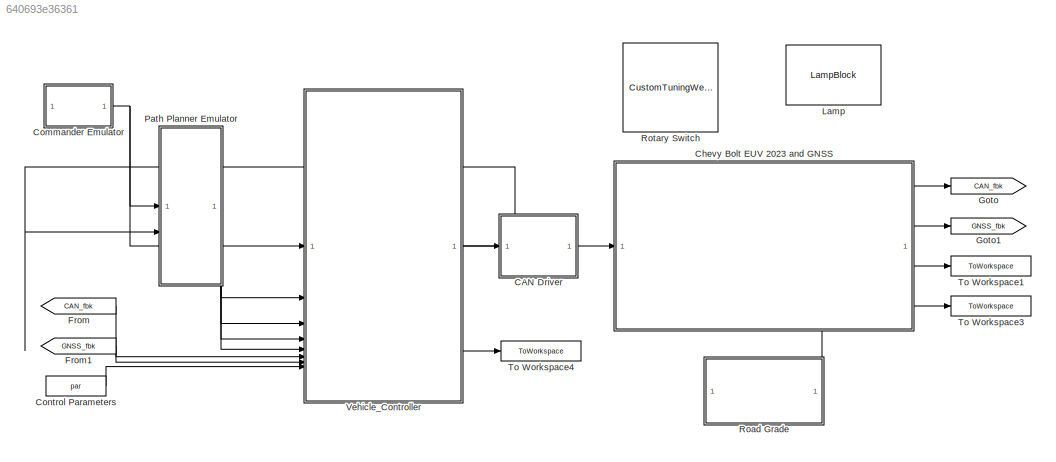
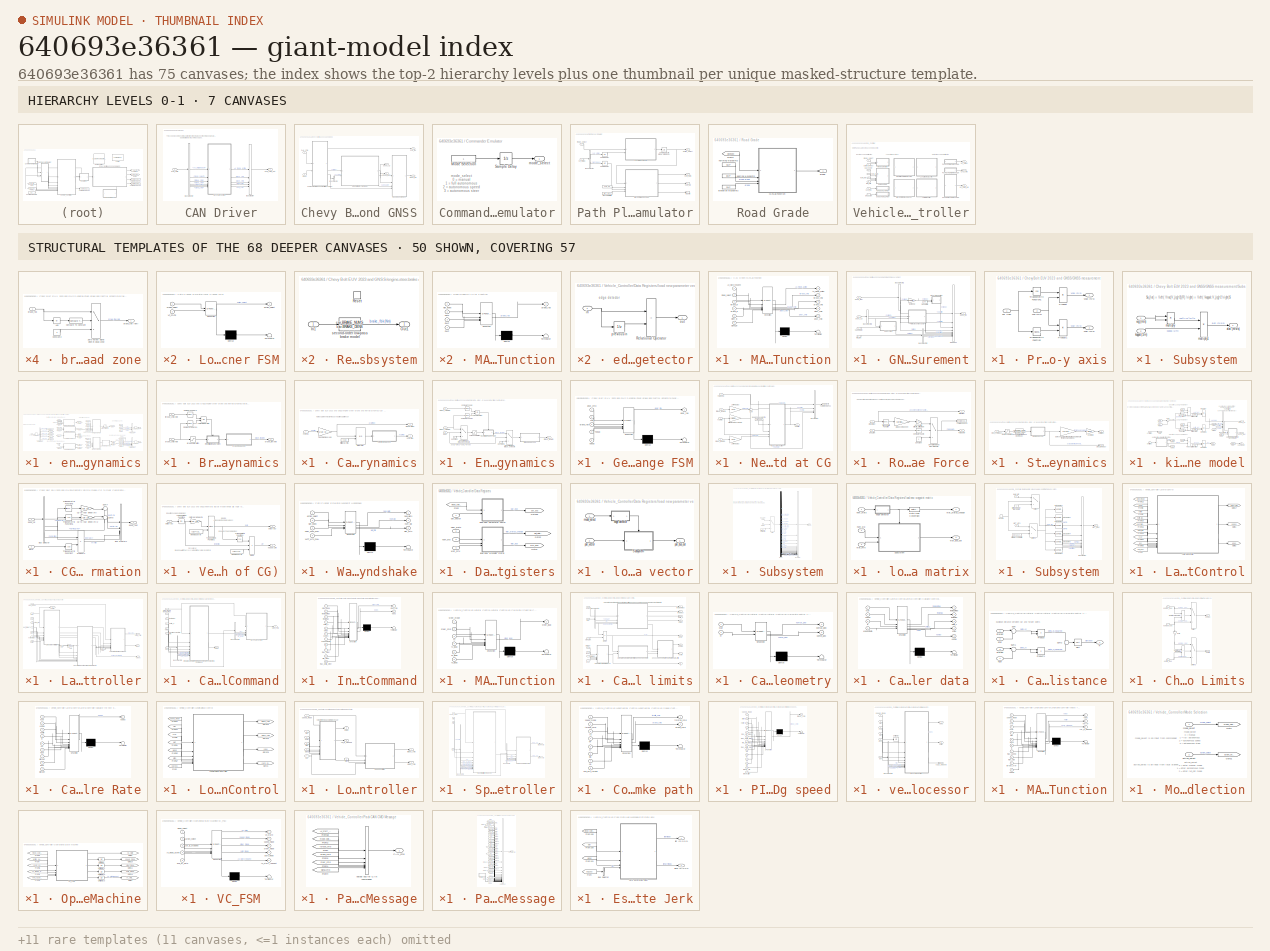
[diagram: thumbnail index - top-2 hierarchy levels (7 canvases) + 50 structural-template representatives of the remaining 68 canvases]
MODEL slx_640693e36361
KIND model
CONFIG AbsTol = auto
CONFIG EnableMultiTasking = off
CONFIG FixedStep = 1/100
CONFIG InitFcn = init_car\ninit_par
CONFIG MaxStep = ts
CONFIG MinStep = auto
CONFIG RelTol = 1e-3
CONFIG SampleTimeConstraint = Unconstrained
CONFIG SolverName = FixedStepDiscrete
CONFIG StartTime = 0.0
CONFIG StopTime = inf
BLOCK [SubSystem] CAN Driver
BLOCK [BusCreator] CAN Driver/Bus Creator
  DisplayOption = bar
  InheritFromInputs = on
  Inputs = 5
BLOCK [BusSelector] CAN Driver/Bus Selector
  OutputSignals = AV_start_request,mode_select,torque_cmd,brake_cmd,steer_cmd,signal_cmd
BLOCK [Inport] CAN Driver/CAN_cmd
BLOCK [Outport] CAN Driver/CAN_cmd_out
BLOCK [SubSystem] CAN Driver/MATLAB Function
  ErrorFcn = Stateflow.Translate.translate
  LibrarySourceBlock = simulink/User-Defined\nFunctions/MATLAB Function
  PermitHierarchicalResolution = ExplicitOnly
  SFBlockType = MATLAB Function
  TreatAsAtomicUnit = on
BLOCK [Demux] CAN Driver/MATLAB Function/ Demux 
  Outputs = 1
BLOCK [S-Function] CAN Driver/MATLAB Function/ SFunction 
  EnableBusSupport = on
  FunctionName = sf_sfun
  PortCounts = [6 6]
  SFcnIsStateOwnerBlock = off
  SFunctionDeploymentMode = off
  Tag = Stateflow S-Function 22
BLOCK [Terminator] CAN Driver/MATLAB Function/ Terminator 
BLOCK [Outport] CAN Driver/MATLAB Function/AV_mode_active
BLOCK [Inport] CAN Driver/MATLAB Function/AV_start_request
BLOCK [Outport] CAN Driver/MATLAB Function/brake_cmd
  Port = 3
BLOCK [Inport] CAN Driver/MATLAB Function/brake_in
  Port = 4
BLOCK [Outport] CAN Driver/MATLAB Function/gear_cmd
  Port = 5
BLOCK [Inport] CAN Driver/MATLAB Function/mode_select
  Port = 2
BLOCK [Inport] CAN Driver/MATLAB Function/signal_in
  Port = 6
BLOCK [Outport] CAN Driver/MATLAB Function/steer_cmd
  Port = 4
BLOCK [Inport] CAN Driver/MATLAB Function/steer_in
  Port = 5
BLOCK [Outport] CAN Driver/MATLAB Function/torque_cmd
  Port = 2
BLOCK [Inport] CAN Driver/MATLAB Function/torque_in
  Port = 3
BLOCK [SubSystem] Chevy Bolt EUV 2023 and GNSS
  NameLocation = top
  PortSchema = {"entries":[{"content":{"sides":[{"content":{"connectorIds":["In1"]},"type":"ConnectorPlacement.EquallySpacedRectSide","uuid":"214ac55f-e1ad-4aeb-894e-d0c732f6c7ee"},{"content":{"connectorIds":["Out1","Out2","Out3","Out4"],"side":"RIGHT"},"type":"ConnectorPlacement.EquallySpacedRectSide","uuid":"96b26d7b-3219-4372-aec8-5812d174b28b"},{"content":{"connectorIds":[],"side":"TOP"},"type":"ConnectorPla...<+410ch>
BLOCK [BusSelector] Chevy Bolt EUV 2023 and GNSS/Bus Selector
  OutputSignals = vcg (m/s)
BLOCK [Inport] Chevy Bolt EUV 2023 and GNSS/CAN_cmd
BLOCK [Outport] Chevy Bolt EUV 2023 and GNSS/CAN_fbk
  VectorParamsAs1DForOutWhenUnconnected = off
BLOCK [SubSystem] Chevy Bolt EUV 2023 and GNSS/GNSS measurement
BLOCK [BusSelector] Chevy Bolt EUV 2023 and GNSS/GNSS measurement/Bus Selector1
  OutputSignals = eastr (m),northr (m),psi (rad),vr (m/s)
BLOCK [BusSelector] Chevy Bolt EUV 2023 and GNSS/GNSS measurement/Bus Selector2
  OutputSignals = along (m/s/s),pitch (rad)
BLOCK [BusSelector] Chevy Bolt EUV 2023 and GNSS/GNSS measurement/Bus Selector3
  OutputSignals = psi (rad),vcg (m/s)
BLOCK [BusCreator] Chevy Bolt EUV 2023 and GNSS/GNSS measurement/GNSS bus
  DisplayOption = bar
  InheritFromInputs = on
  Inputs = 9
BLOCK [Outport] Chevy Bolt EUV 2023 and GNSS/GNSS measurement/GNSS_fbk
BLOCK [Inport] Chevy Bolt EUV 2023 and GNSS/GNSS measurement/IMU_fbk
  Port = 4
BLOCK [SubSystem] Chevy Bolt EUV 2023 and GNSS/GNSS measurement/MATLAB Function
  ErrorFcn = Stateflow.Translate.translate
  LibrarySourceBlock = simulink/User-Defined\nFunctions/MATLAB Function
  PermitHierarchicalResolution = ExplicitOnly
  SFBlockType = MATLAB Function
  TreatAsAtomicUnit = on
BLOCK [Demux] Chevy Bolt EUV 2023 and GNSS/GNSS measurement/MATLAB Function/ Demux 
  Outputs = 1
BLOCK [S-Function] Chevy Bolt EUV 2023 and GNSS/GNSS measurement/MATLAB Function/ SFunction 
  EnableBusSupport = on
  FunctionName = sf_sfun
  PortCounts = [2 2]
  SFcnIsStateOwnerBlock = off
  SFunctionDeploymentMode = off
  Tag = Stateflow S-Function 7
BLOCK [Terminator] Chevy Bolt EUV 2023 and GNSS/GNSS measurement/MATLAB Function/ Terminator 
BLOCK [Inport] Chevy Bolt EUV 2023 and GNSS/GNSS measurement/MATLAB Function/x
BLOCK [Inport] Chevy Bolt EUV 2023 and GNSS/GNSS measurement/MATLAB Function/y
  Port = 2
BLOCK [Outport] Chevy Bolt EUV 2023 and GNSS/GNSS measurement/MATLAB Function/z
BLOCK [SubSystem] Chevy Bolt EUV 2023 and GNSS/GNSS measurement/Project vc onto x-y axis
BLOCK [Product] Chevy Bolt EUV 2023 and GNSS/GNSS measurement/Project vc onto x-y axis/Product
  OutDataTypeStr = double
BLOCK [Product] Chevy Bolt EUV 2023 and GNSS/GNSS measurement/Project vc onto x-y axis/Product1
  OutDataTypeStr = double
BLOCK [Trigonometry] Chevy Bolt EUV 2023 and GNSS/GNSS measurement/Project vc onto x-y axis/Trigonometric Function
  OutputSignalType = real
BLOCK [Trigonometry] Chevy Bolt EUV 2023 and GNSS/GNSS measurement/Project vc onto x-y axis/Trigonometric Function1
  Operator = cos
  OutputSignalType = real
BLOCK [Inport] Chevy Bolt EUV 2023 and GNSS/GNSS measurement/Project vc onto x-y axis/psi (rad)
BLOCK [Inport] Chevy Bolt EUV 2023 and GNSS/GNSS measurement/Project vc onto x-y axis/vcg (m//s)
  Port = 2
BLOCK [Outport] Chevy Bolt EUV 2023 and GNSS/GNSS measurement/Project vc onto x-y axis/vcgx (m//s)
BLOCK [Outport] Chevy Bolt EUV 2023 and GNSS/GNSS measurement/Project vc onto x-y axis/vcgy (m//s)
  Port = 2
BLOCK [SubSystem] Chevy Bolt EUV 2023 and GNSS/GNSS measurement/Subsystem
BLOCK [Outport] Chevy Bolt EUV 2023 and GNSS/GNSS measurement/Subsystem/alat (m//s//s)
BLOCK [Inport] Chevy Bolt EUV 2023 and GNSS/GNSS measurement/Subsystem/kappa (1//m)
  Port = 2
BLOCK [Product] Chevy Bolt EUV 2023 and GNSS/GNSS measurement/Subsystem/multiply
BLOCK [Product] Chevy Bolt EUV 2023 and GNSS/GNSS measurement/Subsystem/multiply1
BLOCK [Inport] Chevy Bolt EUV 2023 and GNSS/GNSS measurement/Subsystem/vcg (m//s)
BLOCK [Inport] Chevy Bolt EUV 2023 and GNSS/GNSS measurement/kappa (1//m)
  Port = 3
BLOCK [Constant] Chevy Bolt EUV 2023 and GNSS/GNSS measurement/modulo limit
  Value = 360
BLOCK [Inport] Chevy Bolt EUV 2023 and GNSS/GNSS measurement/pose_cg
BLOCK [Inport] Chevy Bolt EUV 2023 and GNSS/GNSS measurement/pose_rear
  Port = 2
BLOCK [Gain] Chevy Bolt EUV 2023 and GNSS/GNSS measurement/rad-to-deg
  Gain = 180/pi
BLOCK [Outport] Chevy Bolt EUV 2023 and GNSS/GNSS_fbk
  Port = 2
  VectorParamsAs1DForOutWhenUnconnected = off
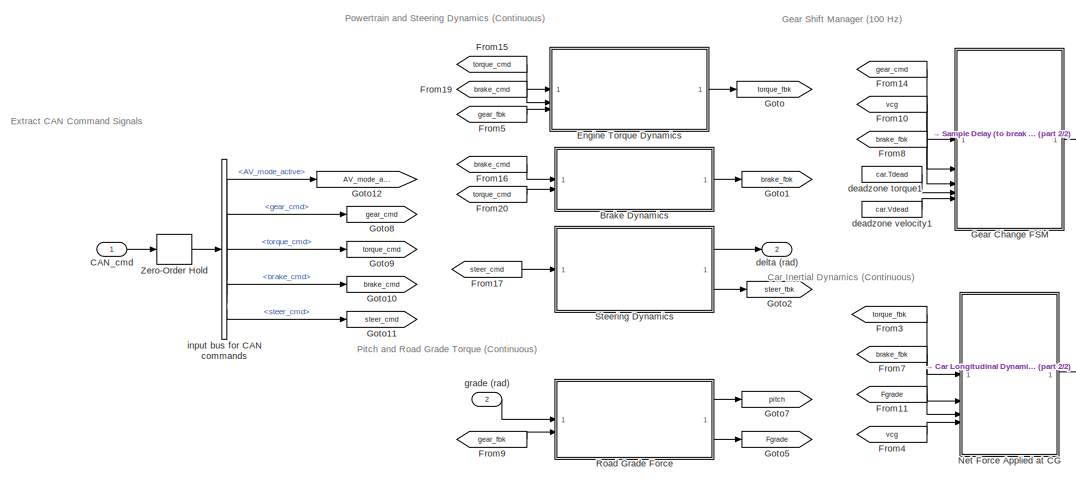
[diagram: Chevy Bolt EUV 2023 and GNSS/engine-steer-brake and inertial dynamics - part 1/2, left side, full height]
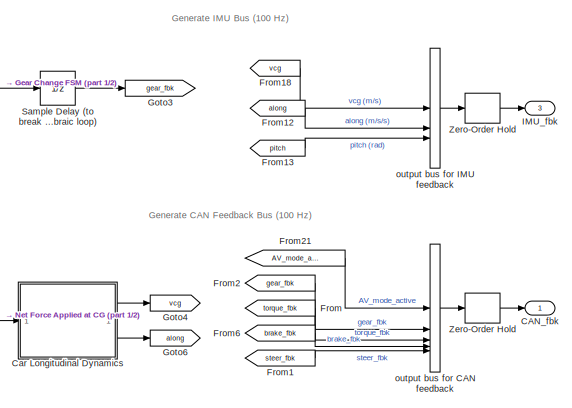
[diagram: Chevy Bolt EUV 2023 and GNSS/engine-steer-brake and inertial dynamics - part 2/2, right side, full height]
BLOCK [SubSystem] Chevy Bolt EUV 2023 and GNSS/engine-steer-brake and inertial dynamics
BLOCK [SubSystem] Chevy Bolt EUV 2023 and GNSS/engine-steer-brake and inertial dynamics/Brake Dynamics
BLOCK [Saturate] Chevy Bolt EUV 2023 and GNSS/engine-steer-brake and inertial dynamics/Brake Dynamics/Brake Saturation
  LowerLimit = car.MIN_BRAKE
  OutDataTypeStr = double
  UpperLimit = car.MAX_BRAKE
BLOCK [Reference] Chevy Bolt EUV 2023 and GNSS/engine-steer-brake and inertial dynamics/Brake Dynamics/Compare To Zero  REF=simulink/Logic and Bit
Operations/Compare
To Zero
  SourceBlock = simulink/Logic and Bit\nOperations/Compare\nTo Zero
  SourceType = Compare To Zero
BLOCK [Reference] Chevy Bolt EUV 2023 and GNSS/engine-steer-brake and inertial dynamics/Brake Dynamics/Compare To Zero1  REF=simulink/Logic and Bit
Operations/Compare
To Zero
  SourceBlock = simulink/Logic and Bit\nOperations/Compare\nTo Zero
  SourceType = Compare To Zero
BLOCK [Logic] Chevy Bolt EUV 2023 and GNSS/engine-steer-brake and inertial dynamics/Brake Dynamics/Logical Operator
  AllPortsSameDT = off
  Operator = OR
  OutDataTypeStr = boolean
BLOCK [SubSystem] Chevy Bolt EUV 2023 and GNSS/engine-steer-brake and inertial dynamics/Brake Dynamics/Resettable Subsystem
  TreatAsAtomicUnit = on
BLOCK [Inport] Chevy Bolt EUV 2023 and GNSS/engine-steer-brake and inertial dynamics/Brake Dynamics/Resettable Subsystem/In1
BLOCK [Outport] Chevy Bolt EUV 2023 and GNSS/engine-steer-brake and inertial dynamics/Brake Dynamics/Resettable Subsystem/Out1
BLOCK [ResetPort] Chevy Bolt EUV 2023 and GNSS/engine-steer-brake and inertial dynamics/Brake Dynamics/Resettable Subsystem/Reset
  DisableCoverage = on
BLOCK [TransferFcn] Chevy Bolt EUV 2023 and GNSS/engine-steer-brake and inertial dynamics/Brake Dynamics/Resettable Subsystem/second-order low-pass brake model
  Denominator = car.BRAKE_DENS
  Numerator = car.BRAKE_NUMS
BLOCK [SubSystem] Chevy Bolt EUV 2023 and GNSS/engine-steer-brake and inertial dynamics/Brake Dynamics/brake dead zone
BLOCK [Abs] Chevy Bolt EUV 2023 and GNSS/engine-steer-brake and inertial dynamics/Brake Dynamics/brake dead zone/Abs
  SaturateOnIntegerOverflow = off
BLOCK [Reference] Chevy Bolt EUV 2023 and GNSS/engine-steer-brake and inertial dynamics/Brake Dynamics/brake dead zone/Compare To Constant  REF=simulink/Logic and Bit
Operations/Compare
To Constant
  SourceBlock = simulink/Logic and Bit\nOperations/Compare\nTo Constant
  SourceType = Compare To Constant
BLOCK [Constant] Chevy Bolt EUV 2023 and GNSS/engine-steer-brake and inertial dynamics/Brake Dynamics/brake dead zone/Constant2
  Value = 0
BLOCK [Switch] Chevy Bolt EUV 2023 and GNSS/engine-steer-brake and inertial dynamics/Brake Dynamics/brake dead zone/Zero output signal when in dead zone
  Criteria = u2 > Threshold
  InputSameDT = off
  SaturateOnIntegerOverflow = off
BLOCK [Inport] Chevy Bolt EUV 2023 and GNSS/engine-steer-brake and inertial dynamics/Brake Dynamics/brake dead zone/brake_fbk
BLOCK [Outport] Chevy Bolt EUV 2023 and GNSS/engine-steer-brake and inertial dynamics/Brake Dynamics/brake dead zone/brake_fbk (Nm)
BLOCK [Inport] Chevy Bolt EUV 2023 and GNSS/engine-steer-brake and inertial dynamics/Brake Dynamics/brake_cmd (Nm)
BLOCK [Outport] Chevy Bolt EUV 2023 and GNSS/engine-steer-brake and inertial dynamics/Brake Dynamics/brake_fbk (Nm)
BLOCK [Inport] Chevy Bolt EUV 2023 and GNSS/engine-steer-brake and inertial dynamics/Brake Dynamics/torque_cmd (Nm)
  Port = 2
BLOCK [Inport] Chevy Bolt EUV 2023 and GNSS/engine-steer-brake and inertial dynamics/CAN_cmd
BLOCK [Outport] Chevy Bolt EUV 2023 and GNSS/engine-steer-brake and inertial dynamics/CAN_fbk
  VectorParamsAs1DForOutWhenUnconnected = off
BLOCK [SubSystem] Chevy Bolt EUV 2023 and GNSS/engine-steer-brake and inertial dynamics/Car Longitudinal Dynamics
BLOCK [Gain] Chevy Bolt EUV 2023 and GNSS/engine-steer-brake and inertial dynamics/Car Longitudinal Dynamics/1// vehicle mass (kg)
  Gain = 1/car.MCAR
  OutDataTypeStr = double
BLOCK [Inport] Chevy Bolt EUV 2023 and GNSS/engine-steer-brake and inertial dynamics/Car Longitudinal Dynamics/Fnet (N)
BLOCK [Integrator] Chevy Bolt EUV 2023 and GNSS/engine-steer-brake and inertial dynamics/Car Longitudinal Dynamics/Integrator
  InitialConditionSource = external
BLOCK [Outport] Chevy Bolt EUV 2023 and GNSS/engine-steer-brake and inertial dynamics/Car Longitudinal Dynamics/along  (m//s//s)
  Port = 2
BLOCK [Constant] Chevy Bolt EUV 2023 and GNSS/engine-steer-brake and inertial dynamics/Car Longitudinal Dynamics/initial vcg (m//s)
  Value = vcg0
BLOCK [Outport] Chevy Bolt EUV 2023 and GNSS/engine-steer-brake and inertial dynamics/Car Longitudinal Dynamics/vcg (m//s)
BLOCK [SubSystem] Chevy Bolt EUV 2023 and GNSS/engine-steer-brake and inertial dynamics/Car Longitudinal Dynamics/velocity dead zone
BLOCK [Abs] Chevy Bolt EUV 2023 and GNSS/engine-steer-brake and inertial dynamics/Car Longitudinal Dynamics/velocity dead zone/Abs
  SaturateOnIntegerOverflow = off
BLOCK [Reference] Chevy Bolt EUV 2023 and GNSS/engine-steer-brake and inertial dynamics/Car Longitudinal Dynamics/velocity dead zone/Compare To Constant  REF=simulink/Logic and Bit
Operations/Compare
To Constant
  SourceBlock = simulink/Logic and Bit\nOperations/Compare\nTo Constant
  SourceType = Compare To Constant
BLOCK [Constant] Chevy Bolt EUV 2023 and GNSS/engine-steer-brake and inertial dynamics/Car Longitudinal Dynamics/velocity dead zone/Constant2
  Value = 0
BLOCK [Switch] Chevy Bolt EUV 2023 and GNSS/engine-steer-brake and inertial dynamics/Car Longitudinal Dynamics/velocity dead zone/Zero output signal when in dead zone
  Criteria = u2 > Threshold
  InputSameDT = off
  SaturateOnIntegerOverflow = off
BLOCK [Inport] Chevy Bolt EUV 2023 and GNSS/engine-steer-brake and inertial dynamics/Car Longitudinal Dynamics/velocity dead zone/vcg
BLOCK [Outport] Chevy Bolt EUV 2023 and GNSS/engine-steer-brake and inertial dynamics/Car Longitudinal Dynamics/velocity dead zone/vcg (m//s)
BLOCK [SubSystem] Chevy Bolt EUV 2023 and GNSS/engine-steer-brake and inertial dynamics/Engine Torque Dynamics
BLOCK [Reference] Chevy Bolt EUV 2023 and GNSS/engine-steer-brake and inertial dynamics/Engine Torque Dynamics/Compare To Zero  REF=simulink/Logic and Bit
Operations/Compare
To Zero
  SourceBlock = simulink/Logic and Bit\nOperations/Compare\nTo Zero
  SourceType = Compare To Zero
BLOCK [Reference] Chevy Bolt EUV 2023 and GNSS/engine-steer-brake and inertial dynamics/Engine Torque Dynamics/Compare To Zero1  REF=simulink/Logic and Bit
Operations/Compare
To Zero
  SourceBlock = simulink/Logic and Bit\nOperations/Compare\nTo Zero
  SourceType = Compare To Zero
BLOCK [Constant] Chevy Bolt EUV 2023 and GNSS/engine-steer-brake and inertial dynamics/Engine Torque Dynamics/Constant
  Value = 0
BLOCK [Constant] Chevy Bolt EUV 2023 and GNSS/engine-steer-brake and inertial dynamics/Engine Torque Dynamics/Constant1
  Value = 0
BLOCK [Logic] Chevy Bolt EUV 2023 and GNSS/engine-steer-brake and inertial dynamics/Engine Torque Dynamics/Logical Operator
  AllPortsSameDT = off
  Operator = OR
  OutDataTypeStr = boolean
BLOCK [SubSystem] Chevy Bolt EUV 2023 and GNSS/engine-steer-brake and inertial dynamics/Engine Torque Dynamics/Resettable Subsystem
  TreatAsAtomicUnit = on
BLOCK [Inport] Chevy Bolt EUV 2023 and GNSS/engine-steer-brake and inertial dynamics/Engine Torque Dynamics/Resettable Subsystem/In1
BLOCK [Outport] Chevy Bolt EUV 2023 and GNSS/engine-steer-brake and inertial dynamics/Engine Torque Dynamics/Resettable Subsystem/Out1
BLOCK [ResetPort] Chevy Bolt EUV 2023 and GNSS/engine-steer-brake and inertial dynamics/Engine Torque Dynamics/Resettable Subsystem/Reset
  DisableCoverage = on
BLOCK [TransferFcn] Chevy Bolt EUV 2023 and GNSS/engine-steer-brake and inertial dynamics/Engine Torque Dynamics/Resettable Subsystem/second-order low-pass torque model
  Denominator = car.TORQUE_DENS
  Numerator = car.TORQUE_NUMS
BLOCK [Saturate] Chevy Bolt EUV 2023 and GNSS/engine-steer-brake and inertial dynamics/Engine Torque Dynamics/Torque Saturation
  LowerLimit = car.MIN_TORQUE
  OutDataTypeStr = double
  UpperLimit = car.MAX_TORQUE
BLOCK [Inport] Chevy Bolt EUV 2023 and GNSS/engine-steer-brake and inertial dynamics/Engine Torque Dynamics/brake_cmd (Nm)
  Port = 2
BLOCK [Switch] Chevy Bolt EUV 2023 and GNSS/engine-steer-brake and inertial dynamics/Engine Torque Dynamics/do not allow any torque when in park
  Criteria = u2 ~= 0
  InputSameDT = off
  NameLocation = top
  SaturateOnIntegerOverflow = off
BLOCK [Switch] Chevy Bolt EUV 2023 and GNSS/engine-steer-brake and inertial dynamics/Engine Torque Dynamics/do not allow any torque when in park 
  Criteria = u2 ~= 0
  InputSameDT = off
  SaturateOnIntegerOverflow = off
BLOCK [Inport] Chevy Bolt EUV 2023 and GNSS/engine-steer-brake and inertial dynamics/Engine Torque Dynamics/gear
  Port = 3
BLOCK [SubSystem] Chevy Bolt EUV 2023 and GNSS/engine-steer-brake and inertial dynamics/Engine Torque Dynamics/torque dead zone
BLOCK [Abs] Chevy Bolt EUV 2023 and GNSS/engine-steer-brake and inertial dynamics/Engine Torque Dynamics/torque dead zone/Abs
  SaturateOnIntegerOverflow = off
BLOCK [Reference] Chevy Bolt EUV 2023 and GNSS/engine-steer-brake and inertial dynamics/Engine Torque Dynamics/torque dead zone/Compare To Constant  REF=simulink/Logic and Bit
Operations/Compare
To Constant
  SourceBlock = simulink/Logic and Bit\nOperations/Compare\nTo Constant
  SourceType = Compare To Constant
BLOCK [Constant] Chevy Bolt EUV 2023 and GNSS/engine-steer-brake and inertial dynamics/Engine Torque Dynamics/torque dead zone/Constant2
  Value = 0
BLOCK [Switch] Chevy Bolt EUV 2023 and GNSS/engine-steer-brake and inertial dynamics/Engine Torque Dynamics/torque dead zone/Zero output signal when in dead zone
  Criteria = u2 > Threshold
  InputSameDT = off
  SaturateOnIntegerOverflow = off
BLOCK [Inport] Chevy Bolt EUV 2023 and GNSS/engine-steer-brake and inertial dynamics/Engine Torque Dynamics/torque dead zone/torque_fbk
BLOCK [Outport] Chevy Bolt EUV 2023 and GNSS/engine-steer-brake and inertial dynamics/Engine Torque Dynamics/torque dead zone/torque_fbk (Nm)
BLOCK [Inport] Chevy Bolt EUV 2023 and GNSS/engine-steer-brake and inertial dynamics/Engine Torque Dynamics/torque_cmd (Nm)
BLOCK [Outport] Chevy Bolt EUV 2023 and GNSS/engine-steer-brake and inertial dynamics/Engine Torque Dynamics/torque_fbk (Nm)
BLOCK [From] Chevy Bolt EUV 2023 and GNSS/engine-steer-brake and inertial dynamics/From
  GotoTag = torque_fbk
BLOCK [From] Chevy Bolt EUV 2023 and GNSS/engine-steer-brake and inertial dynamics/From1
  GotoTag = steer_fbk
BLOCK [From] Chevy Bolt EUV 2023 and GNSS/engine-steer-brake and inertial dynamics/From10
  GotoTag = vcg
BLOCK [From] Chevy Bolt EUV 2023 and GNSS/engine-steer-brake and inertial dynamics/From11
  GotoTag = Fgrade
BLOCK [From] Chevy Bolt EUV 2023 and GNSS/engine-steer-brake and inertial dynamics/From12
  GotoTag = along
BLOCK [From] Chevy Bolt EUV 2023 and GNSS/engine-steer-brake and inertial dynamics/From13
  GotoTag = pitch
BLOCK [From] Chevy Bolt EUV 2023 and GNSS/engine-steer-brake and inertial dynamics/From14
  GotoTag = gear_cmd
BLOCK [From] Chevy Bolt EUV 2023 and GNSS/engine-steer-brake and inertial dynamics/From15
  GotoTag = torque_cmd
BLOCK [From] Chevy Bolt EUV 2023 and GNSS/engine-steer-brake and inertial dynamics/From16
  GotoTag = brake_cmd
BLOCK [From] Chevy Bolt EUV 2023 and GNSS/engine-steer-brake and inertial dynamics/From17
  GotoTag = steer_cmd
BLOCK [From] Chevy Bolt EUV 2023 and GNSS/engine-steer-brake and inertial dynamics/From18
  GotoTag = vcg
BLOCK [From] Chevy Bolt EUV 2023 and GNSS/engine-steer-brake and inertial dynamics/From19
  GotoTag = brake_cmd
BLOCK [From] Chevy Bolt EUV 2023 and GNSS/engine-steer-brake and inertial dynamics/From2
  GotoTag = gear_fbk
BLOCK [From] Chevy Bolt EUV 2023 and GNSS/engine-steer-brake and inertial dynamics/From20
  GotoTag = torque_cmd
BLOCK [From] Chevy Bolt EUV 2023 and GNSS/engine-steer-brake and inertial dynamics/From21
  GotoTag = AV_mode_active
BLOCK [From] Chevy Bolt EUV 2023 and GNSS/engine-steer-brake and inertial dynamics/From3
  GotoTag = torque_fbk
BLOCK [From] Chevy Bolt EUV 2023 and GNSS/engine-steer-brake and inertial dynamics/From4
  GotoTag = vcg
BLOCK [From] Chevy Bolt EUV 2023 and GNSS/engine-steer-brake and inertial dynamics/From5
  GotoTag = gear_fbk
BLOCK [From] Chevy Bolt EUV 2023 and GNSS/engine-steer-brake and inertial dynamics/From6
  GotoTag = brake_fbk
BLOCK [From] Chevy Bolt EUV 2023 and GNSS/engine-steer-brake and inertial dynamics/From7
  GotoTag = brake_fbk
BLOCK [From] Chevy Bolt EUV 2023 and GNSS/engine-steer-brake and inertial dynamics/From8
  GotoTag = brake_fbk
BLOCK [From] Chevy Bolt EUV 2023 and GNSS/engine-steer-brake and inertial dynamics/From9
  GotoTag = gear_fbk
BLOCK [SubSystem] Chevy Bolt EUV 2023 and GNSS/engine-steer-brake and inertial dynamics/Gear Change FSM
  ErrorFcn = Stateflow.Translate.translate
  PermitHierarchicalResolution = ExplicitOnly
  SFBlockType = Chart
  SystemSampleTime = ts
  TreatAsAtomicUnit = on
BLOCK [Demux] Chevy Bolt EUV 2023 and GNSS/engine-steer-brake and inertial dynamics/Gear Change FSM/ Demux 
  Outputs = 1
BLOCK [S-Function] Chevy Bolt EUV 2023 and GNSS/engine-steer-brake and inertial dynamics/Gear Change FSM/ SFunction 
  EnableBusSupport = on
  FunctionName = sf_sfun
  PortCounts = [5 2]
  SFcnIsStateOwnerBlock = off
  SFunctionDeploymentMode = off
  Tag = Stateflow S-Function 3
BLOCK [Terminator] Chevy Bolt EUV 2023 and GNSS/engine-steer-brake and inertial dynamics/Gear Change FSM/ Terminator 
BLOCK [Inport] Chevy Bolt EUV 2023 and GNSS/engine-steer-brake and inertial dynamics/Gear Change FSM/Tdead
  Port = 4
BLOCK [Inport] Chevy Bolt EUV 2023 and GNSS/engine-steer-brake and inertial dynamics/Gear Change FSM/Vdead
  Port = 5
BLOCK [Inport] Chevy Bolt EUV 2023 and GNSS/engine-steer-brake and inertial dynamics/Gear Change FSM/brake_fbk
  Port = 3
BLOCK [Inport] Chevy Bolt EUV 2023 and GNSS/engine-steer-brake and inertial dynamics/Gear Change FSM/gear_cmd
BLOCK [Outport] Chevy Bolt EUV 2023 and GNSS/engine-steer-brake and inertial dynamics/Gear Change FSM/gear_fbk
BLOCK [Inport] Chevy Bolt EUV 2023 and GNSS/engine-steer-brake and inertial dynamics/Gear Change FSM/vcg
  Port = 2
BLOCK [Goto] Chevy Bolt EUV 2023 and GNSS/engine-steer-brake and inertial dynamics/Goto
  GotoTag = torque_fbk
  NameLocation = top
BLOCK [Goto] Chevy Bolt EUV 2023 and GNSS/engine-steer-brake and inertial dynamics/Goto1
  GotoTag = brake_fbk
  NameLocation = top
BLOCK [Goto] Chevy Bolt EUV 2023 and GNSS/engine-steer-brake and inertial dynamics/Goto10
  GotoTag = brake_cmd
BLOCK [Goto] Chevy Bolt EUV 2023 and GNSS/engine-steer-brake and inertial dynamics/Goto11
  GotoTag = steer_cmd
BLOCK [Goto] Chevy Bolt EUV 2023 and GNSS/engine-steer-brake and inertial dynamics/Goto12
  GotoTag = AV_mode_active
BLOCK [Goto] Chevy Bolt EUV 2023 and GNSS/engine-steer-brake and inertial dynamics/Goto2
  GotoTag = steer_fbk
BLOCK [Goto] Chevy Bolt EUV 2023 and GNSS/engine-steer-brake and inertial dynamics/Goto3
  GotoTag = gear_fbk
BLOCK [Goto] Chevy Bolt EUV 2023 and GNSS/engine-steer-brake and inertial dynamics/Goto4
  GotoTag = vcg
BLOCK [Goto] Chevy Bolt EUV 2023 and GNSS/engine-steer-brake and inertial dynamics/Goto5
  GotoTag = Fgrade
BLOCK [Goto] Chevy Bolt EUV 2023 and GNSS/engine-steer-brake and inertial dynamics/Goto6
  GotoTag = along
  NameLocation = top
BLOCK [Goto] Chevy Bolt EUV 2023 and GNSS/engine-steer-brake and inertial dynamics/Goto7
  GotoTag = pitch
BLOCK [Goto] Chevy Bolt EUV 2023 and GNSS/engine-steer-brake and inertial dynamics/Goto8
  GotoTag = gear_cmd
BLOCK [Goto] Chevy Bolt EUV 2023 and GNSS/engine-steer-brake and inertial dynamics/Goto9
  GotoTag = torque_cmd
BLOCK [Outport] Chevy Bolt EUV 2023 and GNSS/engine-steer-brake and inertial dynamics/IMU_fbk
  Port = 3
  VectorParamsAs1DForOutWhenUnconnected = off
BLOCK [SubSystem] Chevy Bolt EUV 2023 and GNSS/engine-steer-brake and inertial dynamics/Net Force Applied at CG
BLOCK [Gain] Chevy Bolt EUV 2023 and GNSS/engine-steer-brake and inertial dynamics/Net Force Applied at CG/1 // Tire Radius
  Gain = 1 / car.Rtire
BLOCK [Gain] Chevy Bolt EUV 2023 and GNSS/engine-steer-brake and inertial dynamics/Net Force Applied at CG/1 // Tire Radius 
  Gain = 1 / car.Rtire
BLOCK [BusCreator] Chevy Bolt EUV 2023 and GNSS/engine-steer-brake and inertial dynamics/Net Force Applied at CG/Bus Creator
  DisplayOption = bar
  InheritFromInputs = on
  Inputs = 4
BLOCK [Inport] Chevy Bolt EUV 2023 and GNSS/engine-steer-brake and inertial dynamics/Net Force Applied at CG/Fgrade (N)
  Port = 3
BLOCK [Outport] Chevy Bolt EUV 2023 and GNSS/engine-steer-brake and inertial dynamics/Net Force Applied at CG/Fnet (N)
BLOCK [SubSystem] Chevy Bolt EUV 2023 and GNSS/engine-steer-brake and inertial dynamics/Net Force Applied at CG/MATLAB Function
  ErrorFcn = Stateflow.Translate.translate
  LibrarySourceBlock = simulink/User-Defined\nFunctions/MATLAB Function
  PermitHierarchicalResolution = ExplicitOnly
  SFBlockType = MATLAB Function
  TreatAsAtomicUnit = on
BLOCK [Demux] Chevy Bolt EUV 2023 and GNSS/engine-steer-brake and inertial dynamics/Net Force Applied at CG/MATLAB Function/ Demux 
  Outputs = 1
BLOCK [S-Function] Chevy Bolt EUV 2023 and GNSS/engine-steer-brake and inertial dynamics/Net Force Applied at CG/MATLAB Function/ SFunction 
  EnableBusSupport = on
  FunctionName = sf_sfun
  PortCounts = [4 2]
  SFcnIsStateOwnerBlock = off
  SFunctionDeploymentMode = off
  Tag = Stateflow S-Function 1
BLOCK [Terminator] Chevy Bolt EUV 2023 and GNSS/engine-steer-brake and inertial dynamics/Net Force Applied at CG/MATLAB Function/ Terminator 
BLOCK [Inport] Chevy Bolt EUV 2023 and GNSS/engine-steer-brake and inertial dynamics/Net Force Applied at CG/MATLAB Function/Fbrake
  Port = 4
BLOCK [Outport] Chevy Bolt EUV 2023 and GNSS/engine-steer-brake and inertial dynamics/Net Force Applied at CG/MATLAB Function/Fnet
BLOCK [Inport] Chevy Bolt EUV 2023 and GNSS/engine-steer-brake and inertial dynamics/Net Force Applied at CG/MATLAB Function/Fsum
BLOCK [Inport] Chevy Bolt EUV 2023 and GNSS/engine-steer-brake and inertial dynamics/Net Force Applied at CG/MATLAB Function/Vdead
  Port = 2
BLOCK [Inport] Chevy Bolt EUV 2023 and GNSS/engine-steer-brake and inertial dynamics/Net Force Applied at CG/MATLAB Function/vcg
  Port = 3
BLOCK [Sum] Chevy Bolt EUV 2023 and GNSS/engine-steer-brake and inertial dynamics/Net Force Applied at CG/Sum
  Inputs = ++-
BLOCK [ToWorkspace] Chevy Bolt EUV 2023 and GNSS/engine-steer-brake and inertial dynamics/Net Force Applied at CG/To Workspace2
  FixptAsFi = on
  MaxDataPoints = inf
  SampleTime = ts
  VariableName = forces
BLOCK [Inport] Chevy Bolt EUV 2023 and GNSS/engine-steer-brake and inertial dynamics/Net Force Applied at CG/brake_fbk (Nm)
  Port = 2
BLOCK [Constant] Chevy Bolt EUV 2023 and GNSS/engine-steer-brake and inertial dynamics/Net Force Applied at CG/deadzone velocity1
  SampleTime = ts
  Value = car.Vdead
BLOCK [Gain] Chevy Bolt EUV 2023 and GNSS/engine-steer-brake and inertial dynamics/Net Force Applied at CG/rolling resistance (Ns//m)
  Gain = car.RRdamp
BLOCK [Inport] Chevy Bolt EUV 2023 and GNSS/engine-steer-brake and inertial dynamics/Net Force Applied at CG/torque_fbk (Nm)
BLOCK [Inport] Chevy Bolt EUV 2023 and GNSS/engine-steer-brake and inertial dynamics/Net Force Applied at CG/vcg (m//s)
  Port = 4
BLOCK [SubSystem] Chevy Bolt EUV 2023 and GNSS/engine-steer-brake and inertial dynamics/Road Grade Force
BLOCK [Reference] Chevy Bolt EUV 2023 and GNSS/engine-steer-brake and inertial dynamics/Road Grade Force/Compare To Zero  REF=simulink/Logic and Bit
Operations/Compare
To Zero
  SourceBlock = simulink/Logic and Bit\nOperations/Compare\nTo Zero
  SourceType = Compare To Zero
BLOCK [Constant] Chevy Bolt EUV 2023 and GNSS/engine-steer-brake and inertial dynamics/Road Grade Force/Constant
  Value = 0
BLOCK [Switch] Chevy Bolt EUV 2023 and GNSS/engine-steer-brake and inertial dynamics/Road Grade Force/Do not allow grade force when car is in Park
  Criteria = u2 > Threshold
  InputSameDT = off
  SaturateOnIntegerOverflow = off
BLOCK [Outport] Chevy Bolt EUV 2023 and GNSS/engine-steer-brake and inertial dynamics/Road Grade Force/Fgrade (N)
  Port = 2
BLOCK [ToWorkspace] Chevy Bolt EUV 2023 and GNSS/engine-steer-brake and inertial dynamics/Road Grade Force/To Workspace2
  FixptAsFi = on
  MaxDataPoints = inf
  SampleTime = ts
  VariableName = Fgrade
BLOCK [Trigonometry] Chevy Bolt EUV 2023 and GNSS/engine-steer-brake and inertial dynamics/Road Grade Force/Trigonometric Function
BLOCK [Gain] Chevy Bolt EUV 2023 and GNSS/engine-steer-brake and inertial dynamics/Road Grade Force/account for direction of force with grade
  Gain = -1
  NameLocation = top
BLOCK [Inport] Chevy Bolt EUV 2023 and GNSS/engine-steer-brake and inertial dynamics/Road Grade Force/gear_fbk
  Port = 2
BLOCK [Inport] Chevy Bolt EUV 2023 and GNSS/engine-steer-brake and inertial dynamics/Road Grade Force/grade (rad)
BLOCK [Gain] Chevy Bolt EUV 2023 and GNSS/engine-steer-brake and inertial dynamics/Road Grade Force/grade component
  Gain = car.MCAR * g
  OutDataTypeStr = double
BLOCK [Outport] Chevy Bolt EUV 2023 and GNSS/engine-steer-brake and inertial dynamics/Road Grade Force/pitch (rad)
BLOCK [UnitDelay] Chevy Bolt EUV 2023 and GNSS/engine-steer-brake and inertial dynamics/Sample Delay (to break algebraic loop)
  HasFrameUpgradeWarning = on
  SampleTime = ts
BLOCK [SubSystem] Chevy Bolt EUV 2023 and GNSS/engine-steer-brake and inertial dynamics/Steering Dynamics
BLOCK [Gain] Chevy Bolt EUV 2023 and GNSS/engine-steer-brake and inertial dynamics/Steering Dynamics/Gain conversion from steering angle (deg) to front wheel angle (deg)
  Gain = car.STEER_RATIO
BLOCK [Saturate] Chevy Bolt EUV 2023 and GNSS/engine-steer-brake and inertial dynamics/Steering Dynamics/Steering Saturation
  LowerLimit = car.MIN_STEER
  OutDataTypeStr = double
  UpperLimit = car.MAX_STEER
BLOCK [Gain] Chevy Bolt EUV 2023 and GNSS/engine-steer-brake and inertial dynamics/Steering Dynamics/deg-to-rad
  Gain = pi/180
BLOCK [Outport] Chevy Bolt EUV 2023 and GNSS/engine-steer-brake and inertial dynamics/Steering Dynamics/delta (rad)
BLOCK [TransferFcn] Chevy Bolt EUV 2023 and GNSS/engine-steer-brake and inertial dynamics/Steering Dynamics/second-order low-pass steer model
  Denominator = car.STEER_DENS
  Numerator = car.STEER_NUMS
BLOCK [SubSystem] Chevy Bolt EUV 2023 and GNSS/engine-steer-brake and inertial dynamics/Steering Dynamics/steer dead zone
BLOCK [Abs] Chevy Bolt EUV 2023 and GNSS/engine-steer-brake and inertial dynamics/Steering Dynamics/steer dead zone/Abs
  SaturateOnIntegerOverflow = off
BLOCK [Reference] Chevy Bolt EUV 2023 and GNSS/engine-steer-brake and inertial dynamics/Steering Dynamics/steer dead zone/Compare To Constant  REF=simulink/Logic and Bit
Operations/Compare
To Constant
  SourceBlock = simulink/Logic and Bit\nOperations/Compare\nTo Constant
  SourceType = Compare To Constant
BLOCK [Constant] Chevy Bolt EUV 2023 and GNSS/engine-steer-brake and inertial dynamics/Steering Dynamics/steer dead zone/Constant2
  Value = 0
BLOCK [Switch] Chevy Bolt EUV 2023 and GNSS/engine-steer-brake and inertial dynamics/Steering Dynamics/steer dead zone/Zero output signal when in dead zone
  Criteria = u2 > Threshold
  InputSameDT = off
  SaturateOnIntegerOverflow = off
BLOCK [Inport] Chevy Bolt EUV 2023 and GNSS/engine-steer-brake and inertial dynamics/Steering Dynamics/steer dead zone/steer
BLOCK [Outport] Chevy Bolt EUV 2023 and GNSS/engine-steer-brake and inertial dynamics/Steering Dynamics/steer dead zone/steer (deg)
BLOCK [Inport] Chevy Bolt EUV 2023 and GNSS/engine-steer-brake and inertial dynamics/Steering Dynamics/steer_cmd (deg)
BLOCK [Outport] Chevy Bolt EUV 2023 and GNSS/engine-steer-brake and inertial dynamics/Steering Dynamics/steer_fbk (deg)
  Port = 2
BLOCK [ZeroOrderHold] Chevy Bolt EUV 2023 and GNSS/engine-steer-brake and inertial dynamics/Zero-Order Hold
  SampleTime = ts
BLOCK [ZeroOrderHold] Chevy Bolt EUV 2023 and GNSS/engine-steer-brake and inertial dynamics/Zero-Order Hold 
  SampleTime = ts
BLOCK [ZeroOrderHold] Chevy Bolt EUV 2023 and GNSS/engine-steer-brake and inertial dynamics/Zero-Order Hold  
  SampleTime = ts
BLOCK [Constant] Chevy Bolt EUV 2023 and GNSS/engine-steer-brake and inertial dynamics/deadzone torque1
  SampleTime = ts
  Value = car.Tdead
BLOCK [Constant] Chevy Bolt EUV 2023 and GNSS/engine-steer-brake and inertial dynamics/deadzone velocity1
  SampleTime = ts
  Value = car.Vdead
BLOCK [Outport] Chevy Bolt EUV 2023 and GNSS/engine-steer-brake and inertial dynamics/delta (rad)
  Port = 2
  VectorParamsAs1DForOutWhenUnconnected = off
BLOCK [Inport] Chevy Bolt EUV 2023 and GNSS/engine-steer-brake and inertial dynamics/grade (rad)
  Port = 2
BLOCK [BusSelector] Chevy Bolt EUV 2023 and GNSS/engine-steer-brake and inertial dynamics/input bus for CAN commands
  OutputSignals = AV_mode_active,gear_cmd,torque_cmd,brake_cmd,steer_cmd
BLOCK [BusCreator] Chevy Bolt EUV 2023 and GNSS/engine-steer-brake and inertial dynamics/output bus for CAN feedback
  DisplayOption = bar
  InheritFromInputs = on
  Inputs = 5
BLOCK [BusCreator] Chevy Bolt EUV 2023 and GNSS/engine-steer-brake and inertial dynamics/output bus for IMU feedback
  DisplayOption = bar
  InheritFromInputs = on
  Inputs = 3
BLOCK [Inport] Chevy Bolt EUV 2023 and GNSS/grade
  Port = 2
BLOCK [SubSystem] Chevy Bolt EUV 2023 and GNSS/kinematic Bicycle model
BLOCK [BusCreator] Chevy Bolt EUV 2023 and GNSS/kinematic Bicycle model/Bus Creator
  DisplayOption = bar
  InheritFromInputs = on
  Inputs = 4
BLOCK [SubSystem] Chevy Bolt EUV 2023 and GNSS/kinematic Bicycle model/CG to Rear Coordinate Transformation
BLOCK [BusCreator] Chevy Bolt EUV 2023 and GNSS/kinematic Bicycle model/CG to Rear Coordinate Transformation/Bus Creator1
  DisplayOption = bar
  InheritFromInputs = on
  Inputs = 4
BLOCK [BusSelector] Chevy Bolt EUV 2023 and GNSS/kinematic Bicycle model/CG to Rear Coordinate Transformation/Bus Selector
  OutputSignals = eastcg (m),psi (rad),northcg (m),vcg (m/s)
BLOCK [Product] Chevy Bolt EUV 2023 and GNSS/kinematic Bicycle model/CG to Rear Coordinate Transformation/Product4
BLOCK [Sum] Chevy Bolt EUV 2023 and GNSS/kinematic Bicycle model/CG to Rear Coordinate Transformation/Sum7
  Inputs = +-|
BLOCK [Sum] Chevy Bolt EUV 2023 and GNSS/kinematic Bicycle model/CG to Rear Coordinate Transformation/Sum8
  Inputs = |-+
BLOCK [Trigonometry] Chevy Bolt EUV 2023 and GNSS/kinematic Bicycle model/CG to Rear Coordinate Transformation/Trigonometric Function5
  Operator = cos
  OutputSignalType = real
BLOCK [Trigonometry] Chevy Bolt EUV 2023 and GNSS/kinematic Bicycle model/CG to Rear Coordinate Transformation/Trigonometric Function6
  OutputSignalType = real
BLOCK [Trigonometry] Chevy Bolt EUV 2023 and GNSS/kinematic Bicycle model/CG to Rear Coordinate Transformation/Trigonometric Function7
  Operator = cos
  OutputSignalType = real
BLOCK [Inport] Chevy Bolt EUV 2023 and GNSS/kinematic Bicycle model/CG to Rear Coordinate Transformation/beta
  Port = 2
BLOCK [Gain] Chevy Bolt EUV 2023 and GNSS/kinematic Bicycle model/CG to Rear Coordinate Transformation/cg to rear wheel (m)
  Gain = car.LR
BLOCK [Gain] Chevy Bolt EUV 2023 and GNSS/kinematic Bicycle model/CG to Rear Coordinate Transformation/cg to rear wheel (m)2
  Gain = car.LR
BLOCK [Inport] Chevy Bolt EUV 2023 and GNSS/kinematic Bicycle model/CG to Rear Coordinate Transformation/pose_cg
BLOCK [Outport] Chevy Bolt EUV 2023 and GNSS/kinematic Bicycle model/CG to Rear Coordinate Transformation/pose_rear
BLOCK [From] Chevy Bolt EUV 2023 and GNSS/kinematic Bicycle model/From
  GotoTag = kappa
BLOCK [From] Chevy Bolt EUV 2023 and GNSS/kinematic Bicycle model/From1
  GotoTag = vcg
BLOCK [From] Chevy Bolt EUV 2023 and GNSS/kinematic Bicycle model/From2
  GotoTag = vcg
BLOCK [From] Chevy Bolt EUV 2023 and GNSS/kinematic Bicycle model/From3
  GotoTag = vcg
BLOCK [From] Chevy Bolt EUV 2023 and GNSS/kinematic Bicycle model/From4
  GotoTag = vcg
BLOCK [From] Chevy Bolt EUV 2023 and GNSS/kinematic Bicycle model/From5
  GotoTag = psi
BLOCK [From] Chevy Bolt EUV 2023 and GNSS/kinematic Bicycle model/From6
  GotoTag = psi
BLOCK [From] Chevy Bolt EUV 2023 and GNSS/kinematic Bicycle model/From7
  GotoTag = beta
BLOCK [From] Chevy Bolt EUV 2023 and GNSS/kinematic Bicycle model/From8
  GotoTag = beta
BLOCK [Goto] Chevy Bolt EUV 2023 and GNSS/kinematic Bicycle model/Goto
  GotoTag = vcg
BLOCK [Goto] Chevy Bolt EUV 2023 and GNSS/kinematic Bicycle model/Goto1
  GotoTag = psi
BLOCK [Goto] Chevy Bolt EUV 2023 and GNSS/kinematic Bicycle model/Goto2
  GotoTag = beta
BLOCK [Goto] Chevy Bolt EUV 2023 and GNSS/kinematic Bicycle model/Goto3
  GotoTag = kappa
BLOCK [Integrator] Chevy Bolt EUV 2023 and GNSS/kinematic Bicycle model/Integrator
  InitialConditionSource = external
BLOCK [Integrator] Chevy Bolt EUV 2023 and GNSS/kinematic Bicycle model/Integrator1
  InitialConditionSource = external
BLOCK [Integrator] Chevy Bolt EUV 2023 and GNSS/kinematic Bicycle model/Integrator2
  InitialConditionSource = external
BLOCK [Product] Chevy Bolt EUV 2023 and GNSS/kinematic Bicycle model/Product
BLOCK [Product] Chevy Bolt EUV 2023 and GNSS/kinematic Bicycle model/Product1
BLOCK [Product] Chevy Bolt EUV 2023 and GNSS/kinematic Bicycle model/Product2
BLOCK [Sum] Chevy Bolt EUV 2023 and GNSS/kinematic Bicycle model/Sum
  Inputs = |++
BLOCK [Trigonometry] Chevy Bolt EUV 2023 and GNSS/kinematic Bicycle model/Trigonometric Function
  Operator = cos
  OutputSignalType = real
BLOCK [Trigonometry] Chevy Bolt EUV 2023 and GNSS/kinematic Bicycle model/Trigonometric Function1
  OutputSignalType = real
BLOCK [SubSystem] Chevy Bolt EUV 2023 and GNSS/kinematic Bicycle model/Vehicle Slip Angle (direction of CG)
BLOCK [Product] Chevy Bolt EUV 2023 and GNSS/kinematic Bicycle model/Vehicle Slip Angle (direction of CG)/Divide
  Inputs = **/
BLOCK [Trigonometry] Chevy Bolt EUV 2023 and GNSS/kinematic Bicycle model/Vehicle Slip Angle (direction of CG)/Trigonometric Function1
  Operator = cos
  OutputSignalType = real
BLOCK [Trigonometry] Chevy Bolt EUV 2023 and GNSS/kinematic Bicycle model/Vehicle Slip Angle (direction of CG)/Trigonometric Function2
  Operator = atan2
  OutputSignalType = real
BLOCK [Trigonometry] Chevy Bolt EUV 2023 and GNSS/kinematic Bicycle model/Vehicle Slip Angle (direction of CG)/Trigonometric Function3
  Operator = tan
  OutputSignalType = real
BLOCK [Outport] Chevy Bolt EUV 2023 and GNSS/kinematic Bicycle model/Vehicle Slip Angle (direction of CG)/beta (rad)
BLOCK [Gain] Chevy Bolt EUV 2023 and GNSS/kinematic Bicycle model/Vehicle Slip Angle (direction of CG)/cg to rear wheel (m)
  Gain = car.LR
BLOCK [Inport] Chevy Bolt EUV 2023 and GNSS/kinematic Bicycle model/Vehicle Slip Angle (direction of CG)/delta (rad)
BLOCK [Outport] Chevy Bolt EUV 2023 and GNSS/kinematic Bicycle model/Vehicle Slip Angle (direction of CG)/kappa (1//m)
  Port = 2
BLOCK [Constant] Chevy Bolt EUV 2023 and GNSS/kinematic Bicycle model/Vehicle Slip Angle (direction of CG)/wheelbase (m)
  Value = car.LF+car.LR
BLOCK [Constant] Chevy Bolt EUV 2023 and GNSS/kinematic Bicycle model/Vehicle Slip Angle (direction of CG)/wheelbase (m) 
  Value = car.LF+car.LR
BLOCK [Inport] Chevy Bolt EUV 2023 and GNSS/kinematic Bicycle model/delta (rad)
BLOCK [Constant] Chevy Bolt EUV 2023 and GNSS/kinematic Bicycle model/initial east (m)
  Value = east0
BLOCK [Constant] Chevy Bolt EUV 2023 and GNSS/kinematic Bicycle model/initial north (m)
  Value = north0
BLOCK [Constant] Chevy Bolt EUV 2023 and GNSS/kinematic Bicycle model/initial psi (rad)
  Value = psi0
BLOCK [Outport] Chevy Bolt EUV 2023 and GNSS/kinematic Bicycle model/kappa (1//m)
  Port = 3
  VectorParamsAs1DForOutWhenUnconnected = off
BLOCK [Outport] Chevy Bolt EUV 2023 and GNSS/kinematic Bicycle model/pose_cg
  VectorParamsAs1DForOutWhenUnconnected = off
BLOCK [Outport] Chevy Bolt EUV 2023 and GNSS/kinematic Bicycle model/pose_rear
  Port = 2
  VectorParamsAs1DForOutWhenUnconnected = off
BLOCK [Inport] Chevy Bolt EUV 2023 and GNSS/kinematic Bicycle model/vcg (m//s)
  Port = 2
BLOCK [Outport] Chevy Bolt EUV 2023 and GNSS/pose_cg
  Port = 3
  VectorParamsAs1DForOutWhenUnconnected = off
BLOCK [Outport] Chevy Bolt EUV 2023 and GNSS/pose_rear
  Port = 4
  VectorParamsAs1DForOutWhenUnconnected = off
BLOCK [SubSystem] Commander Emulator
BLOCK [Constant] Commander Emulator/Mode Selection
  SampleTime = ts
BLOCK [UnitDelay] Commander Emulator/Sample Delay
  HasFrameUpgradeWarning = on
  SampleTime = ts
BLOCK [Outport] Commander Emulator/mode_select
BLOCK [Constant] Control Parameters
  SampleTime = ts
  Value = par
BLOCK [From] From
  GotoTag = CAN_fbk
BLOCK [From] From1
  GotoTag = GNSS_fbk
BLOCK [Goto] Goto
  GotoTag = CAN_fbk
BLOCK [Goto] Goto1
  GotoTag = GNSS_fbk
BLOCK [LampBlock] Lamp
BLOCK [SubSystem] Path Planner Emulator
BLOCK [Constant] Path Planner Emulator/   
  SampleTime = ts
  Value = NUM_WP
BLOCK [BusSelector] Path Planner Emulator/Bus Selector
  OutputSignals = VC_state,wpt_index
BLOCK [SubSystem] Path Planner Emulator/Local Planner FSM
  ErrorFcn = Stateflow.Translate.translate
  PermitHierarchicalResolution = ExplicitOnly
  SFBlockType = Chart
  SystemSampleTime = 1/100
  TreatAsAtomicUnit = on
BLOCK [Demux] Path Planner Emulator/Local Planner FSM/ Demux 
  Outputs = 1
BLOCK [S-Function] Path Planner Emulator/Local Planner FSM/ SFunction 
  EnableBusSupport = on
  FunctionName = sf_sfun
  PortCounts = [2 2]
  SFcnIsStateOwnerBlock = off
  SFunctionDeploymentMode = off
  Tag = Stateflow S-Function 4
BLOCK [Terminator] Path Planner Emulator/Local Planner FSM/ Terminator 
BLOCK [Inport] Path Planner Emulator/Local Planner FSM/VC_STATE
  Port = 2
BLOCK [Outport] Path Planner Emulator/Local Planner FSM/action_select
BLOCK [Inport] Path Planner Emulator/Local Planner FSM/mode_select
BLOCK [UnitDelay] Path Planner Emulator/Sample Delay
  HasFrameUpgradeWarning = on
  SampleTime = ts
BLOCK [UnitDelay] Path Planner Emulator/Sample Delay 
  HasFrameUpgradeWarning = on
  SampleTime = ts
BLOCK [UnitDelay] Path Planner Emulator/Sample Delay (to break algebraic loop)
  HasFrameUpgradeWarning = on
  SampleTime = ts
BLOCK [Inport] Path Planner Emulator/VC_status
  Port = 2
BLOCK [SubSystem] Path Planner Emulator/Waypoint Handshake
  ErrorFcn = Stateflow.Translate.translate
  LibrarySourceBlock = simulink/User-Defined\nFunctions/MATLAB Function
  PermitHierarchicalResolution = ExplicitOnly
  SFBlockType = MATLAB Function
  TreatAsAtomicUnit = on
BLOCK [Demux] Path Planner Emulator/Waypoint Handshake/ Demux 
  Outputs = 1
BLOCK [S-Function] Path Planner Emulator/Waypoint Handshake/ SFunction 
  EnableBusSupport = on
  FunctionName = sf_sfun
  PortCounts = [4 4]
  SFcnIsStateOwnerBlock = off
  SFunctionDeploymentMode = off
  Tag = Stateflow S-Function 2
BLOCK [Terminator] Path Planner Emulator/Waypoint Handshake/ Terminator 
BLOCK [Inport] Path Planner Emulator/Waypoint Handshake/NUM_WPT_FULL
  Port = 3
BLOCK [Inport] Path Planner Emulator/Waypoint Handshake/WPT_MTX_FULL
  Port = 4
BLOCK [Inport] Path Planner Emulator/Waypoint Handshake/action_select
BLOCK [Outport] Path Planner Emulator/Waypoint Handshake/new_wpts
BLOCK [Outport] Path Planner Emulator/Waypoint Handshake/num_wp
  Port = 2
BLOCK [Inport] Path Planner Emulator/Waypoint Handshake/wpt_index
  Port = 2
BLOCK [Outport] Path Planner Emulator/Waypoint Handshake/wpt_mtx
  Port = 3
BLOCK [Constant] Path Planner Emulator/Waypoint Matrix
  SampleTime = ts
  Value = WPT_MTX
BLOCK [Outport] Path Planner Emulator/action_select
BLOCK [Inport] Path Planner Emulator/mode_select
BLOCK [Outport] Path Planner Emulator/new_wpts
  Port = 2
BLOCK [Outport] Path Planner Emulator/num_wp
  Port = 3
BLOCK [Outport] Path Planner Emulator/wpt_mtx
  Port = 4
BLOCK [SubSystem] Road Grade
  PortSchema = {"entries":[{"content":{"sides":[{"content":{"connectorIds":[]},"type":"ConnectorPlacement.EquallySpacedRectSide","uuid":"7eade820-9aea-479f-bbe1-ec2238160034"},{"content":{"connectorIds":[],"side":"RIGHT"},"type":"ConnectorPlacement.EquallySpacedRectSide","uuid":"4478e073-9b69-4ee8-bedd-aa799e149f9b"},{"content":{"connectorIds":["Out1"],"side":"TOP"},"type":"ConnectorPlacement.EquallySpacedRectSi...<+235ch>
BLOCK [From] Road Grade/From3
  GotoTag = wpt_index
  TagVisibility = global
BLOCK [SubSystem] Road Grade/MATLAB Function
  ErrorFcn = Stateflow.Translate.translate
  LibrarySourceBlock = simulink/User-Defined\nFunctions/MATLAB Function
  PermitHierarchicalResolution = ExplicitOnly
  SFBlockType = MATLAB Function
  TreatAsAtomicUnit = on
BLOCK [Demux] Road Grade/MATLAB Function/ Demux 
  Outputs = 1
BLOCK [S-Function] Road Grade/MATLAB Function/ SFunction 
  EnableBusSupport = on
  FunctionName = sf_sfun
  PortCounts = [4 2]
  SFcnIsStateOwnerBlock = off
  SFunctionDeploymentMode = off
  Tag = Stateflow S-Function 23
BLOCK [Terminator] Road Grade/MATLAB Function/ Terminator 
BLOCK [Inport] Road Grade/MATLAB Function/EWP
  Port = 3
BLOCK [Inport] Road Grade/MATLAB Function/NWP
  Port = 2
BLOCK [Inport] Road Grade/MATLAB Function/ZWP
  Port = 4
BLOCK [Outport] Road Grade/MATLAB Function/grade_rad
BLOCK [Inport] Road Grade/MATLAB Function/wpt_index
BLOCK [Constant] Road Grade/easting waypoints
  SampleTime = ts
  Value = EWP
BLOCK [Constant] Road Grade/elevation waypoints
  SampleTime = ts
  Value = ZWP
BLOCK [Outport] Road Grade/grade
BLOCK [Constant] Road Grade/northing waypoints
  SampleTime = ts
  Value = NWP
BLOCK [CustomTuningWebBlock] Rotary Switch
  Configuration = {"components":[{"name":"RotarySwitchComponent","settings":{"arcAngle":300,"arcAngleOffset":120,"handle":{"size":[150,150],"src":"data:image\/svg+xml;base64,PHN2ZyBpZD0iTGF5ZXJfMSIgZGF0YS1uYW1lPSJMYXllciAxIiB4bWxucz0iaHR0cDovL3d3dy53My5vcmcvMjAwMC9zdmciIHhtbG5zOnhsaW5rPSJodHRwOi8vd3d3LnczLm9yZy8xOTk5L3hsaW5rIiB2aWV3Qm94PSIwIDAgMTIxIDEyMSI+PGRlZnM+PHN0eWxlPi5jbHMtMXtmaWxsOnVybCgjbGluZWFyLWdyYWRpZW50...<+18135ch>
  LabelPosition = Hide
  ShowInitialText = on
BLOCK [ToWorkspace] To Workspace1
  MaxDataPoints = inf
  SampleTime = ts
  VariableName = pose_cg
BLOCK [ToWorkspace] To Workspace3
  MaxDataPoints = inf
  SampleTime = ts
  VariableName = pose_rear
BLOCK [ToWorkspace] To Workspace4
  MaxDataPoints = inf
  SampleTime = ts
  VariableName = VC_data_log
BLOCK [SubSystem] Vehicle_Controller
BLOCK [Outport] Vehicle_Controller/CAN_cmd
  Port = 2
BLOCK [Inport] Vehicle_Controller/CAN_fbk
  Port = 6
BLOCK [SubSystem] Vehicle_Controller/Data Registers
BLOCK [From] Vehicle_Controller/Data Registers/From
  GotoTag = mode_select
  TagVisibility = global
BLOCK [Goto] Vehicle_Controller/Data Registers/Goto1
  GotoTag = WPT_BUS
  TagVisibility = global
BLOCK [Goto] Vehicle_Controller/Data Registers/Goto2
  GotoTag = wpt_status_change
  TagVisibility = global
BLOCK [Goto] Vehicle_Controller/Data Registers/Goto28
  GotoTag = par_bus
  TagVisibility = global
BLOCK [SubSystem] Vehicle_Controller/Data Registers/load new parameter vector
BLOCK [SubSystem] Vehicle_Controller/Data Registers/load new parameter vector/Subsystem
BLOCK [BusCreator] Vehicle_Controller/Data Registers/load new parameter vector/Subsystem/Bus Creator
  DisplayOption = bar
  InheritFromInputs = on
  Inputs = 32
BLOCK [Demux] Vehicle_Controller/Data Registers/load new parameter vector/Subsystem/Demux
  Outputs = 32
BLOCK [EnablePort] Vehicle_Controller/Data Registers/load new parameter vector/Subsystem/Enable
  ShowOutputPort = on
BLOCK [Constant] Vehicle_Controller/Data Registers/load new parameter vector/Subsystem/Initial Control Parameters
  SampleTime = ts
  Value = par
BLOCK [Switch] Vehicle_Controller/Data Registers/load new parameter vector/Subsystem/Switch
  Criteria = u2 > Threshold
  InputSameDT = off
  SaturateOnIntegerOverflow = off
BLOCK [Outport] Vehicle_Controller/Data Registers/load new parameter vector/Subsystem/par_bus
BLOCK [Inport] Vehicle_Controller/Data Registers/load new parameter vector/Subsystem/par_vector
BLOCK [SubSystem] Vehicle_Controller/Data Registers/load new parameter vector/edge detector
BLOCK [RelationalOperator] Vehicle_Controller/Data Registers/load new parameter vector/edge detector/Relational Operator
  InputSameDT = off
  Operator = ~=
  OutDataTypeStr = boolean
  RndMeth = Simplest
BLOCK [Inport] Vehicle_Controller/Data Registers/load new parameter vector/edge detector/in
BLOCK [Outport] Vehicle_Controller/Data Registers/load new parameter vector/edge detector/out
BLOCK [UnitDelay] Vehicle_Controller/Data Registers/load new parameter vector/edge detector/previous in
  HasFrameUpgradeWarning = on
  InitialCondition = 3
  SampleTime = ts
BLOCK [Inport] Vehicle_Controller/Data Registers/load new parameter vector/mode_select
BLOCK [Outport] Vehicle_Controller/Data Registers/load new parameter vector/par_bus_out
BLOCK [Inport] Vehicle_Controller/Data Registers/load new parameter vector/par_vector
  Port = 2
BLOCK [SubSystem] Vehicle_Controller/Data Registers/load new waypoint matrix
BLOCK [DataTypeConversion] Vehicle_Controller/Data Registers/load new waypoint matrix/Data Type Conversion
  OutDataTypeStr = double
  RndMeth = Floor
  SaturateOnIntegerOverflow = off
BLOCK [SubSystem] Vehicle_Controller/Data Registers/load new waypoint matrix/Subsystem
BLOCK [BusCreator] Vehicle_Controller/Data Registers/load new waypoint matrix/Subsystem/Bus Creator
  DisplayOption = bar
  InheritFromInputs = on
  Inputs = 7
BLOCK [EnablePort] Vehicle_Controller/Data Registers/load new waypoint matrix/Subsystem/Enable
  ShowOutputPort = on
BLOCK [Constant] Vehicle_Controller/Data Registers/load new waypoint matrix/Subsystem/Initial Number of Waypoints   
  SampleTime = ts
  Value = 0
BLOCK [Constant] Vehicle_Controller/Data Registers/load new waypoint matrix/Subsystem/Initial Waypoint Matrix
  SampleTime = ts
  Value = zeros(1024,6)
BLOCK [Inport] Vehicle_Controller/Data Registers/load new waypoint matrix/Subsystem/NUM_WP
BLOCK [Switch] Vehicle_Controller/Data Registers/load new waypoint matrix/Subsystem/Switch
  Criteria = u2 > Threshold
  InputSameDT = off
  SaturateOnIntegerOverflow = off
BLOCK [Switch] Vehicle_Controller/Data Registers/load new waypoint matrix/Subsystem/Switch1
  Criteria = u2 > Threshold
  InputSameDT = off
  SaturateOnIntegerOverflow = off
BLOCK [Outport] Vehicle_Controller/Data Registers/load new waypoint matrix/Subsystem/WPT_BUS
BLOCK [Inport] Vehicle_Controller/Data Registers/load new waypoint matrix/Subsystem/WPT_MTX
  Port = 2
BLOCK [Reference] Vehicle_Controller/Data Registers/load new waypoint matrix/Subsystem/get column 1  REF=matrix_library/Submatrix
  LibrarySourceBlock = simulink/Matrix\nOperations/Submatrix
  SourceBlock = matrix_library/Submatrix
  SourceType = Submatrix
BLOCK [Reference] Vehicle_Controller/Data Registers/load new waypoint matrix/Subsystem/get column 2  REF=matrix_library/Submatrix
  LibrarySourceBlock = simulink/Matrix\nOperations/Submatrix
  SourceBlock = matrix_library/Submatrix
  SourceType = Submatrix
BLOCK [Reference] Vehicle_Controller/Data Registers/load new waypoint matrix/Subsystem/get column 3  REF=matrix_library/Submatrix
  LibrarySourceBlock = simulink/Matrix\nOperations/Submatrix
  SourceBlock = matrix_library/Submatrix
  SourceType = Submatrix
BLOCK [Reference] Vehicle_Controller/Data Registers/load new waypoint matrix/Subsystem/get column 4  REF=matrix_library/Submatrix
  LibrarySourceBlock = simulink/Matrix\nOperations/Submatrix
  SourceBlock = matrix_library/Submatrix
  SourceType = Submatrix
BLOCK [Reference] Vehicle_Controller/Data Registers/load new waypoint matrix/Subsystem/get column 5  REF=matrix_library/Submatrix
  LibrarySourceBlock = simulink/Matrix\nOperations/Submatrix
  SourceBlock = matrix_library/Submatrix
  SourceType = Submatrix
BLOCK [Reference] Vehicle_Controller/Data Registers/load new waypoint matrix/Subsystem/get column 6  REF=matrix_library/Submatrix
  LibrarySourceBlock = simulink/Matrix\nOperations/Submatrix
  SourceBlock = matrix_library/Submatrix
  SourceType = Submatrix
BLOCK [SubSystem] Vehicle_Controller/Data Registers/load new waypoint matrix/edge detector
BLOCK [RelationalOperator] Vehicle_Controller/Data Registers/load new waypoint matrix/edge detector/Relational Operator
  InputSameDT = off
  Operator = ~=
  OutDataTypeStr = boolean
  RndMeth = Simplest
BLOCK [Inport] Vehicle_Controller/Data Registers/load new waypoint matrix/edge detector/in
BLOCK [Outport] Vehicle_Controller/Data Registers/load new waypoint matrix/edge detector/out
BLOCK [UnitDelay] Vehicle_Controller/Data Registers/load new waypoint matrix/edge detector/previous in
  HasFrameUpgradeWarning = on
  SampleTime = ts
BLOCK [Inport] Vehicle_Controller/Data Registers/load new waypoint matrix/new_wpts
BLOCK [Inport] Vehicle_Controller/Data Registers/load new waypoint matrix/num_wp
  Port = 2
BLOCK [Outport] Vehicle_Controller/Data Registers/load new waypoint matrix/wpt_bus_out
  Port = 2
BLOCK [Inport] Vehicle_Controller/Data Registers/load new waypoint matrix/wpt_mtx
  Port = 3
BLOCK [Outport] Vehicle_Controller/Data Registers/load new waypoint matrix/wpt_status_change
BLOCK [Inport] Vehicle_Controller/Data Registers/new_wpts
  Port = 2
BLOCK [Inport] Vehicle_Controller/Data Registers/num_wp
  Port = 3
BLOCK [Inport] Vehicle_Controller/Data Registers/par_vector
BLOCK [Inport] Vehicle_Controller/Data Registers/wpt_mtx
  Port = 4
BLOCK [Inport] Vehicle_Controller/GNSS_fbk
  Port = 7
BLOCK [SubSystem] Vehicle_Controller/Lateral Control
BLOCK [From] Vehicle_Controller/Lateral Control/From
  GotoTag = par_bus
  TagVisibility = global
BLOCK [From] Vehicle_Controller/Lateral Control/From10
  GotoTag = steer_fbk
  TagVisibility = global
BLOCK [From] Vehicle_Controller/Lateral Control/From12
  GotoTag = steer_mode
  TagVisibility = global
BLOCK [From] Vehicle_Controller/Lateral Control/From15
  GotoTag = east_target
  TagVisibility = global
BLOCK [From] Vehicle_Controller/Lateral Control/From16
  GotoTag = north_target
  TagVisibility = global
BLOCK [From] Vehicle_Controller/Lateral Control/From54
  GotoTag = vcar
  TagVisibility = global
BLOCK [From] Vehicle_Controller/Lateral Control/From55
  GotoTag = psi
  TagVisibility = global
BLOCK [From] Vehicle_Controller/Lateral Control/From8
  GotoTag = eastr
  TagVisibility = global
BLOCK [From] Vehicle_Controller/Lateral Control/From9
  GotoTag = northr
  TagVisibility = global
BLOCK [Goto] Vehicle_Controller/Lateral Control/Goto1
  GotoTag = kpdes
  TagVisibility = global
BLOCK [Goto] Vehicle_Controller/Lateral Control/Goto17
  GotoTag = steer_cmd
  TagVisibility = global
BLOCK [Goto] Vehicle_Controller/Lateral Control/Goto2
  GotoTag = kdes
  TagVisibility = global
BLOCK [SubSystem] Vehicle_Controller/Lateral Control/Lateral Controller
BLOCK [SubSystem] Vehicle_Controller/Lateral Control/Lateral Controller/Calculate Steering Command
BLOCK [BusSelector] Vehicle_Controller/Lateral Control/Lateral Controller/Calculate Steering Command/Bus Selector1
  OutputSignals = kappa2theta,ts,max_steer,min_steer,max_delta_steer
BLOCK [BusSelector] Vehicle_Controller/Lateral Control/Lateral Controller/Calculate Steering Command/Bus Selector2
  OutputSignals = ts,fz_lead,zz_lead,fp_lead
BLOCK [SubSystem] Vehicle_Controller/Lateral Control/Lateral Controller/Calculate Steering Command/Integrate Curvature Rate and compute next Steering Command
  ErrorFcn = Stateflow.Translate.translate
  LibrarySourceBlock = simulink/User-Defined\nFunctions/MATLAB Function
  PermitHierarchicalResolution = ExplicitOnly
  SFBlockType = MATLAB Function
  SystemSampleTime = ts
  TreatAsAtomicUnit = on
BLOCK [Demux] Vehicle_Controller/Lateral Control/Lateral Controller/Calculate Steering Command/Integrate Curvature Rate and compute next Steering Command/ Demux 
  Outputs = 1
BLOCK [S-Function] Vehicle_Controller/Lateral Control/Lateral Controller/Calculate Steering Command/Integrate Curvature Rate and compute next Steering Command/ SFunction 
  EnableBusSupport = on
  FunctionName = sf_sfun
  PortCounts = [11 3]
  SFcnIsStateOwnerBlock = off
  SFunctionDeploymentMode = off
  Tag = Stateflow S-Function 15
BLOCK [Terminator] Vehicle_Controller/Lateral Control/Lateral Controller/Calculate Steering Command/Integrate Curvature Rate and compute next Steering Command/ Terminator 
BLOCK [Inport] Vehicle_Controller/Lateral Control/Lateral Controller/Calculate Steering Command/Integrate Curvature Rate and compute next Steering Command/delta_s
  Port = 4
BLOCK [Inport] Vehicle_Controller/Lateral Control/Lateral Controller/Calculate Steering Command/Integrate Curvature Rate and compute next Steering Command/kappa2theta
  Port = 7
BLOCK [Outport] Vehicle_Controller/Lateral Control/Lateral Controller/Calculate Steering Command/Integrate Curvature Rate and compute next Steering Command/kdes
  Port = 2
BLOCK [Inport] Vehicle_Controller/Lateral Control/Lateral Controller/Calculate Steering Command/Integrate Curvature Rate and compute next Steering Command/kmax
  Port = 5
BLOCK [Inport] Vehicle_Controller/Lateral Control/Lateral Controller/Calculate Steering Command/Integrate Curvature Rate and compute next Steering Command/kpdes
  Port = 6
BLOCK [Inport] Vehicle_Controller/Lateral Control/Lateral Controller/Calculate Steering Command/Integrate Curvature Rate and compute next Steering Command/max_delta_steer
  Port = 11
BLOCK [Inport] Vehicle_Controller/Lateral Control/Lateral Controller/Calculate Steering Command/Integrate Curvature Rate and compute next Steering Command/max_steer
  Port = 9
BLOCK [Inport] Vehicle_Controller/Lateral Control/Lateral Controller/Calculate Steering Command/Integrate Curvature Rate and compute next Steering Command/min_steer
  Port = 10
BLOCK [Outport] Vehicle_Controller/Lateral Control/Lateral Controller/Calculate Steering Command/Integrate Curvature Rate and compute next Steering Command/steer_cmd
BLOCK [Inport] Vehicle_Controller/Lateral Control/Lateral Controller/Calculate Steering Command/Integrate Curvature Rate and compute next Steering Command/steer_mode
BLOCK [Inport] Vehicle_Controller/Lateral Control/Lateral Controller/Calculate Steering Command/Integrate Curvature Rate and compute next Steering Command/thetadotmax
  Port = 2
BLOCK [Inport] Vehicle_Controller/Lateral Control/Lateral Controller/Calculate Steering Command/Integrate Curvature Rate and compute next Steering Command/thetamax
  Port = 3
BLOCK [Inport] Vehicle_Controller/Lateral Control/Lateral Controller/Calculate Steering Command/Integrate Curvature Rate and compute next Steering Command/ts
  Port = 8
BLOCK [SubSystem] Vehicle_Controller/Lateral Control/Lateral Controller/Calculate Steering Command/MATLAB Function
  ErrorFcn = Stateflow.Translate.translate
  LibrarySourceBlock = simulink/User-Defined\nFunctions/MATLAB Function
  PermitHierarchicalResolution = ExplicitOnly
  SFBlockType = MATLAB Function
  SystemSampleTime = ts
  TreatAsAtomicUnit = on
BLOCK [Demux] Vehicle_Controller/Lateral Control/Lateral Controller/Calculate Steering Command/MATLAB Function/ Demux 
  Outputs = 1
BLOCK [S-Function] Vehicle_Controller/Lateral Control/Lateral Controller/Calculate Steering Command/MATLAB Function/ SFunction 
  EnableBusSupport = on
  FunctionName = sf_sfun
  PortCounts = [6 2]
  SFcnIsStateOwnerBlock = off
  SFunctionDeploymentMode = off
  Tag = Stateflow S-Function 18
BLOCK [Terminator] Vehicle_Controller/Lateral Control/Lateral Controller/Calculate Steering Command/MATLAB Function/ Terminator 
BLOCK [Inport] Vehicle_Controller/Lateral Control/Lateral Controller/Calculate Steering Command/MATLAB Function/fp_lead
  Port = 6
BLOCK [Inport] Vehicle_Controller/Lateral Control/Lateral Controller/Calculate Steering Command/MATLAB Function/fz_lead
  Port = 4
BLOCK [Inport] Vehicle_Controller/Lateral Control/Lateral Controller/Calculate Steering Command/MATLAB Function/steer_cmd
  Port = 2
BLOCK [Outport] Vehicle_Controller/Lateral Control/Lateral Controller/Calculate Steering Command/MATLAB Function/steer_lead
BLOCK [Inport] Vehicle_Controller/Lateral Control/Lateral Controller/Calculate Steering Command/MATLAB Function/steer_mode
BLOCK [Inport] Vehicle_Controller/Lateral Control/Lateral Controller/Calculate Steering Command/MATLAB Function/ts
  Port = 3
BLOCK [Inport] Vehicle_Controller/Lateral Control/Lateral Controller/Calculate Steering Command/MATLAB Function/zz_lead
  Port = 5
BLOCK [Inport] Vehicle_Controller/Lateral Control/Lateral Controller/Calculate Steering Command/delta_s
  Port = 4
BLOCK [Inport] Vehicle_Controller/Lateral Control/Lateral Controller/Calculate Steering Command/desired curvature rate
  Port = 6
BLOCK [Outport] Vehicle_Controller/Lateral Control/Lateral Controller/Calculate Steering Command/kdes
  Port = 2
BLOCK [Inport] Vehicle_Controller/Lateral Control/Lateral Controller/Calculate Steering Command/kmax
  Port = 5
BLOCK [Inport] Vehicle_Controller/Lateral Control/Lateral Controller/Calculate Steering Command/par
  Port = 7
BLOCK [Outport] Vehicle_Controller/Lateral Control/Lateral Controller/Calculate Steering Command/steer_cmd
BLOCK [Inport] Vehicle_Controller/Lateral Control/Lateral Controller/Calculate Steering Command/steer_mode
BLOCK [Inport] Vehicle_Controller/Lateral Control/Lateral Controller/Calculate Steering Command/thetadotmax
  Port = 2
BLOCK [Inport] Vehicle_Controller/Lateral Control/Lateral Controller/Calculate Steering Command/thetamax
  Port = 3
BLOCK [SubSystem] Vehicle_Controller/Lateral Control/Lateral Controller/Calculate control limits
BLOCK [BusSelector] Vehicle_Controller/Lateral Control/Lateral Controller/Calculate control limits/Bus Selector
  OutputSignals = vdead,ts,kappa2theta
BLOCK [SubSystem] Vehicle_Controller/Lateral Control/Lateral Controller/Calculate control limits/Calculate Curvature Rate Limits based on geometry
  ErrorFcn = Stateflow.Translate.translate
  LibrarySourceBlock = simulink/User-Defined\nFunctions/MATLAB Function
  PermitHierarchicalResolution = ExplicitOnly
  SFBlockType = MATLAB Function
  SystemSampleTime = ts
  TreatAsAtomicUnit = on
BLOCK [Demux] Vehicle_Controller/Lateral Control/Lateral Controller/Calculate control limits/Calculate Curvature Rate Limits based on geometry/ Demux 
  Outputs = 1
BLOCK [S-Function] Vehicle_Controller/Lateral Control/Lateral Controller/Calculate control limits/Calculate Curvature Rate Limits based on geometry/ SFunction 
  EnableBusSupport = on
  FunctionName = sf_sfun
  PortCounts = [2 3]
  SFcnIsStateOwnerBlock = off
  SFunctionDeploymentMode = off
  Tag = Stateflow S-Function 11
BLOCK [Terminator] Vehicle_Controller/Lateral Control/Lateral Controller/Calculate control limits/Calculate Curvature Rate Limits based on geometry/ Terminator 
BLOCK [Inport] Vehicle_Controller/Lateral Control/Lateral Controller/Calculate control limits/Calculate Curvature Rate Limits based on geometry/R
  Port = 2
BLOCK [Inport] Vehicle_Controller/Lateral Control/Lateral Controller/Calculate control limits/Calculate Curvature Rate Limits based on geometry/kcar
BLOCK [Outport] Vehicle_Controller/Lateral Control/Lateral Controller/Calculate control limits/Calculate Curvature Rate Limits based on geometry/kpmax_geo
BLOCK [Outport] Vehicle_Controller/Lateral Control/Lateral Controller/Calculate control limits/Calculate Curvature Rate Limits based on geometry/kpmin_geo
  Port = 2
BLOCK [SubSystem] Vehicle_Controller/Lateral Control/Lateral Controller/Calculate control limits/Calculate Curvature Rate and Steering Limits based on vehicle speed using manufacturer data
  ErrorFcn = Stateflow.Translate.translate
  LibrarySourceBlock = simulink/User-Defined\nFunctions/MATLAB Function
  PermitHierarchicalResolution = ExplicitOnly
  SFBlockType = MATLAB Function
  SystemSampleTime = ts
  TreatAsAtomicUnit = on
BLOCK [Demux] Vehicle_Controller/Lateral Control/Lateral Controller/Calculate control limits/Calculate Curvature Rate and Steering Limits based on vehicle speed using manufacturer data/ Demux 
  Outputs = 1
BLOCK [S-Function] Vehicle_Controller/Lateral Control/Lateral Controller/Calculate control limits/Calculate Curvature Rate and Steering Limits based on vehicle speed using manufacturer data/ SFunction 
  EnableBusSupport = on
  FunctionName = sf_sfun
  PortCounts = [4 6]
  SFcnIsStateOwnerBlock = off
  SFunctionDeploymentMode = off
  Tag = Stateflow S-Function 10
BLOCK [Terminator] Vehicle_Controller/Lateral Control/Lateral Controller/Calculate control limits/Calculate Curvature Rate and Steering Limits based on vehicle speed using manufacturer data/ Terminator 
BLOCK [Outport] Vehicle_Controller/Lateral Control/Lateral Controller/Calculate control limits/Calculate Curvature Rate and Steering Limits based on vehicle speed using manufacturer data/delta_s
  Port = 3
BLOCK [Inport] Vehicle_Controller/Lateral Control/Lateral Controller/Calculate control limits/Calculate Curvature Rate and Steering Limits based on vehicle speed using manufacturer data/kappa2theta
  Port = 4
BLOCK [Outport] Vehicle_Controller/Lateral Control/Lateral Controller/Calculate control limits/Calculate Curvature Rate and Steering Limits based on vehicle speed using manufacturer data/kmax
  Port = 4
BLOCK [Outport] Vehicle_Controller/Lateral Control/Lateral Controller/Calculate control limits/Calculate Curvature Rate and Steering Limits based on vehicle speed using manufacturer data/kpmax
  Port = 5
BLOCK [Outport] Vehicle_Controller/Lateral Control/Lateral Controller/Calculate control limits/Calculate Curvature Rate and Steering Limits based on vehicle speed using manufacturer data/thetadotmax
BLOCK [Outport] Vehicle_Controller/Lateral Control/Lateral Controller/Calculate control limits/Calculate Curvature Rate and Steering Limits based on vehicle speed using manufacturer data/thetamax
  Port = 2
BLOCK [Inport] Vehicle_Controller/Lateral Control/Lateral Controller/Calculate control limits/Calculate Curvature Rate and Steering Limits based on vehicle speed using manufacturer data/ts
  Port = 3
BLOCK [Inport] Vehicle_Controller/Lateral Control/Lateral Controller/Calculate control limits/Calculate Curvature Rate and Steering Limits based on vehicle speed using manufacturer data/vcar
BLOCK [Inport] Vehicle_Controller/Lateral Control/Lateral Controller/Calculate control limits/Calculate Curvature Rate and Steering Limits based on vehicle speed using manufacturer data/vdead
  Port = 2
BLOCK [SubSystem] Vehicle_Controller/Lateral Control/Lateral Controller/Calculate control limits/Calculate Target Distance
BLOCK [Inport] Vehicle_Controller/Lateral Control/Lateral Controller/Calculate control limits/Calculate Target Distance/Ecar
  Port = 2
BLOCK [Inport] Vehicle_Controller/Lateral Control/Lateral Controller/Calculate control limits/Calculate Target Distance/Etarget
BLOCK [Inport] Vehicle_Controller/Lateral Control/Lateral Controller/Calculate control limits/Calculate Target Distance/Ncar
  Port = 4
BLOCK [Inport] Vehicle_Controller/Lateral Control/Lateral Controller/Calculate control limits/Calculate Target Distance/Ntarget
  Port = 3
BLOCK [Product] Vehicle_Controller/Lateral Control/Lateral Controller/Calculate control limits/Calculate Target Distance/Product
BLOCK [Product] Vehicle_Controller/Lateral Control/Lateral Controller/Calculate control limits/Calculate Target Distance/Product1
BLOCK [Outport] Vehicle_Controller/Lateral Control/Lateral Controller/Calculate control limits/Calculate Target Distance/R
BLOCK [Sqrt] Vehicle_Controller/Lateral Control/Lateral Controller/Calculate control limits/Calculate Target Distance/Sqrt
BLOCK [Sum] Vehicle_Controller/Lateral Control/Lateral Controller/Calculate control limits/Calculate Target Distance/Sum
  Inputs = |+-
BLOCK [Sum] Vehicle_Controller/Lateral Control/Lateral Controller/Calculate control limits/Calculate Target Distance/Sum1
  Inputs = |+-
BLOCK [Sum] Vehicle_Controller/Lateral Control/Lateral Controller/Calculate control limits/Calculate Target Distance/Sum2
  Inputs = +|+
BLOCK [SubSystem] Vehicle_Controller/Lateral Control/Lateral Controller/Calculate control limits/Choose Conservative Curvature Rate Limits
BLOCK [Gain] Vehicle_Controller/Lateral Control/Lateral Controller/Calculate control limits/Choose Conservative Curvature Rate Limits/Gain
  Gain = -1
  NameLocation = left
BLOCK [RelationalOperator] Vehicle_Controller/Lateral Control/Lateral Controller/Calculate control limits/Choose Conservative Curvature Rate Limits/Relational Operator
  InputSameDT = off
  Operator = <
  OutDataTypeStr = boolean
  RndMeth = Simplest
BLOCK [RelationalOperator] Vehicle_Controller/Lateral Control/Lateral Controller/Calculate control limits/Choose Conservative Curvature Rate Limits/Relational Operator1
  InputSameDT = off
  Operator = >
  OutDataTypeStr = boolean
  RndMeth = Simplest
BLOCK [Switch] Vehicle_Controller/Lateral Control/Lateral Controller/Calculate control limits/Choose Conservative Curvature Rate Limits/Switch
  Criteria = u2 > Threshold
  InputSameDT = off
  SaturateOnIntegerOverflow = off
BLOCK [Switch] Vehicle_Controller/Lateral Control/Lateral Controller/Calculate control limits/Choose Conservative Curvature Rate Limits/Switch1
  Criteria = u2 > Threshold
  InputSameDT = off
  SaturateOnIntegerOverflow = off
BLOCK [Outport] Vehicle_Controller/Lateral Control/Lateral Controller/Calculate control limits/Choose Conservative Curvature Rate Limits/kpmax
BLOCK [Inport] Vehicle_Controller/Lateral Control/Lateral Controller/Calculate control limits/Choose Conservative Curvature Rate Limits/kpmax_geo
  Port = 2
BLOCK [Inport] Vehicle_Controller/Lateral Control/Lateral Controller/Calculate control limits/Choose Conservative Curvature Rate Limits/kpmax_spd
BLOCK [Outport] Vehicle_Controller/Lateral Control/Lateral Controller/Calculate control limits/Choose Conservative Curvature Rate Limits/kpmin
  Port = 2
BLOCK [Inport] Vehicle_Controller/Lateral Control/Lateral Controller/Calculate control limits/Choose Conservative Curvature Rate Limits/kpmin_geo
  Port = 3
BLOCK [Product] Vehicle_Controller/Lateral Control/Lateral Controller/Calculate control limits/Divide
  Inputs = /*
BLOCK [Inport] Vehicle_Controller/Lateral Control/Lateral Controller/Calculate control limits/Ecar
  Port = 5
BLOCK [Inport] Vehicle_Controller/Lateral Control/Lateral Controller/Calculate control limits/Etarget
  Port = 4
BLOCK [Inport] Vehicle_Controller/Lateral Control/Lateral Controller/Calculate control limits/Ncar
  Port = 7
BLOCK [Inport] Vehicle_Controller/Lateral Control/Lateral Controller/Calculate control limits/Ntarget
  Port = 6
BLOCK [Outport] Vehicle_Controller/Lateral Control/Lateral Controller/Calculate control limits/R
  Port = 8
BLOCK [Outport] Vehicle_Controller/Lateral Control/Lateral Controller/Calculate control limits/delta_s
  Port = 3
BLOCK [Outport] Vehicle_Controller/Lateral Control/Lateral Controller/Calculate control limits/kcar
  Port = 5
BLOCK [Outport] Vehicle_Controller/Lateral Control/Lateral Controller/Calculate control limits/kmax
  Port = 4
BLOCK [Outport] Vehicle_Controller/Lateral Control/Lateral Controller/Calculate control limits/kpmax
  Port = 6
BLOCK [Outport] Vehicle_Controller/Lateral Control/Lateral Controller/Calculate control limits/kpmin
  Port = 7
BLOCK [Inport] Vehicle_Controller/Lateral Control/Lateral Controller/Calculate control limits/par
BLOCK [Inport] Vehicle_Controller/Lateral Control/Lateral Controller/Calculate control limits/steer_fbk
  Port = 3
BLOCK [Outport] Vehicle_Controller/Lateral Control/Lateral Controller/Calculate control limits/thetadotmax
BLOCK [Outport] Vehicle_Controller/Lateral Control/Lateral Controller/Calculate control limits/thetamax
  Port = 2
BLOCK [Inport] Vehicle_Controller/Lateral Control/Lateral Controller/Calculate control limits/vcar
  Port = 2
BLOCK [SubSystem] Vehicle_Controller/Lateral Control/Lateral Controller/Calculate the next desired Curvature Rate
  ErrorFcn = Stateflow.Translate.translate
  LibrarySourceBlock = simulink/User-Defined\nFunctions/MATLAB Function
  PermitHierarchicalResolution = ExplicitOnly
  SFBlockType = MATLAB Function
  SystemSampleTime = ts
  TreatAsAtomicUnit = on
BLOCK [Demux] Vehicle_Controller/Lateral Control/Lateral Controller/Calculate the next desired Curvature Rate/ Demux 
  Outputs = 1
BLOCK [S-Function] Vehicle_Controller/Lateral Control/Lateral Controller/Calculate the next desired Curvature Rate/ SFunction 
  EnableBusSupport = on
  FunctionName = sf_sfun
  PortCounts = [9 2]
  SFcnIsStateOwnerBlock = off
  SFunctionDeploymentMode = off
  Tag = Stateflow S-Function 12
BLOCK [Terminator] Vehicle_Controller/Lateral Control/Lateral Controller/Calculate the next desired Curvature Rate/ Terminator 
BLOCK [Inport] Vehicle_Controller/Lateral Control/Lateral Controller/Calculate the next desired Curvature Rate/Ecar
  Port = 8
BLOCK [Inport] Vehicle_Controller/Lateral Control/Lateral Controller/Calculate the next desired Curvature Rate/Etarget
  Port = 9
BLOCK [Inport] Vehicle_Controller/Lateral Control/Lateral Controller/Calculate the next desired Curvature Rate/Ncar
  Port = 6
BLOCK [Inport] Vehicle_Controller/Lateral Control/Lateral Controller/Calculate the next desired Curvature Rate/Ntarget
  Port = 7
BLOCK [Inport] Vehicle_Controller/Lateral Control/Lateral Controller/Calculate the next desired Curvature Rate/R
  Port = 4
BLOCK [Inport] Vehicle_Controller/Lateral Control/Lateral Controller/Calculate the next desired Curvature Rate/kcar
BLOCK [Outport] Vehicle_Controller/Lateral Control/Lateral Controller/Calculate the next desired Curvature Rate/kpdes
BLOCK [Inport] Vehicle_Controller/Lateral Control/Lateral Controller/Calculate the next desired Curvature Rate/kpmax
  Port = 2
BLOCK [Inport] Vehicle_Controller/Lateral Control/Lateral Controller/Calculate the next desired Curvature Rate/kpmin
  Port = 3
BLOCK [Inport] Vehicle_Controller/Lateral Control/Lateral Controller/Calculate the next desired Curvature Rate/psi
  Port = 5
BLOCK [From] Vehicle_Controller/Lateral Control/Lateral Controller/From
  GotoTag = par
BLOCK [Gain] Vehicle_Controller/Lateral Control/Lateral Controller/Gain
  Gain = pi/180
BLOCK [Goto] Vehicle_Controller/Lateral Control/Lateral Controller/Goto
  GotoTag = par
BLOCK [Inport] Vehicle_Controller/Lateral Control/Lateral Controller/east_target
  Port = 5
BLOCK [Inport] Vehicle_Controller/Lateral Control/Lateral Controller/eastr
  Port = 2
BLOCK [Outport] Vehicle_Controller/Lateral Control/Lateral Controller/kdes
  Port = 3
BLOCK [Outport] Vehicle_Controller/Lateral Control/Lateral Controller/kpdes
  Port = 2
BLOCK [Inport] Vehicle_Controller/Lateral Control/Lateral Controller/north_target
  Port = 4
BLOCK [Inport] Vehicle_Controller/Lateral Control/Lateral Controller/northr
  Port = 3
BLOCK [Inport] Vehicle_Controller/Lateral Control/Lateral Controller/par
  Port = 9
BLOCK [Inport] Vehicle_Controller/Lateral Control/Lateral Controller/psi
  Port = 8
BLOCK [Outport] Vehicle_Controller/Lateral Control/Lateral Controller/steer_cmd
BLOCK [Inport] Vehicle_Controller/Lateral Control/Lateral Controller/steer_fbk
  Port = 6
BLOCK [Inport] Vehicle_Controller/Lateral Control/Lateral Controller/steer_mode
BLOCK [Inport] Vehicle_Controller/Lateral Control/Lateral Controller/vcar
  Port = 7
BLOCK [SubSystem] Vehicle_Controller/Longitudinal Control
BLOCK [From] Vehicle_Controller/Longitudinal Control/From
  GotoTag = par_bus
  TagVisibility = global
BLOCK [From] Vehicle_Controller/Longitudinal Control/From11
  GotoTag = speed_mode
  TagVisibility = global
BLOCK [From] Vehicle_Controller/Longitudinal Control/From14
  GotoTag = vref
  TagVisibility = global
BLOCK [From] Vehicle_Controller/Longitudinal Control/From3
  GotoTag = vcar
  TagVisibility = global
BLOCK [From] Vehicle_Controller/Longitudinal Control/From51
  GotoTag = alat
  TagVisibility = global
BLOCK [From] Vehicle_Controller/Longitudinal Control/From52
  GotoTag = along
  TagVisibility = global
BLOCK [From] Vehicle_Controller/Longitudinal Control/From57
  GotoTag = pitch
  TagVisibility = global
BLOCK [Goto] Vehicle_Controller/Longitudinal Control/Goto1
  GotoTag = car_is_stopped
  TagVisibility = global
BLOCK [Goto] Vehicle_Controller/Longitudinal Control/Goto15
  GotoTag = torque_cmd
  TagVisibility = global
BLOCK [Goto] Vehicle_Controller/Longitudinal Control/Goto16
  GotoTag = brake_cmd
  TagVisibility = global
BLOCK [Goto] Vehicle_Controller/Longitudinal Control/Goto29
  GotoTag = vdes
  TagVisibility = global
BLOCK [SubSystem] Vehicle_Controller/Longitudinal Control/Longitudinal Controller
BLOCK [SubSystem] Vehicle_Controller/Longitudinal Control/Longitudinal Controller/Speed Controller
BLOCK [BusSelector] Vehicle_Controller/Longitudinal Control/Longitudinal Controller/Speed Controller/Bus Selector1
  OutputSignals = ts,max_drv_torque,max_delta_torque,min_brk_torque,max_delta_brake,kp_speed,ki_speed,kd_speed,kff_gain,fbreak_diff,fbreak_fflpf
BLOCK [BusSelector] Vehicle_Controller/Longitudinal Control/Longitudinal Controller/Speed Controller/Bus Selector2
  OutputSignals = ts,wT,zT,wB,zB,min_brk_torque
BLOCK [SubSystem] Vehicle_Controller/Longitudinal Control/Longitudinal Controller/Speed Controller/Compensate brake path
  ErrorFcn = Stateflow.Translate.translate
  LibrarySourceBlock = simulink/User-Defined\nFunctions/MATLAB Function
  PermitHierarchicalResolution = ExplicitOnly
  SFBlockType = MATLAB Function
  SystemSampleTime = ts
  TreatAsAtomicUnit = on
BLOCK [Demux] Vehicle_Controller/Longitudinal Control/Longitudinal Controller/Speed Controller/Compensate brake path/ Demux 
  Outputs = 1
BLOCK [S-Function] Vehicle_Controller/Longitudinal Control/Longitudinal Controller/Speed Controller/Compensate brake path/ SFunction 
  EnableBusSupport = on
  FunctionName = sf_sfun
  PortCounts = [8 3]
  SFcnIsStateOwnerBlock = off
  SFunctionDeploymentMode = off
  Tag = Stateflow S-Function 17
BLOCK [Terminator] Vehicle_Controller/Longitudinal Control/Longitudinal Controller/Speed Controller/Compensate brake path/ Terminator 
BLOCK [Outport] Vehicle_Controller/Longitudinal Control/Longitudinal Controller/Speed Controller/Compensate brake path/brake_cmd
  Port = 2
BLOCK [Inport] Vehicle_Controller/Longitudinal Control/Longitudinal Controller/Speed Controller/Compensate brake path/min_brk_torque
  Port = 8
BLOCK [Inport] Vehicle_Controller/Longitudinal Control/Longitudinal Controller/Speed Controller/Compensate brake path/speed_mode
BLOCK [Outport] Vehicle_Controller/Longitudinal Control/Longitudinal Controller/Speed Controller/Compensate brake path/throttle_cmd
BLOCK [Inport] Vehicle_Controller/Longitudinal Control/Longitudinal Controller/Speed Controller/Compensate brake path/torque_cmd
  Port = 2
BLOCK [Inport] Vehicle_Controller/Longitudinal Control/Longitudinal Controller/Speed Controller/Compensate brake path/ts
  Port = 3
BLOCK [Inport] Vehicle_Controller/Longitudinal Control/Longitudinal Controller/Speed Controller/Compensate brake path/wB
  Port = 6
BLOCK [Inport] Vehicle_Controller/Longitudinal Control/Longitudinal Controller/Speed Controller/Compensate brake path/wT
  Port = 4
BLOCK [Inport] Vehicle_Controller/Longitudinal Control/Longitudinal Controller/Speed Controller/Compensate brake path/zB
  Port = 7
BLOCK [Inport] Vehicle_Controller/Longitudinal Control/Longitudinal Controller/Speed Controller/Compensate brake path/zT
  Port = 5
BLOCK [SubSystem] Vehicle_Controller/Longitudinal Control/Longitudinal Controller/Speed Controller/PID Controller for tracking speed
  ErrorFcn = Stateflow.Translate.translate
  LibrarySourceBlock = simulink/User-Defined\nFunctions/MATLAB Function
  PermitHierarchicalResolution = ExplicitOnly
  SFBlockType = MATLAB Function
  SystemSampleTime = ts
  TreatAsAtomicUnit = on
BLOCK [Demux] Vehicle_Controller/Longitudinal Control/Longitudinal Controller/Speed Controller/PID Controller for tracking speed/ Demux 
  Outputs = 1
BLOCK [S-Function] Vehicle_Controller/Longitudinal Control/Longitudinal Controller/Speed Controller/PID Controller for tracking speed/ SFunction 
  EnableBusSupport = on
  FunctionName = sf_sfun
  PortCounts = [14 2]
  SFcnIsStateOwnerBlock = off
  SFunctionDeploymentMode = off
  Tag = Stateflow S-Function 16
BLOCK [Terminator] Vehicle_Controller/Longitudinal Control/Longitudinal Controller/Speed Controller/PID Controller for tracking speed/ Terminator 
BLOCK [Inport] Vehicle_Controller/Longitudinal Control/Longitudinal Controller/Speed Controller/PID Controller for tracking speed/fbreak_diff
  Port = 13
BLOCK [Inport] Vehicle_Controller/Longitudinal Control/Longitudinal Controller/Speed Controller/PID Controller for tracking speed/fbreak_fflpf
  Port = 14
BLOCK [Inport] Vehicle_Controller/Longitudinal Control/Longitudinal Controller/Speed Controller/PID Controller for tracking speed/kd
  Port = 11
BLOCK [Inport] Vehicle_Controller/Longitudinal Control/Longitudinal Controller/Speed Controller/PID Controller for tracking speed/kff
  Port = 12
BLOCK [Inport] Vehicle_Controller/Longitudinal Control/Longitudinal Controller/Speed Controller/PID Controller for tracking speed/ki
  Port = 10
BLOCK [Inport] Vehicle_Controller/Longitudinal Control/Longitudinal Controller/Speed Controller/PID Controller for tracking speed/kp
  Port = 9
BLOCK [Inport] Vehicle_Controller/Longitudinal Control/Longitudinal Controller/Speed Controller/PID Controller for tracking speed/max_delta_brake
  Port = 8
BLOCK [Inport] Vehicle_Controller/Longitudinal Control/Longitudinal Controller/Speed Controller/PID Controller for tracking speed/max_delta_torque
  Port = 6
BLOCK [Inport] Vehicle_Controller/Longitudinal Control/Longitudinal Controller/Speed Controller/PID Controller for tracking speed/max_drv_torque
  Port = 5
BLOCK [Inport] Vehicle_Controller/Longitudinal Control/Longitudinal Controller/Speed Controller/PID Controller for tracking speed/min_brk_torque
  Port = 7
BLOCK [Inport] Vehicle_Controller/Longitudinal Control/Longitudinal Controller/Speed Controller/PID Controller for tracking speed/pitch
  Port = 2
BLOCK [Inport] Vehicle_Controller/Longitudinal Control/Longitudinal Controller/Speed Controller/PID Controller for tracking speed/speed_mode
BLOCK [Outport] Vehicle_Controller/Longitudinal Control/Longitudinal Controller/Speed Controller/PID Controller for tracking speed/torque_cmd
BLOCK [Inport] Vehicle_Controller/Longitudinal Control/Longitudinal Controller/Speed Controller/PID Controller for tracking speed/ts
  Port = 4
BLOCK [Inport] Vehicle_Controller/Longitudinal Control/Longitudinal Controller/Speed Controller/PID Controller for tracking speed/verror
  Port = 3
BLOCK [Outport] Vehicle_Controller/Longitudinal Control/Longitudinal Controller/Speed Controller/brake_cmd
  Port = 2
BLOCK [Inport] Vehicle_Controller/Longitudinal Control/Longitudinal Controller/Speed Controller/par
  Port = 4
BLOCK [Inport] Vehicle_Controller/Longitudinal Control/Longitudinal Controller/Speed Controller/pitch
  Port = 3
BLOCK [Inport] Vehicle_Controller/Longitudinal Control/Longitudinal Controller/Speed Controller/speed_mode
BLOCK [Outport] Vehicle_Controller/Longitudinal Control/Longitudinal Controller/Speed Controller/torque_cmd
BLOCK [Inport] Vehicle_Controller/Longitudinal Control/Longitudinal Controller/Speed Controller/verror
  Port = 2
BLOCK [Inport] Vehicle_Controller/Longitudinal Control/Longitudinal Controller/alat
  Port = 4
BLOCK [Inport] Vehicle_Controller/Longitudinal Control/Longitudinal Controller/along
  Port = 5
BLOCK [Outport] Vehicle_Controller/Longitudinal Control/Longitudinal Controller/brake_cmd
  Port = 2
BLOCK [Outport] Vehicle_Controller/Longitudinal Control/Longitudinal Controller/car_is_stopped
  Port = 4
BLOCK [Inport] Vehicle_Controller/Longitudinal Control/Longitudinal Controller/par
  Port = 7
BLOCK [Inport] Vehicle_Controller/Longitudinal Control/Longitudinal Controller/pitch
  Port = 6
BLOCK [Inport] Vehicle_Controller/Longitudinal Control/Longitudinal Controller/speed_mode
BLOCK [Outport] Vehicle_Controller/Longitudinal Control/Longitudinal Controller/torque_cmd
BLOCK [Inport] Vehicle_Controller/Longitudinal Control/Longitudinal Controller/vcar
  Port = 3
BLOCK [Outport] Vehicle_Controller/Longitudinal Control/Longitudinal Controller/vdes
  Port = 3
BLOCK [SubSystem] Vehicle_Controller/Longitudinal Control/Longitudinal Controller/velocity feedback pre-processor
BLOCK [BusSelector] Vehicle_Controller/Longitudinal Control/Longitudinal Controller/velocity feedback pre-processor/Bus Selector1
  OutputSignals = ts,max_speed,max_alat,fbreak_vref,vdead
BLOCK [SubSystem] Vehicle_Controller/Longitudinal Control/Longitudinal Controller/velocity feedback pre-processor/MATLAB Function
  ErrorFcn = Stateflow.Translate.translate
  LibrarySourceBlock = simulink/User-Defined\nFunctions/MATLAB Function
  PermitHierarchicalResolution = ExplicitOnly
  SFBlockType = MATLAB Function
  SystemSampleTime = ts
  TreatAsAtomicUnit = on
BLOCK [Demux] Vehicle_Controller/Longitudinal Control/Longitudinal Controller/velocity feedback pre-processor/MATLAB Function/ Demux 
  Outputs = 1
BLOCK [S-Function] Vehicle_Controller/Longitudinal Control/Longitudinal Controller/velocity feedback pre-processor/MATLAB Function/ SFunction 
  EnableBusSupport = on
  FunctionName = sf_sfun
  PortCounts = [10 4]
  SFcnIsStateOwnerBlock = off
  SFunctionDeploymentMode = off
  Tag = Stateflow S-Function 13
BLOCK [Terminator] Vehicle_Controller/Longitudinal Control/Longitudinal Controller/velocity feedback pre-processor/MATLAB Function/ Terminator 
BLOCK [Inport] Vehicle_Controller/Longitudinal Control/Longitudinal Controller/velocity feedback pre-processor/MATLAB Function/alat
  Port = 4
BLOCK [Inport] Vehicle_Controller/Longitudinal Control/Longitudinal Controller/velocity feedback pre-processor/MATLAB Function/along
  Port = 5
BLOCK [Outport] Vehicle_Controller/Longitudinal Control/Longitudinal Controller/velocity feedback pre-processor/MATLAB Function/car_is_stopped
  Port = 3
BLOCK [Inport] Vehicle_Controller/Longitudinal Control/Longitudinal Controller/velocity feedback pre-processor/MATLAB Function/fbreak_vref
  Port = 9
BLOCK [Inport] Vehicle_Controller/Longitudinal Control/Longitudinal Controller/velocity feedback pre-processor/MATLAB Function/max_alat
  Port = 8
BLOCK [Inport] Vehicle_Controller/Longitudinal Control/Longitudinal Controller/velocity feedback pre-processor/MATLAB Function/max_speed
  Port = 7
BLOCK [Inport] Vehicle_Controller/Longitudinal Control/Longitudinal Controller/velocity feedback pre-processor/MATLAB Function/speed_mode
BLOCK [Inport] Vehicle_Controller/Longitudinal Control/Longitudinal Controller/velocity feedback pre-processor/MATLAB Function/ts
  Port = 6
BLOCK [Inport] Vehicle_Controller/Longitudinal Control/Longitudinal Controller/velocity feedback pre-processor/MATLAB Function/vcar
  Port = 3
BLOCK [Inport] Vehicle_Controller/Longitudinal Control/Longitudinal Controller/velocity feedback pre-processor/MATLAB Function/vdead
  Port = 10
BLOCK [Outport] Vehicle_Controller/Longitudinal Control/Longitudinal Controller/velocity feedback pre-processor/MATLAB Function/vdes
BLOCK [Outport] Vehicle_Controller/Longitudinal Control/Longitudinal Controller/velocity feedback pre-processor/MATLAB Function/verror
  Port = 2
BLOCK [Inport] Vehicle_Controller/Longitudinal Control/Longitudinal Controller/velocity feedback pre-processor/MATLAB Function/vref
  Port = 2
BLOCK [UnitDelay] Vehicle_Controller/Longitudinal Control/Longitudinal Controller/velocity feedback pre-processor/Unit Delay
  HasFrameUpgradeWarning = on
  SampleTime = ts
BLOCK [Inport] Vehicle_Controller/Longitudinal Control/Longitudinal Controller/velocity feedback pre-processor/alat
  Port = 4
BLOCK [Inport] Vehicle_Controller/Longitudinal Control/Longitudinal Controller/velocity feedback pre-processor/along
  Port = 5
BLOCK [Outport] Vehicle_Controller/Longitudinal Control/Longitudinal Controller/velocity feedback pre-processor/car_is_stopped
  Port = 2
BLOCK [Inport] Vehicle_Controller/Longitudinal Control/Longitudinal Controller/velocity feedback pre-processor/par
  Port = 6
BLOCK [Inport] Vehicle_Controller/Longitudinal Control/Longitudinal Controller/velocity feedback pre-processor/speed_mode
BLOCK [Inport] Vehicle_Controller/Longitudinal Control/Longitudinal Controller/velocity feedback pre-processor/vcar
  Port = 3
BLOCK [Outport] Vehicle_Controller/Longitudinal Control/Longitudinal Controller/velocity feedback pre-processor/vdes
BLOCK [Outport] Vehicle_Controller/Longitudinal Control/Longitudinal Controller/velocity feedback pre-processor/verror
  Port = 3
BLOCK [Inport] Vehicle_Controller/Longitudinal Control/Longitudinal Controller/velocity feedback pre-processor/vref
  Port = 2
BLOCK [Inport] Vehicle_Controller/Longitudinal Control/Longitudinal Controller/vref
  Port = 2
BLOCK [SubSystem] Vehicle_Controller/Mode Selection
BLOCK [Goto] Vehicle_Controller/Mode Selection/Goto
  GotoTag = mode_select
  TagVisibility = global
BLOCK [Goto] Vehicle_Controller/Mode Selection/Goto1
  GotoTag = action_select
  TagVisibility = global
BLOCK [Inport] Vehicle_Controller/Mode Selection/action_select
  NameLocation = left
  Port = 2
BLOCK [Inport] Vehicle_Controller/Mode Selection/mode_select
  NameLocation = left
BLOCK [SubSystem] Vehicle_Controller/Operational State Machine
BLOCK [From] Vehicle_Controller/Operational State Machine/From
  GotoTag = action_select
  TagVisibility = global
BLOCK [From] Vehicle_Controller/Operational State Machine/From1
  GotoTag = AV_mode_active
  TagVisibility = global
BLOCK [From] Vehicle_Controller/Operational State Machine/From3
  GotoTag = end_of_data
  TagVisibility = global
BLOCK [From] Vehicle_Controller/Operational State Machine/From5
  GotoTag = car_is_stopped
  TagVisibility = global
BLOCK [From] Vehicle_Controller/Operational State Machine/From7
  GotoTag = mode_select
  TagVisibility = global
BLOCK [Goto] Vehicle_Controller/Operational State Machine/Goto1
  GotoTag = AV_start_request
  TagVisibility = global
BLOCK [Goto] Vehicle_Controller/Operational State Machine/Goto10
  GotoTag = speed_mode
  TagVisibility = global
BLOCK [Goto] Vehicle_Controller/Operational State Machine/Goto11
  GotoTag = steer_mode
  TagVisibility = global
BLOCK [Goto] Vehicle_Controller/Operational State Machine/Goto18
  GotoTag = path_mode
  TagVisibility = global
BLOCK [Goto] Vehicle_Controller/Operational State Machine/Goto9
  GotoTag = VC_state
  TagVisibility = global
BLOCK [UnitDelay] Vehicle_Controller/Operational State Machine/Unit Delay
  HasFrameUpgradeWarning = on
  SampleTime = ts
BLOCK [UnitDelay] Vehicle_Controller/Operational State Machine/Unit Delay1
  HasFrameUpgradeWarning = on
  SampleTime = ts
BLOCK [UnitDelay] Vehicle_Controller/Operational State Machine/Unit Delay2
  HasFrameUpgradeWarning = on
  SampleTime = ts
BLOCK [UnitDelay] Vehicle_Controller/Operational State Machine/Unit Delay3
  HasFrameUpgradeWarning = on
  SampleTime = ts
BLOCK [SubSystem] Vehicle_Controller/Operational State Machine/VC_FSM
  ErrorFcn = Stateflow.Translate.translate
  PermitHierarchicalResolution = ExplicitOnly
  SFBlockType = Chart
  SystemSampleTime = ts
  TreatAsAtomicUnit = on
BLOCK [Demux] Vehicle_Controller/Operational State Machine/VC_FSM/ Demux 
  Outputs = 1
BLOCK [S-Function] Vehicle_Controller/Operational State Machine/VC_FSM/ SFunction 
  EnableBusSupport = on
  FunctionName = sf_sfun
  PortCounts = [5 6]
  SFcnIsStateOwnerBlock = off
  SFunctionDeploymentMode = off
  Tag = Stateflow S-Function 8
BLOCK [Terminator] Vehicle_Controller/Operational State Machine/VC_FSM/ Terminator 
BLOCK [Inport] Vehicle_Controller/Operational State Machine/VC_FSM/AV_mode_active
  Port = 4
BLOCK [Outport] Vehicle_Controller/Operational State Machine/VC_FSM/AV_start_request
  Port = 5
BLOCK [Outport] Vehicle_Controller/Operational State Machine/VC_FSM/VC_state
BLOCK [Inport] Vehicle_Controller/Operational State Machine/VC_FSM/action_select
  Port = 2
BLOCK [Inport] Vehicle_Controller/Operational State Machine/VC_FSM/car_is_stopped
  Port = 3
BLOCK [Inport] Vehicle_Controller/Operational State Machine/VC_FSM/end_of_data
  Port = 5
BLOCK [Inport] Vehicle_Controller/Operational State Machine/VC_FSM/mode_select
BLOCK [Outport] Vehicle_Controller/Operational State Machine/VC_FSM/path_mode
  Port = 4
BLOCK [Outport] Vehicle_Controller/Operational State Machine/VC_FSM/speed_mode
  Port = 2
BLOCK [Outport] Vehicle_Controller/Operational State Machine/VC_FSM/steer_mode
  Port = 3
BLOCK [SubSystem] Vehicle_Controller/Pack CAN CMD Message
BLOCK [Outport] Vehicle_Controller/Pack CAN CMD Message/CAN_cmd
BLOCK [From] Vehicle_Controller/Pack CAN CMD Message/From
  GotoTag = torque_cmd
  TagVisibility = global
BLOCK [From] Vehicle_Controller/Pack CAN CMD Message/From1
  GotoTag = steer_cmd
  TagVisibility = global
BLOCK [From] Vehicle_Controller/Pack CAN CMD Message/From2
  GotoTag = mode_select
  TagVisibility = global
BLOCK [From] Vehicle_Controller/Pack CAN CMD Message/From4
  GotoTag = signal_cmd
  TagVisibility = global
BLOCK [From] Vehicle_Controller/Pack CAN CMD Message/From58
  GotoTag = AV_start_request
  TagVisibility = global
BLOCK [From] Vehicle_Controller/Pack CAN CMD Message/From6
  GotoTag = brake_cmd
  TagVisibility = global
BLOCK [BusCreator] Vehicle_Controller/Pack CAN CMD Message/output bus for CAN commands
  DisplayOption = bar
  InheritFromInputs = on
  Inputs = 6
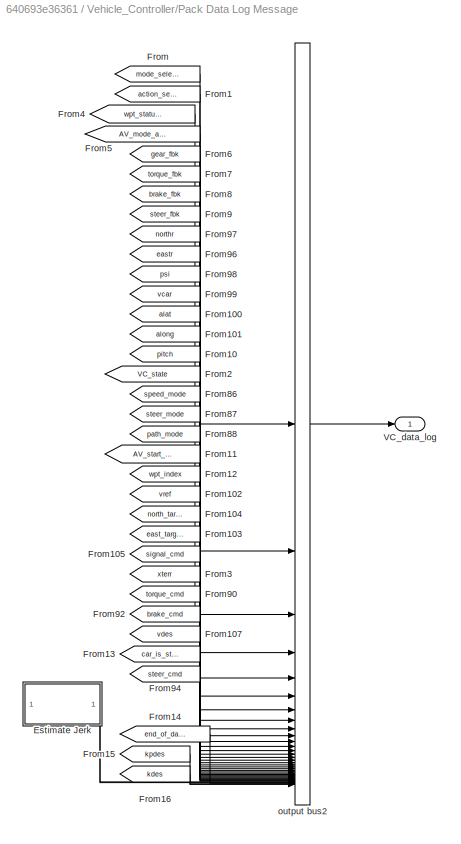
BLOCK [SubSystem] Vehicle_Controller/Pack Data Log Message
BLOCK [SubSystem] Vehicle_Controller/Pack Data Log Message/Estimate Jerk
BLOCK [BusSelector] Vehicle_Controller/Pack Data Log Message/Estimate Jerk/Bus Selector
  OutputSignals = ts
BLOCK [From] Vehicle_Controller/Pack Data Log Message/Estimate Jerk/From
  GotoTag = par_bus
  TagVisibility = global
BLOCK [From] Vehicle_Controller/Pack Data Log Message/Estimate Jerk/From100
  GotoTag = alat
  TagVisibility = global
BLOCK [From] Vehicle_Controller/Pack Data Log Message/Estimate Jerk/From101
  GotoTag = along
  TagVisibility = global
BLOCK [From] Vehicle_Controller/Pack Data Log Message/Estimate Jerk/From106
  GotoTag = mode_select
  TagVisibility = global
BLOCK [SubSystem] Vehicle_Controller/Pack Data Log Message/Estimate Jerk/Jerk Estimation Filter
  ErrorFcn = Stateflow.Translate.translate
  PermitHierarchicalResolution = ExplicitOnly
  SFBlockType = MATLAB Function
  SystemSampleTime = ts
  TreatAsAtomicUnit = on
BLOCK [Demux] Vehicle_Controller/Pack Data Log Message/Estimate Jerk/Jerk Estimation Filter/ Demux 
  Outputs = 1
BLOCK [S-Function] Vehicle_Controller/Pack Data Log Message/Estimate Jerk/Jerk Estimation Filter/ SFunction 
  EnableBusSupport = on
  FunctionName = sf_sfun
  PortCounts = [4 3]
  SFcnIsStateOwnerBlock = off
  SFunctionDeploymentMode = off
  Tag = Stateflow S-Function 21
BLOCK [Terminator] Vehicle_Controller/Pack Data Log Message/Estimate Jerk/Jerk Estimation Filter/ Terminator 
BLOCK [Inport] Vehicle_Controller/Pack Data Log Message/Estimate Jerk/Jerk Estimation Filter/alat
  Port = 2
BLOCK [Inport] Vehicle_Controller/Pack Data Log Message/Estimate Jerk/Jerk Estimation Filter/along
  Port = 3
BLOCK [Outport] Vehicle_Controller/Pack Data Log Message/Estimate Jerk/Jerk Estimation Filter/jlat
BLOCK [Outport] Vehicle_Controller/Pack Data Log Message/Estimate Jerk/Jerk Estimation Filter/jlong
  Port = 2
BLOCK [Inport] Vehicle_Controller/Pack Data Log Message/Estimate Jerk/Jerk Estimation Filter/mode_select
BLOCK [Inport] Vehicle_Controller/Pack Data Log Message/Estimate Jerk/Jerk Estimation Filter/ts
  Port = 4
BLOCK [Outport] Vehicle_Controller/Pack Data Log Message/Estimate Jerk/jlat (m//s//s//s)
BLOCK [Outport] Vehicle_Controller/Pack Data Log Message/Estimate Jerk/jlong (m//s//s//s)
  Port = 2
BLOCK [From] Vehicle_Controller/Pack Data Log Message/From
  GotoTag = mode_select
  TagVisibility = global
BLOCK [From] Vehicle_Controller/Pack Data Log Message/From1
  GotoTag = action_select
  TagVisibility = global
BLOCK [From] Vehicle_Controller/Pack Data Log Message/From10
  GotoTag = pitch
  TagVisibility = global
BLOCK [From] Vehicle_Controller/Pack Data Log Message/From100
  GotoTag = alat
  TagVisibility = global
BLOCK [From] Vehicle_Controller/Pack Data Log Message/From101
  GotoTag = along
  TagVisibility = global
BLOCK [From] Vehicle_Controller/Pack Data Log Message/From102
  GotoTag = vref
  TagVisibility = global
BLOCK [From] Vehicle_Controller/Pack Data Log Message/From103
  GotoTag = east_target
  TagVisibility = global
BLOCK [From] Vehicle_Controller/Pack Data Log Message/From104
  GotoTag = north_target
  TagVisibility = global
BLOCK [From] Vehicle_Controller/Pack Data Log Message/From105
  GotoTag = signal_cmd
  TagVisibility = global
BLOCK [From] Vehicle_Controller/Pack Data Log Message/From107
  GotoTag = vdes
  TagVisibility = global
BLOCK [From] Vehicle_Controller/Pack Data Log Message/From11
  GotoTag = AV_start_request
  TagVisibility = global
BLOCK [From] Vehicle_Controller/Pack Data Log Message/From12
  GotoTag = wpt_index
  TagVisibility = global
BLOCK [From] Vehicle_Controller/Pack Data Log Message/From13
  GotoTag = car_is_stopped
  TagVisibility = global
BLOCK [From] Vehicle_Controller/Pack Data Log Message/From14
  GotoTag = end_of_data
  TagVisibility = global
BLOCK [From] Vehicle_Controller/Pack Data Log Message/From15
  GotoTag = kpdes
  TagVisibility = global
BLOCK [From] Vehicle_Controller/Pack Data Log Message/From16
  GotoTag = kdes
  TagVisibility = global
BLOCK [From] Vehicle_Controller/Pack Data Log Message/From2
  GotoTag = VC_state
  TagVisibility = global
BLOCK [From] Vehicle_Controller/Pack Data Log Message/From3
  GotoTag = xterr
  TagVisibility = global
BLOCK [From] Vehicle_Controller/Pack Data Log Message/From4
  GotoTag = wpt_status_change
  TagVisibility = global
BLOCK [From] Vehicle_Controller/Pack Data Log Message/From5
  GotoTag = AV_mode_active
  TagVisibility = global
BLOCK [From] Vehicle_Controller/Pack Data Log Message/From6
  GotoTag = gear_fbk
  TagVisibility = global
BLOCK [From] Vehicle_Controller/Pack Data Log Message/From7
  GotoTag = torque_fbk
  TagVisibility = global
BLOCK [From] Vehicle_Controller/Pack Data Log Message/From8
  GotoTag = brake_fbk
  TagVisibility = global
BLOCK [From] Vehicle_Controller/Pack Data Log Message/From86
  GotoTag = speed_mode
  TagVisibility = global
BLOCK [From] Vehicle_Controller/Pack Data Log Message/From87
  GotoTag = steer_mode
  TagVisibility = global
BLOCK [From] Vehicle_Controller/Pack Data Log Message/From88
  GotoTag = path_mode
  TagVisibility = global
BLOCK [From] Vehicle_Controller/Pack Data Log Message/From9
  GotoTag = steer_fbk
  TagVisibility = global
BLOCK [From] Vehicle_Controller/Pack Data Log Message/From90
  GotoTag = torque_cmd
  TagVisibility = global
BLOCK [From] Vehicle_Controller/Pack Data Log Message/From92
  GotoTag = brake_cmd
  TagVisibility = global
BLOCK [From] Vehicle_Controller/Pack Data Log Message/From94
  GotoTag = steer_cmd
  TagVisibility = global
BLOCK [From] Vehicle_Controller/Pack Data Log Message/From96
  GotoTag = eastr
  TagVisibility = global
BLOCK [From] Vehicle_Controller/Pack Data Log Message/From97
  GotoTag = northr
  TagVisibility = global
BLOCK [From] Vehicle_Controller/Pack Data Log Message/From98
  GotoTag = psi
  TagVisibility = global
BLOCK [From] Vehicle_Controller/Pack Data Log Message/From99
  GotoTag = vcar
  TagVisibility = global
BLOCK [Outport] Vehicle_Controller/Pack Data Log Message/VC_data_log
BLOCK [BusCreator] Vehicle_Controller/Pack Data Log Message/output bus2
  DisplayOption = bar
  InheritFromInputs = on
  Inputs = 36
BLOCK [SubSystem] Vehicle_Controller/Pack VC Status Message
BLOCK [BusCreator] Vehicle_Controller/Pack VC Status Message/Bus Creator
  DisplayOption = bar
  InheritFromInputs = on
  Inputs = 2
BLOCK [From] Vehicle_Controller/Pack VC Status Message/From2
  GotoTag = wpt_index
  TagVisibility = global
BLOCK [From] Vehicle_Controller/Pack VC Status Message/From5
  GotoTag = VC_state
  TagVisibility = global
BLOCK [Outport] Vehicle_Controller/Pack VC Status Message/VC_status
BLOCK [SubSystem] Vehicle_Controller/Unpack CAN FBK
BLOCK [Inport] Vehicle_Controller/Unpack CAN FBK/CAN_fbk
BLOCK [Goto] Vehicle_Controller/Unpack CAN FBK/Goto12
  GotoTag = steer_fbk
  TagVisibility = global
BLOCK [Goto] Vehicle_Controller/Unpack CAN FBK/Goto13
  GotoTag = gear_fbk
  TagVisibility = global
BLOCK [Goto] Vehicle_Controller/Unpack CAN FBK/Goto14
  GotoTag = torque_fbk
  TagVisibility = global
BLOCK [Goto] Vehicle_Controller/Unpack CAN FBK/Goto32
  GotoTag = AV_mode_active
  TagVisibility = global
BLOCK [Goto] Vehicle_Controller/Unpack CAN FBK/Goto7
  GotoTag = brake_fbk
  TagVisibility = global
BLOCK [BusSelector] Vehicle_Controller/Unpack CAN FBK/input bus for manual CAN commands1
  OutputSignals = AV_mode_active,gear_fbk,torque_fbk,brake_fbk,steer_fbk
BLOCK [SubSystem] Vehicle_Controller/Unpack GNSS FBK
BLOCK [BusSelector] Vehicle_Controller/Unpack GNSS FBK/Bus Selector1
  OutputSignals = eastr (m),northr (m),psi (deg),vr (m/s),alat (m/s/s),along (m/s/s),pitch (rad)
BLOCK [Inport] Vehicle_Controller/Unpack GNSS FBK/GNSS_fbk
BLOCK [Goto] Vehicle_Controller/Unpack GNSS FBK/Goto1
  GotoTag = eastr
  TagVisibility = global
BLOCK [Goto] Vehicle_Controller/Unpack GNSS FBK/Goto2
  GotoTag = northr
  TagVisibility = global
BLOCK [Goto] Vehicle_Controller/Unpack GNSS FBK/Goto3
  GotoTag = psi
  TagVisibility = global
BLOCK [Goto] Vehicle_Controller/Unpack GNSS FBK/Goto30
  GotoTag = pitch
  TagVisibility = global
BLOCK [Goto] Vehicle_Controller/Unpack GNSS FBK/Goto4
  GotoTag = vcar
  TagVisibility = global
BLOCK [Goto] Vehicle_Controller/Unpack GNSS FBK/Goto5
  GotoTag = alat
  TagVisibility = global
BLOCK [Goto] Vehicle_Controller/Unpack GNSS FBK/Goto6
  GotoTag = along
  TagVisibility = global
BLOCK [Outport] Vehicle_Controller/VC_data_log
  Port = 3
BLOCK [Outport] Vehicle_Controller/VC_status
BLOCK [SubSystem] Vehicle_Controller/Waypoint Path Analyzer
BLOCK [From] Vehicle_Controller/Waypoint Path Analyzer/From
  GotoTag = par_bus
  TagVisibility = global
BLOCK [From] Vehicle_Controller/Waypoint Path Analyzer/From1
  GotoTag = WPT_BUS
  TagVisibility = global
BLOCK [From] Vehicle_Controller/Waypoint Path Analyzer/From13
  GotoTag = path_mode
  TagVisibility = global
BLOCK [From] Vehicle_Controller/Waypoint Path Analyzer/From17
  GotoTag = eastr
  TagVisibility = global
BLOCK [From] Vehicle_Controller/Waypoint Path Analyzer/From18
  GotoTag = northr
  TagVisibility = global
BLOCK [From] Vehicle_Controller/Waypoint Path Analyzer/From2
  GotoTag = wpt_status_change
  TagVisibility = global
BLOCK [Goto] Vehicle_Controller/Waypoint Path Analyzer/Goto1
  GotoTag = wpt_index
  TagVisibility = global
BLOCK [Goto] Vehicle_Controller/Waypoint Path Analyzer/Goto19
  GotoTag = vref
  TagVisibility = global
BLOCK [Goto] Vehicle_Controller/Waypoint Path Analyzer/Goto2
  GotoTag = xterr
  TagVisibility = global
BLOCK [Goto] Vehicle_Controller/Waypoint Path Analyzer/Goto20
  GotoTag = east_target
  TagVisibility = global
BLOCK [Goto] Vehicle_Controller/Waypoint Path Analyzer/Goto21
  GotoTag = north_target
  TagVisibility = global
BLOCK [Goto] Vehicle_Controller/Waypoint Path Analyzer/Goto22
  GotoTag = signal_cmd
  TagVisibility = global
BLOCK [Goto] Vehicle_Controller/Waypoint Path Analyzer/Goto3
  GotoTag = end_of_data
  TagVisibility = global
BLOCK [SubSystem] Vehicle_Controller/Waypoint Path Analyzer/Waypoint Path Analysis
BLOCK [SubSystem] Vehicle_Controller/Waypoint Path Analyzer/Waypoint Path Analysis/Check for end-of-data
BLOCK [BusSelector] Vehicle_Controller/Waypoint Path Analyzer/Waypoint Path Analysis/Check for end-of-data/Bus Selector1
  OutputSignals = NUM_WP
BLOCK [DataTypeConversion] Vehicle_Controller/Waypoint Path Analyzer/Waypoint Path Analysis/Check for end-of-data/Data Type Conversion
  OutDataTypeStr = double
  RndMeth = Floor
  SaturateOnIntegerOverflow = off
BLOCK [RelationalOperator] Vehicle_Controller/Waypoint Path Analyzer/Waypoint Path Analysis/Check for end-of-data/Relational Operator
  InputSameDT = off
  OutDataTypeStr = boolean
  RndMeth = Simplest
BLOCK [Inport] Vehicle_Controller/Waypoint Path Analyzer/Waypoint Path Analysis/Check for end-of-data/WPT_BUS
  Port = 2
BLOCK [Outport] Vehicle_Controller/Waypoint Path Analyzer/Waypoint Path Analysis/Check for end-of-data/end_of_data
BLOCK [Inport] Vehicle_Controller/Waypoint Path Analyzer/Waypoint Path Analysis/Check for end-of-data/waypoint_index
BLOCK [SubSystem] Vehicle_Controller/Waypoint Path Analyzer/Waypoint Path Analysis/Estimate closest point on path to vehicle
BLOCK [BusSelector] Vehicle_Controller/Waypoint Path Analyzer/Waypoint Path Analysis/Estimate closest point on path to vehicle/Bus Selector1
  OutputSignals = NUM_WP,NWP (m),EWP (m),VWP (m/s),SWP (bitfield)
BLOCK [SubSystem] Vehicle_Controller/Waypoint Path Analyzer/Waypoint Path Analysis/Estimate closest point on path to vehicle/Estimate key parameters at closest path point
  ErrorFcn = Stateflow.Translate.translate
  LibrarySourceBlock = simulink/User-Defined\nFunctions/MATLAB Function
  PermitHierarchicalResolution = ExplicitOnly
  SFBlockType = MATLAB Function
  SystemSampleTime = ts
  TreatAsAtomicUnit = on
BLOCK [Demux] Vehicle_Controller/Waypoint Path Analyzer/Waypoint Path Analysis/Estimate closest point on path to vehicle/Estimate key parameters at closest path point/ Demux 
  Outputs = 1
BLOCK [S-Function] Vehicle_Controller/Waypoint Path Analyzer/Waypoint Path Analysis/Estimate closest point on path to vehicle/Estimate key parameters at closest path point/ SFunction 
  EnableBusSupport = on
  FunctionName = sf_sfun
  PortCounts = [9 7]
  SFcnIsStateOwnerBlock = off
  SFunctionDeploymentMode = off
  Tag = Stateflow S-Function 19
BLOCK [Terminator] Vehicle_Controller/Waypoint Path Analyzer/Waypoint Path Analysis/Estimate closest point on path to vehicle/Estimate key parameters at closest path point/ Terminator 
BLOCK [Inport] Vehicle_Controller/Waypoint Path Analyzer/Waypoint Path Analysis/Estimate closest point on path to vehicle/Estimate key parameters at closest path point/EWP
  Port = 7
BLOCK [Inport] Vehicle_Controller/Waypoint Path Analyzer/Waypoint Path Analysis/Estimate closest point on path to vehicle/Estimate key parameters at closest path point/NUM_WP
  Port = 5
BLOCK [Inport] Vehicle_Controller/Waypoint Path Analyzer/Waypoint Path Analysis/Estimate closest point on path to vehicle/Estimate key parameters at closest path point/NWP
  Port = 6
BLOCK [Inport] Vehicle_Controller/Waypoint Path Analyzer/Waypoint Path Analysis/Estimate closest point on path to vehicle/Estimate key parameters at closest path point/SWP
  Port = 9
BLOCK [Inport] Vehicle_Controller/Waypoint Path Analyzer/Waypoint Path Analysis/Estimate closest point on path to vehicle/Estimate key parameters at closest path point/VWP
  Port = 8
BLOCK [Outport] Vehicle_Controller/Waypoint Path Analyzer/Waypoint Path Analysis/Estimate closest point on path to vehicle/Estimate key parameters at closest path point/east
  Port = 3
BLOCK [Inport] Vehicle_Controller/Waypoint Path Analyzer/Waypoint Path Analysis/Estimate closest point on path to vehicle/Estimate key parameters at closest path point/eastr
  Port = 3
BLOCK [Outport] Vehicle_Controller/Waypoint Path Analyzer/Waypoint Path Analysis/Estimate closest point on path to vehicle/Estimate key parameters at closest path point/north
  Port = 2
BLOCK [Inport] Vehicle_Controller/Waypoint Path Analyzer/Waypoint Path Analysis/Estimate closest point on path to vehicle/Estimate key parameters at closest path point/northr
  Port = 2
BLOCK [Inport] Vehicle_Controller/Waypoint Path Analyzer/Waypoint Path Analysis/Estimate closest point on path to vehicle/Estimate key parameters at closest path point/path_mode
BLOCK [Outport] Vehicle_Controller/Waypoint Path Analyzer/Waypoint Path Analysis/Estimate closest point on path to vehicle/Estimate key parameters at closest path point/signal
  Port = 5
BLOCK [Outport] Vehicle_Controller/Waypoint Path Analyzer/Waypoint Path Analysis/Estimate closest point on path to vehicle/Estimate key parameters at closest path point/vref
  Port = 4
BLOCK [Outport] Vehicle_Controller/Waypoint Path Analyzer/Waypoint Path Analysis/Estimate closest point on path to vehicle/Estimate key parameters at closest path point/wpt_index
BLOCK [Inport] Vehicle_Controller/Waypoint Path Analyzer/Waypoint Path Analysis/Estimate closest point on path to vehicle/Estimate key parameters at closest path point/wpt_status_change
  Port = 4
BLOCK [Outport] Vehicle_Controller/Waypoint Path Analyzer/Waypoint Path Analysis/Estimate closest point on path to vehicle/Estimate key parameters at closest path point/xterr
  Port = 6
BLOCK [Inport] Vehicle_Controller/Waypoint Path Analyzer/Waypoint Path Analysis/Estimate closest point on path to vehicle/WPT_BUS
  Port = 5
BLOCK [Outport] Vehicle_Controller/Waypoint Path Analyzer/Waypoint Path Analysis/Estimate closest point on path to vehicle/eastc
  Port = 3
BLOCK [Inport] Vehicle_Controller/Waypoint Path Analyzer/Waypoint Path Analysis/Estimate closest point on path to vehicle/eastr
  Port = 3
BLOCK [Outport] Vehicle_Controller/Waypoint Path Analyzer/Waypoint Path Analysis/Estimate closest point on path to vehicle/northc
  Port = 2
BLOCK [Inport] Vehicle_Controller/Waypoint Path Analyzer/Waypoint Path Analysis/Estimate closest point on path to vehicle/northr
  Port = 2
BLOCK [Inport] Vehicle_Controller/Waypoint Path Analyzer/Waypoint Path Analysis/Estimate closest point on path to vehicle/path_mode
BLOCK [Outport] Vehicle_Controller/Waypoint Path Analyzer/Waypoint Path Analysis/Estimate closest point on path to vehicle/signal_cmd
  Port = 5
BLOCK [Outport] Vehicle_Controller/Waypoint Path Analyzer/Waypoint Path Analysis/Estimate closest point on path to vehicle/vref
  Port = 4
BLOCK [Outport] Vehicle_Controller/Waypoint Path Analyzer/Waypoint Path Analysis/Estimate closest point on path to vehicle/wpt_index
BLOCK [Inport] Vehicle_Controller/Waypoint Path Analyzer/Waypoint Path Analysis/Estimate closest point on path to vehicle/wpt_status_change
  Port = 4
BLOCK [Outport] Vehicle_Controller/Waypoint Path Analyzer/Waypoint Path Analysis/Estimate closest point on path to vehicle/xterr
  Port = 6
BLOCK [SubSystem] Vehicle_Controller/Waypoint Path Analyzer/Waypoint Path Analysis/Estimate lookahead target point
BLOCK [BusSelector] Vehicle_Controller/Waypoint Path Analyzer/Waypoint Path Analysis/Estimate lookahead target point/Bus Selector1
  OutputSignals = NUM_WP,NWP (m),EWP (m)
BLOCK [BusSelector] Vehicle_Controller/Waypoint Path Analyzer/Waypoint Path Analysis/Estimate lookahead target point/Bus Selector2
  OutputSignals = min_lookahead,max_lookahead
BLOCK [SubSystem] Vehicle_Controller/Waypoint Path Analyzer/Waypoint Path Analysis/Estimate lookahead target point/MATLAB Function
  ErrorFcn = Stateflow.Translate.translate
  LibrarySourceBlock = simulink/User-Defined\nFunctions/MATLAB Function
  PermitHierarchicalResolution = ExplicitOnly
  SFBlockType = MATLAB Function
  SystemSampleTime = ts
  TreatAsAtomicUnit = on
BLOCK [Demux] Vehicle_Controller/Waypoint Path Analyzer/Waypoint Path Analysis/Estimate lookahead target point/MATLAB Function/ Demux 
  Outputs = 1
BLOCK [S-Function] Vehicle_Controller/Waypoint Path Analyzer/Waypoint Path Analysis/Estimate lookahead target point/MATLAB Function/ SFunction 
  EnableBusSupport = on
  FunctionName = sf_sfun
  PortCounts = [9 4]
  SFcnIsStateOwnerBlock = off
  SFunctionDeploymentMode = off
  Tag = Stateflow S-Function 20
BLOCK [Terminator] Vehicle_Controller/Waypoint Path Analyzer/Waypoint Path Analysis/Estimate lookahead target point/MATLAB Function/ Terminator 
BLOCK [Inport] Vehicle_Controller/Waypoint Path Analyzer/Waypoint Path Analysis/Estimate lookahead target point/MATLAB Function/EWP
  Port = 9
BLOCK [Inport] Vehicle_Controller/Waypoint Path Analyzer/Waypoint Path Analysis/Estimate lookahead target point/MATLAB Function/NUM_WP
  Port = 7
BLOCK [Inport] Vehicle_Controller/Waypoint Path Analyzer/Waypoint Path Analysis/Estimate lookahead target point/MATLAB Function/NWP
  Port = 8
BLOCK [Inport] Vehicle_Controller/Waypoint Path Analyzer/Waypoint Path Analysis/Estimate lookahead target point/MATLAB Function/eastc
  Port = 4
BLOCK [Outport] Vehicle_Controller/Waypoint Path Analyzer/Waypoint Path Analysis/Estimate lookahead target point/MATLAB Function/eastt
  Port = 3
BLOCK [Inport] Vehicle_Controller/Waypoint Path Analyzer/Waypoint Path Analysis/Estimate lookahead target point/MATLAB Function/maxLA
  Port = 6
BLOCK [Inport] Vehicle_Controller/Waypoint Path Analyzer/Waypoint Path Analysis/Estimate lookahead target point/MATLAB Function/minLA
  Port = 5
BLOCK [Inport] Vehicle_Controller/Waypoint Path Analyzer/Waypoint Path Analysis/Estimate lookahead target point/MATLAB Function/northc
  Port = 3
BLOCK [Outport] Vehicle_Controller/Waypoint Path Analyzer/Waypoint Path Analysis/Estimate lookahead target point/MATLAB Function/northt
  Port = 2
BLOCK [Inport] Vehicle_Controller/Waypoint Path Analyzer/Waypoint Path Analysis/Estimate lookahead target point/MATLAB Function/path_mode
BLOCK [Outport] Vehicle_Controller/Waypoint Path Analyzer/Waypoint Path Analysis/Estimate lookahead target point/MATLAB Function/target_index
BLOCK [Inport] Vehicle_Controller/Waypoint Path Analyzer/Waypoint Path Analysis/Estimate lookahead target point/MATLAB Function/wpt_index
  Port = 2
BLOCK [Terminator] Vehicle_Controller/Waypoint Path Analyzer/Waypoint Path Analysis/Estimate lookahead target point/Terminator
BLOCK [Inport] Vehicle_Controller/Waypoint Path Analyzer/Waypoint Path Analysis/Estimate lookahead target point/WP_BUS
  Port = 6
BLOCK [Inport] Vehicle_Controller/Waypoint Path Analyzer/Waypoint Path Analysis/Estimate lookahead target point/eastc
  Port = 4
BLOCK [Outport] Vehicle_Controller/Waypoint Path Analyzer/Waypoint Path Analysis/Estimate lookahead target point/eastt
  Port = 2
BLOCK [Inport] Vehicle_Controller/Waypoint Path Analyzer/Waypoint Path Analysis/Estimate lookahead target point/northc
  Port = 3
BLOCK [Outport] Vehicle_Controller/Waypoint Path Analyzer/Waypoint Path Analysis/Estimate lookahead target point/northt
BLOCK [Inport] Vehicle_Controller/Waypoint Path Analyzer/Waypoint Path Analysis/Estimate lookahead target point/par
  Port = 5
BLOCK [Inport] Vehicle_Controller/Waypoint Path Analyzer/Waypoint Path Analysis/Estimate lookahead target point/path_mode
BLOCK [Inport] Vehicle_Controller/Waypoint Path Analyzer/Waypoint Path Analysis/Estimate lookahead target point/wpt_index
  Port = 2
BLOCK [Inport] Vehicle_Controller/Waypoint Path Analyzer/Waypoint Path Analysis/WPT_BUS
  Port = 6
BLOCK [Outport] Vehicle_Controller/Waypoint Path Analyzer/Waypoint Path Analysis/east_target
  Port = 4
BLOCK [Inport] Vehicle_Controller/Waypoint Path Analyzer/Waypoint Path Analysis/eastr
  Port = 3
BLOCK [Outport] Vehicle_Controller/Waypoint Path Analyzer/Waypoint Path Analysis/end_of_data
  Port = 7
BLOCK [Outport] Vehicle_Controller/Waypoint Path Analyzer/Waypoint Path Analysis/north_target
  Port = 3
BLOCK [Inport] Vehicle_Controller/Waypoint Path Analyzer/Waypoint Path Analysis/northr
  Port = 2
BLOCK [Inport] Vehicle_Controller/Waypoint Path Analyzer/Waypoint Path Analysis/par
  Port = 4
BLOCK [Inport] Vehicle_Controller/Waypoint Path Analyzer/Waypoint Path Analysis/path_mode
BLOCK [Outport] Vehicle_Controller/Waypoint Path Analyzer/Waypoint Path Analysis/signal_cmd
  Port = 5
BLOCK [Outport] Vehicle_Controller/Waypoint Path Analyzer/Waypoint Path Analysis/vref
  Port = 2
BLOCK [Outport] Vehicle_Controller/Waypoint Path Analyzer/Waypoint Path Analysis/wpt_index
BLOCK [Inport] Vehicle_Controller/Waypoint Path Analyzer/Waypoint Path Analysis/wpt_status_change
  Port = 5
BLOCK [Outport] Vehicle_Controller/Waypoint Path Analyzer/Waypoint Path Analysis/xterr
  Port = 6
BLOCK [Inport] Vehicle_Controller/action_select
  Port = 2
BLOCK [Inport] Vehicle_Controller/mode_select
BLOCK [Inport] Vehicle_Controller/new_wpts
  Port = 3
BLOCK [Inport] Vehicle_Controller/num_wp
  Port = 4
BLOCK [Inport] Vehicle_Controller/par_vector
  Port = 8
BLOCK [Inport] Vehicle_Controller/wpt_mtx
  Port = 5
ANNOTATION CAN Driver: This code block is the set of CAN driver functions that convert command signals to appropriate 8-byte CAN messages.
ANNOTATION Chevy Bolt EUV 2023 and GNSS/GNSS measurement/Subsystem: $a_{lat} = \left( \frac{V_{cg}^2}{R} \right) = \left( \kappa\:V_{cg}^2 \right)$
ANNOTATION Chevy Bolt EUV 2023 and GNSS/engine-steer-brake and inertial dynamics: Car Inertial Dynamics (Continuous)
ANNOTATION Chevy Bolt EUV 2023 and GNSS/engine-steer-brake and inertial dynamics: Extract CAN Command Signals
ANNOTATION Chevy Bolt EUV 2023 and GNSS/engine-steer-brake and inertial dynamics: Gear Shift Manager (100 Hz)
ANNOTATION Chevy Bolt EUV 2023 and GNSS/engine-steer-brake and inertial dynamics: Generate CAN Feedback Bus (100 Hz)
ANNOTATION Chevy Bolt EUV 2023 and GNSS/engine-steer-brake and inertial dynamics: Generate IMU Bus (100 Hz)
ANNOTATION Chevy Bolt EUV 2023 and GNSS/engine-steer-brake and inertial dynamics: Pitch and Road Grade Torque (Continuous)
ANNOTATION Chevy Bolt EUV 2023 and GNSS/engine-steer-brake and inertial dynamics: Powertrain and Steering Dynamics (Continuous)
ANNOTATION Chevy Bolt EUV 2023 and GNSS/engine-steer-brake and inertial dynamics/Car Longitudinal Dynamics: Note: vcg is the velocity measured at the CG of the car
ANNOTATION Chevy Bolt EUV 2023 and GNSS/engine-steer-brake and inertial dynamics/Engine Torque Dynamics: gear: 1=drive, 0=park, -1=reverse
ANNOTATION Chevy Bolt EUV 2023 and GNSS/engine-steer-brake and inertial dynamics/Road Grade Force: NOTE: Positive grade (pitch) means "pointing uphill", which makes the force due to grade (Fgrade) have a negative value as well as the resulting effective grade torque (Tgrade).
ANNOTATION Chevy Bolt EUV 2023 and GNSS/kinematic Bicycle model: Coordinate System Definition: East-Norh-Up (right-hand) x = Easting y = Northing psi = Heading (positive from x to y)
ANNOTATION Chevy Bolt EUV 2023 and GNSS/kinematic Bicycle model: This Bicycle model was taken from Rajamani, "Vehicle Dynamics and Control", Mechanical Engineering Series, ISBN 978-1-4614-1433-9, Chapter 2, Lateral Vehicle Dynamics, 2012.
ANNOTATION Chevy Bolt EUV 2023 and GNSS/kinematic Bicycle model: Equation 2.10, pg. 24, Rajamani
ANNOTATION Chevy Bolt EUV 2023 and GNSS/kinematic Bicycle model: Equation 2.11, pg. 24, Rajamani
ANNOTATION Chevy Bolt EUV 2023 and GNSS/kinematic Bicycle model: Equation 2.12, pg. 24, Rajamani
ANNOTATION Chevy Bolt EUV 2023 and GNSS/kinematic Bicycle model/Vehicle Slip Angle (direction of CG): $\beta$ = slip angle of vehicle [radians]
ANNOTATION Chevy Bolt EUV 2023 and GNSS/kinematic Bicycle model/Vehicle Slip Angle (direction of CG): Curvature: $\kappa = \left( \frac{1}{radius\:of\:curvature} \right)$
ANNOTATION Chevy Bolt EUV 2023 and GNSS/kinematic Bicycle model/Vehicle Slip Angle (direction of CG): Equation 2.13, pg. 24, Rajamani
ANNOTATION Chevy Bolt EUV 2023 and GNSS/kinematic Bicycle model/Vehicle Slip Angle (direction of CG): Equation 2.7, pg. 23, Rajamani
ANNOTATION Commander Emulator: mode_select 0 = manual 1 = full autonomous 2 = autonomous speed 3 = autonomous steer
ANNOTATION Vehicle_Controller: Victor Tango - Autonomous Vehicle Control
ANNOTATION Vehicle_Controller: AV Control Functions
ANNOTATION Vehicle_Controller: Input Message Distribution
ANNOTATION Vehicle_Controller: Output Message Distribution
ANNOTATION Vehicle_Controller/Data Registers/load new parameter vector/Subsystem: Initialize par_bus with a default vcctor of values. Whenever this subsystem is enabled, a new par_vector is pushed into the par_bus. The output values stored in par_bus are latched when this subsystem is disabled.
ANNOTATION Vehicle_Controller/Data Registers/load new parameter vector/edge detector: edge detector
ANNOTATION Vehicle_Controller/Data Registers/load new waypoint matrix/edge detector: edge detector
ANNOTATION Vehicle_Controller/Lateral Control/Lateral Controller/Calculate control limits/Calculate Target Distance: Euclidean distance between Car and Target points
ANNOTATION Vehicle_Controller/Mode Selection: mode_select 0 = manual 1 = full autonomous 2 = autonomous speed 3 = autonomous steer
ANNOTATION Vehicle_Controller/Mode Selection: action_select 0 = enter manual mode 1 = enter autonomous mode 2 = enter run_hot mode
ANNOTATION Vehicle_Controller/Mode Selection: action_select is an input from local planner
ANNOTATION Vehicle_Controller/Mode Selection: mode_select is an input from commander
LINE CAN Driver/Bus Creator:1 -> CAN Driver/CAN_cmd_out:1
LINE CAN Driver/Bus Selector:1 -> CAN Driver/MATLAB Function:1
LINE CAN Driver/Bus Selector:2 -> CAN Driver/MATLAB Function:2
LINE CAN Driver/Bus Selector:3 -> CAN Driver/MATLAB Function:3
LINE CAN Driver/Bus Selector:4 -> CAN Driver/MATLAB Function:4
LINE CAN Driver/Bus Selector:5 -> CAN Driver/MATLAB Function:5
LINE CAN Driver/Bus Selector:6 -> CAN Driver/MATLAB Function:6
LINE CAN Driver/CAN_cmd:1 -> CAN Driver/Bus Selector:1
LINE CAN Driver/MATLAB Function:1 -> CAN Driver/Bus Creator:1
LINE CAN Driver/MATLAB Function:2 -> CAN Driver/Bus Creator:2
LINE CAN Driver/MATLAB Function:3 -> CAN Driver/Bus Creator:3
LINE CAN Driver/MATLAB Function:4 -> CAN Driver/Bus Creator:4
LINE CAN Driver/MATLAB Function:5 -> CAN Driver/Bus Creator:5
LINE CAN Driver:1 -> Chevy Bolt EUV 2023 and GNSS:1
LINE Chevy Bolt EUV 2023 and GNSS/Bus Selector:1 -> Chevy Bolt EUV 2023 and GNSS/kinematic Bicycle model:2
LINE Chevy Bolt EUV 2023 and GNSS/CAN_cmd:1 -> Chevy Bolt EUV 2023 and GNSS/engine-steer-brake and inertial dynamics:1
LINE Chevy Bolt EUV 2023 and GNSS/GNSS measurement/Bus Selector1:1 -> Chevy Bolt EUV 2023 and GNSS/GNSS measurement/GNSS bus:1
LINE Chevy Bolt EUV 2023 and GNSS/GNSS measurement/Bus Selector1:2 -> Chevy Bolt EUV 2023 and GNSS/GNSS measurement/GNSS bus:2
LINE Chevy Bolt EUV 2023 and GNSS/GNSS measurement/Bus Selector1:3 -> Chevy Bolt EUV 2023 and GNSS/GNSS measurement/rad-to-deg:1
LINE Chevy Bolt EUV 2023 and GNSS/GNSS measurement/Bus Selector1:4 -> Chevy Bolt EUV 2023 and GNSS/GNSS measurement/GNSS bus:4
LINE Chevy Bolt EUV 2023 and GNSS/GNSS measurement/Bus Selector2:1 -> Chevy Bolt EUV 2023 and GNSS/GNSS measurement/GNSS bus:8
LINE Chevy Bolt EUV 2023 and GNSS/GNSS measurement/Bus Selector2:2 -> Chevy Bolt EUV 2023 and GNSS/GNSS measurement/GNSS bus:9
LINE Chevy Bolt EUV 2023 and GNSS/GNSS measurement/Bus Selector3:1 -> Chevy Bolt EUV 2023 and GNSS/GNSS measurement/Project vc onto x-y axis:1
NET Chevy Bolt EUV 2023 and GNSS/GNSS measurement/Bus Selector3:2 -> Chevy Bolt EUV 2023 and GNSS/GNSS measurement/Project vc onto x-y axis:2, Chevy Bolt EUV 2023 and GNSS/GNSS measurement/Subsystem:1
LINE Chevy Bolt EUV 2023 and GNSS/GNSS measurement/GNSS bus:1 -> Chevy Bolt EUV 2023 and GNSS/GNSS measurement/GNSS_fbk:1
LINE Chevy Bolt EUV 2023 and GNSS/GNSS measurement/IMU_fbk:1 -> Chevy Bolt EUV 2023 and GNSS/GNSS measurement/Bus Selector2:1
LINE Chevy Bolt EUV 2023 and GNSS/GNSS measurement/MATLAB Function:1 -> Chevy Bolt EUV 2023 and GNSS/GNSS measurement/GNSS bus:3
LINE Chevy Bolt EUV 2023 and GNSS/GNSS measurement/Project vc onto x-y axis/Product1:1 -> Chevy Bolt EUV 2023 and GNSS/GNSS measurement/Project vc onto x-y axis/vcgy (m//s):1
LINE Chevy Bolt EUV 2023 and GNSS/GNSS measurement/Project vc onto x-y axis/Product:1 -> Chevy Bolt EUV 2023 and GNSS/GNSS measurement/Project vc onto x-y axis/vcgx (m//s):1
LINE Chevy Bolt EUV 2023 and GNSS/GNSS measurement/Project vc onto x-y axis/Trigonometric Function1:1 -> Chevy Bolt EUV 2023 and GNSS/GNSS measurement/Project vc onto x-y axis/Product:1
LINE Chevy Bolt EUV 2023 and GNSS/GNSS measurement/Project vc onto x-y axis/Trigonometric Function:1 -> Chevy Bolt EUV 2023 and GNSS/GNSS measurement/Project vc onto x-y axis/Product1:2
NET Chevy Bolt EUV 2023 and GNSS/GNSS measurement/Project vc onto x-y axis/psi (rad):1 -> Chevy Bolt EUV 2023 and GNSS/GNSS measurement/Project vc onto x-y axis/Trigonometric Function1:1, Chevy Bolt EUV 2023 and GNSS/GNSS measurement/Project vc onto x-y axis/Trigonometric Function:1
NET Chevy Bolt EUV 2023 and GNSS/GNSS measurement/Project vc onto x-y axis/vcg (m//s):1 -> Chevy Bolt EUV 2023 and GNSS/GNSS measurement/Project vc onto x-y axis/Product1:1, Chevy Bolt EUV 2023 and GNSS/GNSS measurement/Project vc onto x-y axis/Product:2
LINE Chevy Bolt EUV 2023 and GNSS/GNSS measurement/Project vc onto x-y axis:1 -> Chevy Bolt EUV 2023 and GNSS/GNSS measurement/GNSS bus:5
LINE Chevy Bolt EUV 2023 and GNSS/GNSS measurement/Project vc onto x-y axis:2 -> Chevy Bolt EUV 2023 and GNSS/GNSS measurement/GNSS bus:6
LINE Chevy Bolt EUV 2023 and GNSS/GNSS measurement/Subsystem/kappa (1//m):1 -> Chevy Bolt EUV 2023 and GNSS/GNSS measurement/Subsystem/multiply1:2
LINE Chevy Bolt EUV 2023 and GNSS/GNSS measurement/Subsystem/multiply1:1 -> Chevy Bolt EUV 2023 and GNSS/GNSS measurement/Subsystem/alat (m//s//s):1
LINE Chevy Bolt EUV 2023 and GNSS/GNSS measurement/Subsystem/multiply:1 -> Chevy Bolt EUV 2023 and GNSS/GNSS measurement/Subsystem/multiply1:1
NET Chevy Bolt EUV 2023 and GNSS/GNSS measurement/Subsystem/vcg (m//s):1 -> Chevy Bolt EUV 2023 and GNSS/GNSS measurement/Subsystem/multiply:1, Chevy Bolt EUV 2023 and GNSS/GNSS measurement/Subsystem/multiply:2
LINE Chevy Bolt EUV 2023 and GNSS/GNSS measurement/Subsystem:1 -> Chevy Bolt EUV 2023 and GNSS/GNSS measurement/GNSS bus:7
LINE Chevy Bolt EUV 2023 and GNSS/GNSS measurement/kappa (1//m):1 -> Chevy Bolt EUV 2023 and GNSS/GNSS measurement/Subsystem:2
LINE Chevy Bolt EUV 2023 and GNSS/GNSS measurement/modulo limit:1 -> Chevy Bolt EUV 2023 and GNSS/GNSS measurement/MATLAB Function:2
LINE Chevy Bolt EUV 2023 and GNSS/GNSS measurement/pose_cg:1 -> Chevy Bolt EUV 2023 and GNSS/GNSS measurement/Bus Selector3:1
LINE Chevy Bolt EUV 2023 and GNSS/GNSS measurement/pose_rear:1 -> Chevy Bolt EUV 2023 and GNSS/GNSS measurement/Bus Selector1:1
LINE Chevy Bolt EUV 2023 and GNSS/GNSS measurement/rad-to-deg:1 -> Chevy Bolt EUV 2023 and GNSS/GNSS measurement/MATLAB Function:1
LINE Chevy Bolt EUV 2023 and GNSS/GNSS measurement:1 -> Chevy Bolt EUV 2023 and GNSS/GNSS_fbk:1
LINE Chevy Bolt EUV 2023 and GNSS/engine-steer-brake and inertial dynamics/Brake Dynamics/Brake Saturation:1 -> Chevy Bolt EUV 2023 and GNSS/engine-steer-brake and inertial dynamics/Brake Dynamics/Resettable Subsystem:1
LINE Chevy Bolt EUV 2023 and GNSS/engine-steer-brake and inertial dynamics/Brake Dynamics/Compare To Zero1:1 -> Chevy Bolt EUV 2023 and GNSS/engine-steer-brake and inertial dynamics/Brake Dynamics/Logical Operator:2
LINE Chevy Bolt EUV 2023 and GNSS/engine-steer-brake and inertial dynamics/Brake Dynamics/Compare To Zero:1 -> Chevy Bolt EUV 2023 and GNSS/engine-steer-brake and inertial dynamics/Brake Dynamics/Logical Operator:1
LINE Chevy Bolt EUV 2023 and GNSS/engine-steer-brake and inertial dynamics/Brake Dynamics/Logical Operator:1 -> Chevy Bolt EUV 2023 and GNSS/engine-steer-brake and inertial dynamics/Brake Dynamics/Resettable Subsystem:Reset
LINE Chevy Bolt EUV 2023 and GNSS/engine-steer-brake and inertial dynamics/Brake Dynamics/Resettable Subsystem/In1:1 -> Chevy Bolt EUV 2023 and GNSS/engine-steer-brake and inertial dynamics/Brake Dynamics/Resettable Subsystem/second-order low-pass brake model:1
LINE Chevy Bolt EUV 2023 and GNSS/engine-steer-brake and inertial dynamics/Brake Dynamics/Resettable Subsystem/second-order low-pass brake model:1 -> Chevy Bolt EUV 2023 and GNSS/engine-steer-brake and inertial dynamics/Brake Dynamics/Resettable Subsystem/Out1:1
LINE Chevy Bolt EUV 2023 and GNSS/engine-steer-brake and inertial dynamics/Brake Dynamics/Resettable Subsystem:1 -> Chevy Bolt EUV 2023 and GNSS/engine-steer-brake and inertial dynamics/Brake Dynamics/brake dead zone:1
LINE Chevy Bolt EUV 2023 and GNSS/engine-steer-brake and inertial dynamics/Brake Dynamics/brake dead zone/Abs:1 -> Chevy Bolt EUV 2023 and GNSS/engine-steer-brake and inertial dynamics/Brake Dynamics/brake dead zone/Compare To Constant:1
LINE Chevy Bolt EUV 2023 and GNSS/engine-steer-brake and inertial dynamics/Brake Dynamics/brake dead zone/Compare To Constant:1 -> Chevy Bolt EUV 2023 and GNSS/engine-steer-brake and inertial dynamics/Brake Dynamics/brake dead zone/Zero output signal when in dead zone:2
LINE Chevy Bolt EUV 2023 and GNSS/engine-steer-brake and inertial dynamics/Brake Dynamics/brake dead zone/Constant2:1 -> Chevy Bolt EUV 2023 and GNSS/engine-steer-brake and inertial dynamics/Brake Dynamics/brake dead zone/Zero output signal when in dead zone:3
LINE Chevy Bolt EUV 2023 and GNSS/engine-steer-brake and inertial dynamics/Brake Dynamics/brake dead zone/Zero output signal when in dead zone:1 -> Chevy Bolt EUV 2023 and GNSS/engine-steer-brake and inertial dynamics/Brake Dynamics/brake dead zone/brake_fbk (Nm):1
NET Chevy Bolt EUV 2023 and GNSS/engine-steer-brake and inertial dynamics/Brake Dynamics/brake dead zone/brake_fbk:1 -> Chevy Bolt EUV 2023 and GNSS/engine-steer-brake and inertial dynamics/Brake Dynamics/brake dead zone/Abs:1, Chevy Bolt EUV 2023 and GNSS/engine-steer-brake and inertial dynamics/Brake Dynamics/brake dead zone/Zero output signal when in dead zone:1
LINE Chevy Bolt EUV 2023 and GNSS/engine-steer-brake and inertial dynamics/Brake Dynamics/brake dead zone:1 -> Chevy Bolt EUV 2023 and GNSS/engine-steer-brake and inertial dynamics/Brake Dynamics/brake_fbk (Nm):1
NET Chevy Bolt EUV 2023 and GNSS/engine-steer-brake and inertial dynamics/Brake Dynamics/brake_cmd (Nm):1 -> Chevy Bolt EUV 2023 and GNSS/engine-steer-brake and inertial dynamics/Brake Dynamics/Brake Saturation:1, Chevy Bolt EUV 2023 and GNSS/engine-steer-brake and inertial dynamics/Brake Dynamics/Compare To Zero1:1
LINE Chevy Bolt EUV 2023 and GNSS/engine-steer-brake and inertial dynamics/Brake Dynamics/torque_cmd (Nm):1 -> Chevy Bolt EUV 2023 and GNSS/engine-steer-brake and inertial dynamics/Brake Dynamics/Compare To Zero:1
LINE Chevy Bolt EUV 2023 and GNSS/engine-steer-brake and inertial dynamics/Brake Dynamics:1 -> Chevy Bolt EUV 2023 and GNSS/engine-steer-brake and inertial dynamics/Goto1:1
LINE Chevy Bolt EUV 2023 and GNSS/engine-steer-brake and inertial dynamics/CAN_cmd:1 -> Chevy Bolt EUV 2023 and GNSS/engine-steer-brake and inertial dynamics/Zero-Order Hold:1
NET Chevy Bolt EUV 2023 and GNSS/engine-steer-brake and inertial dynamics/Car Longitudinal Dynamics/1// vehicle mass (kg):1 -> Chevy Bolt EUV 2023 and GNSS/engine-steer-brake and inertial dynamics/Car Longitudinal Dynamics/Integrator:1, Chevy Bolt EUV 2023 and GNSS/engine-steer-brake and inertial dynamics/Car Longitudinal Dynamics/along  (m//s//s):1
LINE Chevy Bolt EUV 2023 and GNSS/engine-steer-brake and inertial dynamics/Car Longitudinal Dynamics/Fnet (N):1 -> Chevy Bolt EUV 2023 and GNSS/engine-steer-brake and inertial dynamics/Car Longitudinal Dynamics/1// vehicle mass (kg):1
LINE Chevy Bolt EUV 2023 and GNSS/engine-steer-brake and inertial dynamics/Car Longitudinal Dynamics/Integrator:1 -> Chevy Bolt EUV 2023 and GNSS/engine-steer-brake and inertial dynamics/Car Longitudinal Dynamics/velocity dead zone:1
LINE Chevy Bolt EUV 2023 and GNSS/engine-steer-brake and inertial dynamics/Car Longitudinal Dynamics/initial vcg (m//s):1 -> Chevy Bolt EUV 2023 and GNSS/engine-steer-brake and inertial dynamics/Car Longitudinal Dynamics/Integrator:2
LINE Chevy Bolt EUV 2023 and GNSS/engine-steer-brake and inertial dynamics/Car Longitudinal Dynamics/velocity dead zone/Abs:1 -> Chevy Bolt EUV 2023 and GNSS/engine-steer-brake and inertial dynamics/Car Longitudinal Dynamics/velocity dead zone/Compare To Constant:1
LINE Chevy Bolt EUV 2023 and GNSS/engine-steer-brake and inertial dynamics/Car Longitudinal Dynamics/velocity dead zone/Compare To Constant:1 -> Chevy Bolt EUV 2023 and GNSS/engine-steer-brake and inertial dynamics/Car Longitudinal Dynamics/velocity dead zone/Zero output signal when in dead zone:2
LINE Chevy Bolt EUV 2023 and GNSS/engine-steer-brake and inertial dynamics/Car Longitudinal Dynamics/velocity dead zone/Constant2:1 -> Chevy Bolt EUV 2023 and GNSS/engine-steer-brake and inertial dynamics/Car Longitudinal Dynamics/velocity dead zone/Zero output signal when in dead zone:3
LINE Chevy Bolt EUV 2023 and GNSS/engine-steer-brake and inertial dynamics/Car Longitudinal Dynamics/velocity dead zone/Zero output signal when in dead zone:1 -> Chevy Bolt EUV 2023 and GNSS/engine-steer-brake and inertial dynamics/Car Longitudinal Dynamics/velocity dead zone/vcg (m//s):1
NET Chevy Bolt EUV 2023 and GNSS/engine-steer-brake and inertial dynamics/Car Longitudinal Dynamics/velocity dead zone/vcg:1 -> Chevy Bolt EUV 2023 and GNSS/engine-steer-brake and inertial dynamics/Car Longitudinal Dynamics/velocity dead zone/Abs:1, Chevy Bolt EUV 2023 and GNSS/engine-steer-brake and inertial dynamics/Car Longitudinal Dynamics/velocity dead zone/Zero output signal when in dead zone:1
LINE Chevy Bolt EUV 2023 and GNSS/engine-steer-brake and inertial dynamics/Car Longitudinal Dynamics/velocity dead zone:1 -> Chevy Bolt EUV 2023 and GNSS/engine-steer-brake and inertial dynamics/Car Longitudinal Dynamics/vcg (m//s):1
LINE Chevy Bolt EUV 2023 and GNSS/engine-steer-brake and inertial dynamics/Car Longitudinal Dynamics:1 -> Chevy Bolt EUV 2023 and GNSS/engine-steer-brake and inertial dynamics/Goto4:1
LINE Chevy Bolt EUV 2023 and GNSS/engine-steer-brake and inertial dynamics/Car Longitudinal Dynamics:2 -> Chevy Bolt EUV 2023 and GNSS/engine-steer-brake and inertial dynamics/Goto6:1
LINE Chevy Bolt EUV 2023 and GNSS/engine-steer-brake and inertial dynamics/Engine Torque Dynamics/Compare To Zero1:1 -> Chevy Bolt EUV 2023 and GNSS/engine-steer-brake and inertial dynamics/Engine Torque Dynamics/Logical Operator:2
LINE Chevy Bolt EUV 2023 and GNSS/engine-steer-brake and inertial dynamics/Engine Torque Dynamics/Compare To Zero:1 -> Chevy Bolt EUV 2023 and GNSS/engine-steer-brake and inertial dynamics/Engine Torque Dynamics/Logical Operator:1
LINE Chevy Bolt EUV 2023 and GNSS/engine-steer-brake and inertial dynamics/Engine Torque Dynamics/Constant1:1 -> Chevy Bolt EUV 2023 and GNSS/engine-steer-brake and inertial dynamics/Engine Torque Dynamics/do not allow any torque when in park :3
LINE Chevy Bolt EUV 2023 and GNSS/engine-steer-brake and inertial dynamics/Engine Torque Dynamics/Constant:1 -> Chevy Bolt EUV 2023 and GNSS/engine-steer-brake and inertial dynamics/Engine Torque Dynamics/do not allow any torque when in park:3
LINE Chevy Bolt EUV 2023 and GNSS/engine-steer-brake and inertial dynamics/Engine Torque Dynamics/Logical Operator:1 -> Chevy Bolt EUV 2023 and GNSS/engine-steer-brake and inertial dynamics/Engine Torque Dynamics/Resettable Subsystem:Reset
LINE Chevy Bolt EUV 2023 and GNSS/engine-steer-brake and inertial dynamics/Engine Torque Dynamics/Resettable Subsystem/In1:1 -> Chevy Bolt EUV 2023 and GNSS/engine-steer-brake and inertial dynamics/Engine Torque Dynamics/Resettable Subsystem/second-order low-pass torque model:1
LINE Chevy Bolt EUV 2023 and GNSS/engine-steer-brake and inertial dynamics/Engine Torque Dynamics/Resettable Subsystem/second-order low-pass torque model:1 -> Chevy Bolt EUV 2023 and GNSS/engine-steer-brake and inertial dynamics/Engine Torque Dynamics/Resettable Subsystem/Out1:1
LINE Chevy Bolt EUV 2023 and GNSS/engine-steer-brake and inertial dynamics/Engine Torque Dynamics/Resettable Subsystem:1 -> Chevy Bolt EUV 2023 and GNSS/engine-steer-brake and inertial dynamics/Engine Torque Dynamics/do not allow any torque when in park :1
LINE Chevy Bolt EUV 2023 and GNSS/engine-steer-brake and inertial dynamics/Engine Torque Dynamics/Torque Saturation:1 -> Chevy Bolt EUV 2023 and GNSS/engine-steer-brake and inertial dynamics/Engine Torque Dynamics/Resettable Subsystem:1
LINE Chevy Bolt EUV 2023 and GNSS/engine-steer-brake and inertial dynamics/Engine Torque Dynamics/brake_cmd (Nm):1 -> Chevy Bolt EUV 2023 and GNSS/engine-steer-brake and inertial dynamics/Engine Torque Dynamics/Compare To Zero:1
LINE Chevy Bolt EUV 2023 and GNSS/engine-steer-brake and inertial dynamics/Engine Torque Dynamics/do not allow any torque when in park :1 -> Chevy Bolt EUV 2023 and GNSS/engine-steer-brake and inertial dynamics/Engine Torque Dynamics/torque dead zone:1
LINE Chevy Bolt EUV 2023 and GNSS/engine-steer-brake and inertial dynamics/Engine Torque Dynamics/do not allow any torque when in park:1 -> Chevy Bolt EUV 2023 and GNSS/engine-steer-brake and inertial dynamics/Engine Torque Dynamics/Torque Saturation:1
NET Chevy Bolt EUV 2023 and GNSS/engine-steer-brake and inertial dynamics/Engine Torque Dynamics/gear:1 -> Chevy Bolt EUV 2023 and GNSS/engine-steer-brake and inertial dynamics/Engine Torque Dynamics/do not allow any torque when in park :2, Chevy Bolt EUV 2023 and GNSS/engine-steer-brake and inertial dynamics/Engine Torque Dynamics/do not allow any torque when in park:2
LINE Chevy Bolt EUV 2023 and GNSS/engine-steer-brake and inertial dynamics/Engine Torque Dynamics/torque dead zone/Abs:1 -> Chevy Bolt EUV 2023 and GNSS/engine-steer-brake and inertial dynamics/Engine Torque Dynamics/torque dead zone/Compare To Constant:1
LINE Chevy Bolt EUV 2023 and GNSS/engine-steer-brake and inertial dynamics/Engine Torque Dynamics/torque dead zone/Compare To Constant:1 -> Chevy Bolt EUV 2023 and GNSS/engine-steer-brake and inertial dynamics/Engine Torque Dynamics/torque dead zone/Zero output signal when in dead zone:2
LINE Chevy Bolt EUV 2023 and GNSS/engine-steer-brake and inertial dynamics/Engine Torque Dynamics/torque dead zone/Constant2:1 -> Chevy Bolt EUV 2023 and GNSS/engine-steer-brake and inertial dynamics/Engine Torque Dynamics/torque dead zone/Zero output signal when in dead zone:3
LINE Chevy Bolt EUV 2023 and GNSS/engine-steer-brake and inertial dynamics/Engine Torque Dynamics/torque dead zone/Zero output signal when in dead zone:1 -> Chevy Bolt EUV 2023 and GNSS/engine-steer-brake and inertial dynamics/Engine Torque Dynamics/torque dead zone/torque_fbk (Nm):1
NET Chevy Bolt EUV 2023 and GNSS/engine-steer-brake and inertial dynamics/Engine Torque Dynamics/torque dead zone/torque_fbk:1 -> Chevy Bolt EUV 2023 and GNSS/engine-steer-brake and inertial dynamics/Engine Torque Dynamics/torque dead zone/Abs:1, Chevy Bolt EUV 2023 and GNSS/engine-steer-brake and inertial dynamics/Engine Torque Dynamics/torque dead zone/Zero output signal when in dead zone:1
LINE Chevy Bolt EUV 2023 and GNSS/engine-steer-brake and inertial dynamics/Engine Torque Dynamics/torque dead zone:1 -> Chevy Bolt EUV 2023 and GNSS/engine-steer-brake and inertial dynamics/Engine Torque Dynamics/torque_fbk (Nm):1
NET Chevy Bolt EUV 2023 and GNSS/engine-steer-brake and inertial dynamics/Engine Torque Dynamics/torque_cmd (Nm):1 -> Chevy Bolt EUV 2023 and GNSS/engine-steer-brake and inertial dynamics/Engine Torque Dynamics/Compare To Zero1:1, Chevy Bolt EUV 2023 and GNSS/engine-steer-brake and inertial dynamics/Engine Torque Dynamics/do not allow any torque when in park:1
LINE Chevy Bolt EUV 2023 and GNSS/engine-steer-brake and inertial dynamics/Engine Torque Dynamics:1 -> Chevy Bolt EUV 2023 and GNSS/engine-steer-brake and inertial dynamics/Goto:1
LINE Chevy Bolt EUV 2023 and GNSS/engine-steer-brake and inertial dynamics/From10:1 -> Chevy Bolt EUV 2023 and GNSS/engine-steer-brake and inertial dynamics/Gear Change FSM:2
LINE Chevy Bolt EUV 2023 and GNSS/engine-steer-brake and inertial dynamics/From11:1 -> Chevy Bolt EUV 2023 and GNSS/engine-steer-brake and inertial dynamics/Net Force Applied at CG:3
LINE Chevy Bolt EUV 2023 and GNSS/engine-steer-brake and inertial dynamics/From12:1 -> Chevy Bolt EUV 2023 and GNSS/engine-steer-brake and inertial dynamics/output bus for IMU feedback:2
LINE Chevy Bolt EUV 2023 and GNSS/engine-steer-brake and inertial dynamics/From13:1 -> Chevy Bolt EUV 2023 and GNSS/engine-steer-brake and inertial dynamics/output bus for IMU feedback:3
LINE Chevy Bolt EUV 2023 and GNSS/engine-steer-brake and inertial dynamics/From14:1 -> Chevy Bolt EUV 2023 and GNSS/engine-steer-brake and inertial dynamics/Gear Change FSM:1
LINE Chevy Bolt EUV 2023 and GNSS/engine-steer-brake and inertial dynamics/From15:1 -> Chevy Bolt EUV 2023 and GNSS/engine-steer-brake and inertial dynamics/Engine Torque Dynamics:1
LINE Chevy Bolt EUV 2023 and GNSS/engine-steer-brake and inertial dynamics/From16:1 -> Chevy Bolt EUV 2023 and GNSS/engine-steer-brake and inertial dynamics/Brake Dynamics:1
LINE Chevy Bolt EUV 2023 and GNSS/engine-steer-brake and inertial dynamics/From17:1 -> Chevy Bolt EUV 2023 and GNSS/engine-steer-brake and inertial dynamics/Steering Dynamics:1
LINE Chevy Bolt EUV 2023 and GNSS/engine-steer-brake and inertial dynamics/From18:1 -> Chevy Bolt EUV 2023 and GNSS/engine-steer-brake and inertial dynamics/output bus for IMU feedback:1
LINE Chevy Bolt EUV 2023 and GNSS/engine-steer-brake and inertial dynamics/From19:1 -> Chevy Bolt EUV 2023 and GNSS/engine-steer-brake and inertial dynamics/Engine Torque Dynamics:2
LINE Chevy Bolt EUV 2023 and GNSS/engine-steer-brake and inertial dynamics/From1:1 -> Chevy Bolt EUV 2023 and GNSS/engine-steer-brake and inertial dynamics/output bus for CAN feedback:5
LINE Chevy Bolt EUV 2023 and GNSS/engine-steer-brake and inertial dynamics/From20:1 -> Chevy Bolt EUV 2023 and GNSS/engine-steer-brake and inertial dynamics/Brake Dynamics:2
LINE Chevy Bolt EUV 2023 and GNSS/engine-steer-brake and inertial dynamics/From21:1 -> Chevy Bolt EUV 2023 and GNSS/engine-steer-brake and inertial dynamics/output bus for CAN feedback:1
LINE Chevy Bolt EUV 2023 and GNSS/engine-steer-brake and inertial dynamics/From2:1 -> Chevy Bolt EUV 2023 and GNSS/engine-steer-brake and inertial dynamics/output bus for CAN feedback:2
LINE Chevy Bolt EUV 2023 and GNSS/engine-steer-brake and inertial dynamics/From3:1 -> Chevy Bolt EUV 2023 and GNSS/engine-steer-brake and inertial dynamics/Net Force Applied at CG:1
LINE Chevy Bolt EUV 2023 and GNSS/engine-steer-brake and inertial dynamics/From4:1 -> Chevy Bolt EUV 2023 and GNSS/engine-steer-brake and inertial dynamics/Net Force Applied at CG:4
LINE Chevy Bolt EUV 2023 and GNSS/engine-steer-brake and inertial dynamics/From5:1 -> Chevy Bolt EUV 2023 and GNSS/engine-steer-brake and inertial dynamics/Engine Torque Dynamics:3
LINE Chevy Bolt EUV 2023 and GNSS/engine-steer-brake and inertial dynamics/From6:1 -> Chevy Bolt EUV 2023 and GNSS/engine-steer-brake and inertial dynamics/output bus for CAN feedback:4
LINE Chevy Bolt EUV 2023 and GNSS/engine-steer-brake and inertial dynamics/From7:1 -> Chevy Bolt EUV 2023 and GNSS/engine-steer-brake and inertial dynamics/Net Force Applied at CG:2
LINE Chevy Bolt EUV 2023 and GNSS/engine-steer-brake and inertial dynamics/From8:1 -> Chevy Bolt EUV 2023 and GNSS/engine-steer-brake and inertial dynamics/Gear Change FSM:3
LINE Chevy Bolt EUV 2023 and GNSS/engine-steer-brake and inertial dynamics/From9:1 -> Chevy Bolt EUV 2023 and GNSS/engine-steer-brake and inertial dynamics/Road Grade Force:2
LINE Chevy Bolt EUV 2023 and GNSS/engine-steer-brake and inertial dynamics/From:1 -> Chevy Bolt EUV 2023 and GNSS/engine-steer-brake and inertial dynamics/output bus for CAN feedback:3
LINE Chevy Bolt EUV 2023 and GNSS/engine-steer-brake and inertial dynamics/Gear Change FSM:1 -> Chevy Bolt EUV 2023 and GNSS/engine-steer-brake and inertial dynamics/Sample Delay (to break algebraic loop):1
LINE Chevy Bolt EUV 2023 and GNSS/engine-steer-brake and inertial dynamics/Net Force Applied at CG/1 // Tire Radius :1 -> Chevy Bolt EUV 2023 and GNSS/engine-steer-brake and inertial dynamics/Net Force Applied at CG/MATLAB Function:4
LINE Chevy Bolt EUV 2023 and GNSS/engine-steer-brake and inertial dynamics/Net Force Applied at CG/1 // Tire Radius:1 -> Chevy Bolt EUV 2023 and GNSS/engine-steer-brake and inertial dynamics/Net Force Applied at CG/Sum:2
LINE Chevy Bolt EUV 2023 and GNSS/engine-steer-brake and inertial dynamics/Net Force Applied at CG/Bus Creator:1 -> Chevy Bolt EUV 2023 and GNSS/engine-steer-brake and inertial dynamics/Net Force Applied at CG/To Workspace2:1
NET Chevy Bolt EUV 2023 and GNSS/engine-steer-brake and inertial dynamics/Net Force Applied at CG/Fgrade (N):1 -> Chevy Bolt EUV 2023 and GNSS/engine-steer-brake and inertial dynamics/Net Force Applied at CG/Bus Creator:1, Chevy Bolt EUV 2023 and GNSS/engine-steer-brake and inertial dynamics/Net Force Applied at CG/Sum:1
NET Chevy Bolt EUV 2023 and GNSS/engine-steer-brake and inertial dynamics/Net Force Applied at CG/MATLAB Function:1 -> Chevy Bolt EUV 2023 and GNSS/engine-steer-brake and inertial dynamics/Net Force Applied at CG/Bus Creator:3, Chevy Bolt EUV 2023 and GNSS/engine-steer-brake and inertial dynamics/Net Force Applied at CG/Fnet (N):1
NET Chevy Bolt EUV 2023 and GNSS/engine-steer-brake and inertial dynamics/Net Force Applied at CG/Sum:1 -> Chevy Bolt EUV 2023 and GNSS/engine-steer-brake and inertial dynamics/Net Force Applied at CG/Bus Creator:2, Chevy Bolt EUV 2023 and GNSS/engine-steer-brake and inertial dynamics/Net Force Applied at CG/MATLAB Function:1
LINE Chevy Bolt EUV 2023 and GNSS/engine-steer-brake and inertial dynamics/Net Force Applied at CG/brake_fbk (Nm):1 -> Chevy Bolt EUV 2023 and GNSS/engine-steer-brake and inertial dynamics/Net Force Applied at CG/1 // Tire Radius :1
LINE Chevy Bolt EUV 2023 and GNSS/engine-steer-brake and inertial dynamics/Net Force Applied at CG/deadzone velocity1:1 -> Chevy Bolt EUV 2023 and GNSS/engine-steer-brake and inertial dynamics/Net Force Applied at CG/MATLAB Function:2
NET Chevy Bolt EUV 2023 and GNSS/engine-steer-brake and inertial dynamics/Net Force Applied at CG/rolling resistance (Ns//m):1 -> Chevy Bolt EUV 2023 and GNSS/engine-steer-brake and inertial dynamics/Net Force Applied at CG/Bus Creator:4, Chevy Bolt EUV 2023 and GNSS/engine-steer-brake and inertial dynamics/Net Force Applied at CG/Sum:3
LINE Chevy Bolt EUV 2023 and GNSS/engine-steer-brake and inertial dynamics/Net Force Applied at CG/torque_fbk (Nm):1 -> Chevy Bolt EUV 2023 and GNSS/engine-steer-brake and inertial dynamics/Net Force Applied at CG/1 // Tire Radius:1
NET Chevy Bolt EUV 2023 and GNSS/engine-steer-brake and inertial dynamics/Net Force Applied at CG/vcg (m//s):1 -> Chevy Bolt EUV 2023 and GNSS/engine-steer-brake and inertial dynamics/Net Force Applied at CG/MATLAB Function:3, Chevy Bolt EUV 2023 and GNSS/engine-steer-brake and inertial dynamics/Net Force Applied at CG/rolling resistance (Ns//m):1
LINE Chevy Bolt EUV 2023 and GNSS/engine-steer-brake and inertial dynamics/Net Force Applied at CG:1 -> Chevy Bolt EUV 2023 and GNSS/engine-steer-brake and inertial dynamics/Car Longitudinal Dynamics:1
LINE Chevy Bolt EUV 2023 and GNSS/engine-steer-brake and inertial dynamics/Road Grade Force/Compare To Zero:1 -> Chevy Bolt EUV 2023 and GNSS/engine-steer-brake and inertial dynamics/Road Grade Force/Do not allow grade force when car is in Park:2
LINE Chevy Bolt EUV 2023 and GNSS/engine-steer-brake and inertial dynamics/Road Grade Force/Constant:1 -> Chevy Bolt EUV 2023 and GNSS/engine-steer-brake and inertial dynamics/Road Grade Force/Do not allow grade force when car is in Park:3
NET Chevy Bolt EUV 2023 and GNSS/engine-steer-brake and inertial dynamics/Road Grade Force/Do not allow grade force when car is in Park:1 -> Chevy Bolt EUV 2023 and GNSS/engine-steer-brake and inertial dynamics/Road Grade Force/Fgrade (N):1, Chevy Bolt EUV 2023 and GNSS/engine-steer-brake and inertial dynamics/Road Grade Force/To Workspace2:1
LINE Chevy Bolt EUV 2023 and GNSS/engine-steer-brake and inertial dynamics/Road Grade Force/Trigonometric Function:1 -> Chevy Bolt EUV 2023 and GNSS/engine-steer-brake and inertial dynamics/Road Grade Force/grade component:1
LINE Chevy Bolt EUV 2023 and GNSS/engine-steer-brake and inertial dynamics/Road Grade Force/account for direction of force with grade:1 -> Chevy Bolt EUV 2023 and GNSS/engine-steer-brake and inertial dynamics/Road Grade Force/Do not allow grade force when car is in Park:1
LINE Chevy Bolt EUV 2023 and GNSS/engine-steer-brake and inertial dynamics/Road Grade Force/gear_fbk:1 -> Chevy Bolt EUV 2023 and GNSS/engine-steer-brake and inertial dynamics/Road Grade Force/Compare To Zero:1
NET Chevy Bolt EUV 2023 and GNSS/engine-steer-brake and inertial dynamics/Road Grade Force/grade (rad):1 -> Chevy Bolt EUV 2023 and GNSS/engine-steer-brake and inertial dynamics/Road Grade Force/Trigonometric Function:1, Chevy Bolt EUV 2023 and GNSS/engine-steer-brake and inertial dynamics/Road Grade Force/pitch (rad):1
LINE Chevy Bolt EUV 2023 and GNSS/engine-steer-brake and inertial dynamics/Road Grade Force/grade component:1 -> Chevy Bolt EUV 2023 and GNSS/engine-steer-brake and inertial dynamics/Road Grade Force/account for direction of force with grade:1
LINE Chevy Bolt EUV 2023 and GNSS/engine-steer-brake and inertial dynamics/Road Grade Force:1 -> Chevy Bolt EUV 2023 and GNSS/engine-steer-brake and inertial dynamics/Goto7:1
LINE Chevy Bolt EUV 2023 and GNSS/engine-steer-brake and inertial dynamics/Road Grade Force:2 -> Chevy Bolt EUV 2023 and GNSS/engine-steer-brake and inertial dynamics/Goto5:1
LINE Chevy Bolt EUV 2023 and GNSS/engine-steer-brake and inertial dynamics/Sample Delay (to break algebraic loop):1 -> Chevy Bolt EUV 2023 and GNSS/engine-steer-brake and inertial dynamics/Goto3:1
LINE Chevy Bolt EUV 2023 and GNSS/engine-steer-brake and inertial dynamics/Steering Dynamics/Gain conversion from steering angle (deg) to front wheel angle (deg):1 -> Chevy Bolt EUV 2023 and GNSS/engine-steer-brake and inertial dynamics/Steering Dynamics/deg-to-rad:1
LINE Chevy Bolt EUV 2023 and GNSS/engine-steer-brake and inertial dynamics/Steering Dynamics/Steering Saturation:1 -> Chevy Bolt EUV 2023 and GNSS/engine-steer-brake and inertial dynamics/Steering Dynamics/second-order low-pass steer model:1
LINE Chevy Bolt EUV 2023 and GNSS/engine-steer-brake and inertial dynamics/Steering Dynamics/deg-to-rad:1 -> Chevy Bolt EUV 2023 and GNSS/engine-steer-brake and inertial dynamics/Steering Dynamics/delta (rad):1
LINE Chevy Bolt EUV 2023 and GNSS/engine-steer-brake and inertial dynamics/Steering Dynamics/second-order low-pass steer model:1 -> Chevy Bolt EUV 2023 and GNSS/engine-steer-brake and inertial dynamics/Steering Dynamics/steer dead zone:1
LINE Chevy Bolt EUV 2023 and GNSS/engine-steer-brake and inertial dynamics/Steering Dynamics/steer dead zone/Abs:1 -> Chevy Bolt EUV 2023 and GNSS/engine-steer-brake and inertial dynamics/Steering Dynamics/steer dead zone/Compare To Constant:1
LINE Chevy Bolt EUV 2023 and GNSS/engine-steer-brake and inertial dynamics/Steering Dynamics/steer dead zone/Compare To Constant:1 -> Chevy Bolt EUV 2023 and GNSS/engine-steer-brake and inertial dynamics/Steering Dynamics/steer dead zone/Zero output signal when in dead zone:2
LINE Chevy Bolt EUV 2023 and GNSS/engine-steer-brake and inertial dynamics/Steering Dynamics/steer dead zone/Constant2:1 -> Chevy Bolt EUV 2023 and GNSS/engine-steer-brake and inertial dynamics/Steering Dynamics/steer dead zone/Zero output signal when in dead zone:3
LINE Chevy Bolt EUV 2023 and GNSS/engine-steer-brake and inertial dynamics/Steering Dynamics/steer dead zone/Zero output signal when in dead zone:1 -> Chevy Bolt EUV 2023 and GNSS/engine-steer-brake and inertial dynamics/Steering Dynamics/steer dead zone/steer (deg):1
NET Chevy Bolt EUV 2023 and GNSS/engine-steer-brake and inertial dynamics/Steering Dynamics/steer dead zone/steer:1 -> Chevy Bolt EUV 2023 and GNSS/engine-steer-brake and inertial dynamics/Steering Dynamics/steer dead zone/Abs:1, Chevy Bolt EUV 2023 and GNSS/engine-steer-brake and inertial dynamics/Steering Dynamics/steer dead zone/Zero output signal when in dead zone:1
NET Chevy Bolt EUV 2023 and GNSS/engine-steer-brake and inertial dynamics/Steering Dynamics/steer dead zone:1 -> Chevy Bolt EUV 2023 and GNSS/engine-steer-brake and inertial dynamics/Steering Dynamics/Gain conversion from steering angle (deg) to front wheel angle (deg):1, Chevy Bolt EUV 2023 and GNSS/engine-steer-brake and inertial dynamics/Steering Dynamics/steer_fbk (deg):1
LINE Chevy Bolt EUV 2023 and GNSS/engine-steer-brake and inertial dynamics/Steering Dynamics/steer_cmd (deg):1 -> Chevy Bolt EUV 2023 and GNSS/engine-steer-brake and inertial dynamics/Steering Dynamics/Steering Saturation:1
LINE Chevy Bolt EUV 2023 and GNSS/engine-steer-brake and inertial dynamics/Steering Dynamics:1 -> Chevy Bolt EUV 2023 and GNSS/engine-steer-brake and inertial dynamics/delta (rad):1
LINE Chevy Bolt EUV 2023 and GNSS/engine-steer-brake and inertial dynamics/Steering Dynamics:2 -> Chevy Bolt EUV 2023 and GNSS/engine-steer-brake and inertial dynamics/Goto2:1
LINE Chevy Bolt EUV 2023 and GNSS/engine-steer-brake and inertial dynamics/Zero-Order Hold  :1 -> Chevy Bolt EUV 2023 and GNSS/engine-steer-brake and inertial dynamics/CAN_fbk:1
LINE Chevy Bolt EUV 2023 and GNSS/engine-steer-brake and inertial dynamics/Zero-Order Hold :1 -> Chevy Bolt EUV 2023 and GNSS/engine-steer-brake and inertial dynamics/IMU_fbk:1
LINE Chevy Bolt EUV 2023 and GNSS/engine-steer-brake and inertial dynamics/Zero-Order Hold:1 -> Chevy Bolt EUV 2023 and GNSS/engine-steer-brake and inertial dynamics/input bus for CAN commands:1
LINE Chevy Bolt EUV 2023 and GNSS/engine-steer-brake and inertial dynamics/deadzone torque1:1 -> Chevy Bolt EUV 2023 and GNSS/engine-steer-brake and inertial dynamics/Gear Change FSM:4
LINE Chevy Bolt EUV 2023 and GNSS/engine-steer-brake and inertial dynamics/deadzone velocity1:1 -> Chevy Bolt EUV 2023 and GNSS/engine-steer-brake and inertial dynamics/Gear Change FSM:5
LINE Chevy Bolt EUV 2023 and GNSS/engine-steer-brake and inertial dynamics/grade (rad):1 -> Chevy Bolt EUV 2023 and GNSS/engine-steer-brake and inertial dynamics/Road Grade Force:1
LINE Chevy Bolt EUV 2023 and GNSS/engine-steer-brake and inertial dynamics/input bus for CAN commands:1 -> Chevy Bolt EUV 2023 and GNSS/engine-steer-brake and inertial dynamics/Goto12:1
LINE Chevy Bolt EUV 2023 and GNSS/engine-steer-brake and inertial dynamics/input bus for CAN commands:2 -> Chevy Bolt EUV 2023 and GNSS/engine-steer-brake and inertial dynamics/Goto8:1
LINE Chevy Bolt EUV 2023 and GNSS/engine-steer-brake and inertial dynamics/input bus for CAN commands:3 -> Chevy Bolt EUV 2023 and GNSS/engine-steer-brake and inertial dynamics/Goto9:1
LINE Chevy Bolt EUV 2023 and GNSS/engine-steer-brake and inertial dynamics/input bus for CAN commands:4 -> Chevy Bolt EUV 2023 and GNSS/engine-steer-brake and inertial dynamics/Goto10:1
LINE Chevy Bolt EUV 2023 and GNSS/engine-steer-brake and inertial dynamics/input bus for CAN commands:5 -> Chevy Bolt EUV 2023 and GNSS/engine-steer-brake and inertial dynamics/Goto11:1
LINE Chevy Bolt EUV 2023 and GNSS/engine-steer-brake and inertial dynamics/output bus for CAN feedback:1 -> Chevy Bolt EUV 2023 and GNSS/engine-steer-brake and inertial dynamics/Zero-Order Hold  :1
LINE Chevy Bolt EUV 2023 and GNSS/engine-steer-brake and inertial dynamics/output bus for IMU feedback:1 -> Chevy Bolt EUV 2023 and GNSS/engine-steer-brake and inertial dynamics/Zero-Order Hold :1
LINE Chevy Bolt EUV 2023 and GNSS/engine-steer-brake and inertial dynamics:1 -> Chevy Bolt EUV 2023 and GNSS/CAN_fbk:1
LINE Chevy Bolt EUV 2023 and GNSS/engine-steer-brake and inertial dynamics:2 -> Chevy Bolt EUV 2023 and GNSS/kinematic Bicycle model:1
NET Chevy Bolt EUV 2023 and GNSS/engine-steer-brake and inertial dynamics:3 -> Chevy Bolt EUV 2023 and GNSS/Bus Selector:1, Chevy Bolt EUV 2023 and GNSS/GNSS measurement:4
LINE Chevy Bolt EUV 2023 and GNSS/grade:1 -> Chevy Bolt EUV 2023 and GNSS/engine-steer-brake and inertial dynamics:2
NET Chevy Bolt EUV 2023 and GNSS/kinematic Bicycle model/Bus Creator:1 -> Chevy Bolt EUV 2023 and GNSS/kinematic Bicycle model/CG to Rear Coordinate Transformation:1, Chevy Bolt EUV 2023 and GNSS/kinematic Bicycle model/pose_cg:1
LINE Chevy Bolt EUV 2023 and GNSS/kinematic Bicycle model/CG to Rear Coordinate Transformation/Bus Creator1:1 -> Chevy Bolt EUV 2023 and GNSS/kinematic Bicycle model/CG to Rear Coordinate Transformation/pose_rear:1
LINE Chevy Bolt EUV 2023 and GNSS/kinematic Bicycle model/CG to Rear Coordinate Transformation/Bus Selector:1 -> Chevy Bolt EUV 2023 and GNSS/kinematic Bicycle model/CG to Rear Coordinate Transformation/Sum7:1
NET Chevy Bolt EUV 2023 and GNSS/kinematic Bicycle model/CG to Rear Coordinate Transformation/Bus Selector:2 -> Chevy Bolt EUV 2023 and GNSS/kinematic Bicycle model/CG to Rear Coordinate Transformation/Bus Creator1:3, Chevy Bolt EUV 2023 and GNSS/kinematic Bicycle model/CG to Rear Coordinate Transformation/Trigonometric Function5:1, Chevy Bolt EUV 2023 and GNSS/kinematic Bicycle model/CG to Rear Coordinate Transformation/Trigonometric Function6:1
LINE Chevy Bolt EUV 2023 and GNSS/kinematic Bicycle model/CG to Rear Coordinate Transformation/Bus Selector:3 -> Chevy Bolt EUV 2023 and GNSS/kinematic Bicycle model/CG to Rear Coordinate Transformation/Sum8:2
LINE Chevy Bolt EUV 2023 and GNSS/kinematic Bicycle model/CG to Rear Coordinate Transformation/Bus Selector:4 -> Chevy Bolt EUV 2023 and GNSS/kinematic Bicycle model/CG to Rear Coordinate Transformation/Product4:1
LINE Chevy Bolt EUV 2023 and GNSS/kinematic Bicycle model/CG to Rear Coordinate Transformation/Product4:1 -> Chevy Bolt EUV 2023 and GNSS/kinematic Bicycle model/CG to Rear Coordinate Transformation/Bus Creator1:4
LINE Chevy Bolt EUV 2023 and GNSS/kinematic Bicycle model/CG to Rear Coordinate Transformation/Sum7:1 -> Chevy Bolt EUV 2023 and GNSS/kinematic Bicycle model/CG to Rear Coordinate Transformation/Bus Creator1:1
LINE Chevy Bolt EUV 2023 and GNSS/kinematic Bicycle model/CG to Rear Coordinate Transformation/Sum8:1 -> Chevy Bolt EUV 2023 and GNSS/kinematic Bicycle model/CG to Rear Coordinate Transformation/Bus Creator1:2
LINE Chevy Bolt EUV 2023 and GNSS/kinematic Bicycle model/CG to Rear Coordinate Transformation/Trigonometric Function5:1 -> Chevy Bolt EUV 2023 and GNSS/kinematic Bicycle model/CG to Rear Coordinate Transformation/cg to rear wheel (m)2:1
LINE Chevy Bolt EUV 2023 and GNSS/kinematic Bicycle model/CG to Rear Coordinate Transformation/Trigonometric Function6:1 -> Chevy Bolt EUV 2023 and GNSS/kinematic Bicycle model/CG to Rear Coordinate Transformation/cg to rear wheel (m):1
LINE Chevy Bolt EUV 2023 and GNSS/kinematic Bicycle model/CG to Rear Coordinate Transformation/Trigonometric Function7:1 -> Chevy Bolt EUV 2023 and GNSS/kinematic Bicycle model/CG to Rear Coordinate Transformation/Product4:2
LINE Chevy Bolt EUV 2023 and GNSS/kinematic Bicycle model/CG to Rear Coordinate Transformation/beta:1 -> Chevy Bolt EUV 2023 and GNSS/kinematic Bicycle model/CG to Rear Coordinate Transformation/Trigonometric Function7:1
LINE Chevy Bolt EUV 2023 and GNSS/kinematic Bicycle model/CG to Rear Coordinate Transformation/cg to rear wheel (m)2:1 -> Chevy Bolt EUV 2023 and GNSS/kinematic Bicycle model/CG to Rear Coordinate Transformation/Sum8:1
LINE Chevy Bolt EUV 2023 and GNSS/kinematic Bicycle model/CG to Rear Coordinate Transformation/cg to rear wheel (m):1 -> Chevy Bolt EUV 2023 and GNSS/kinematic Bicycle model/CG to Rear Coordinate Transformation/Sum7:2
LINE Chevy Bolt EUV 2023 and GNSS/kinematic Bicycle model/CG to Rear Coordinate Transformation/pose_cg:1 -> Chevy Bolt EUV 2023 and GNSS/kinematic Bicycle model/CG to Rear Coordinate Transformation/Bus Selector:1
LINE Chevy Bolt EUV 2023 and GNSS/kinematic Bicycle model/CG to Rear Coordinate Transformation:1 -> Chevy Bolt EUV 2023 and GNSS/kinematic Bicycle model/pose_rear:1
LINE Chevy Bolt EUV 2023 and GNSS/kinematic Bicycle model/From1:1 -> Chevy Bolt EUV 2023 and GNSS/kinematic Bicycle model/Product2:1
LINE Chevy Bolt EUV 2023 and GNSS/kinematic Bicycle model/From2:1 -> Chevy Bolt EUV 2023 and GNSS/kinematic Bicycle model/Product1:1
LINE Chevy Bolt EUV 2023 and GNSS/kinematic Bicycle model/From3:1 -> Chevy Bolt EUV 2023 and GNSS/kinematic Bicycle model/Product:1
LINE Chevy Bolt EUV 2023 and GNSS/kinematic Bicycle model/From4:1 -> Chevy Bolt EUV 2023 and GNSS/kinematic Bicycle model/Bus Creator:4
LINE Chevy Bolt EUV 2023 and GNSS/kinematic Bicycle model/From5:1 -> Chevy Bolt EUV 2023 and GNSS/kinematic Bicycle model/Bus Creator:3
LINE Chevy Bolt EUV 2023 and GNSS/kinematic Bicycle model/From6:1 -> Chevy Bolt EUV 2023 and GNSS/kinematic Bicycle model/Sum:2
LINE Chevy Bolt EUV 2023 and GNSS/kinematic Bicycle model/From7:1 -> Chevy Bolt EUV 2023 and GNSS/kinematic Bicycle model/Sum:1
LINE Chevy Bolt EUV 2023 and GNSS/kinematic Bicycle model/From8:1 -> Chevy Bolt EUV 2023 and GNSS/kinematic Bicycle model/CG to Rear Coordinate Transformation:2
LINE Chevy Bolt EUV 2023 and GNSS/kinematic Bicycle model/From:1 -> Chevy Bolt EUV 2023 and GNSS/kinematic Bicycle model/kappa (1//m):1
LINE Chevy Bolt EUV 2023 and GNSS/kinematic Bicycle model/Integrator1:1 -> Chevy Bolt EUV 2023 and GNSS/kinematic Bicycle model/Bus Creator:2
LINE Chevy Bolt EUV 2023 and GNSS/kinematic Bicycle model/Integrator2:1 -> Chevy Bolt EUV 2023 and GNSS/kinematic Bicycle model/Goto1:1
LINE Chevy Bolt EUV 2023 and GNSS/kinematic Bicycle model/Integrator:1 -> Chevy Bolt EUV 2023 and GNSS/kinematic Bicycle model/Bus Creator:1
LINE Chevy Bolt EUV 2023 and GNSS/kinematic Bicycle model/Product1:1 -> Chevy Bolt EUV 2023 and GNSS/kinematic Bicycle model/Integrator1:1
LINE Chevy Bolt EUV 2023 and GNSS/kinematic Bicycle model/Product2:1 -> Chevy Bolt EUV 2023 and GNSS/kinematic Bicycle model/Integrator2:1
LINE Chevy Bolt EUV 2023 and GNSS/kinematic Bicycle model/Product:1 -> Chevy Bolt EUV 2023 and GNSS/kinematic Bicycle model/Integrator:1
NET Chevy Bolt EUV 2023 and GNSS/kinematic Bicycle model/Sum:1 -> Chevy Bolt EUV 2023 and GNSS/kinematic Bicycle model/Trigonometric Function1:1, Chevy Bolt EUV 2023 and GNSS/kinematic Bicycle model/Trigonometric Function:1
LINE Chevy Bolt EUV 2023 and GNSS/kinematic Bicycle model/Trigonometric Function1:1 -> Chevy Bolt EUV 2023 and GNSS/kinematic Bicycle model/Product:2
LINE Chevy Bolt EUV 2023 and GNSS/kinematic Bicycle model/Trigonometric Function:1 -> Chevy Bolt EUV 2023 and GNSS/kinematic Bicycle model/Product1:2
LINE Chevy Bolt EUV 2023 and GNSS/kinematic Bicycle model/Vehicle Slip Angle (direction of CG)/Divide:1 -> Chevy Bolt EUV 2023 and GNSS/kinematic Bicycle model/Vehicle Slip Angle (direction of CG)/kappa (1//m):1
LINE Chevy Bolt EUV 2023 and GNSS/kinematic Bicycle model/Vehicle Slip Angle (direction of CG)/Trigonometric Function1:1 -> Chevy Bolt EUV 2023 and GNSS/kinematic Bicycle model/Vehicle Slip Angle (direction of CG)/Divide:1
NET Chevy Bolt EUV 2023 and GNSS/kinematic Bicycle model/Vehicle Slip Angle (direction of CG)/Trigonometric Function2:1 -> Chevy Bolt EUV 2023 and GNSS/kinematic Bicycle model/Vehicle Slip Angle (direction of CG)/Trigonometric Function1:1, Chevy Bolt EUV 2023 and GNSS/kinematic Bicycle model/Vehicle Slip Angle (direction of CG)/beta (rad):1
NET Chevy Bolt EUV 2023 and GNSS/kinematic Bicycle model/Vehicle Slip Angle (direction of CG)/Trigonometric Function3:1 -> Chevy Bolt EUV 2023 and GNSS/kinematic Bicycle model/Vehicle Slip Angle (direction of CG)/Divide:2, Chevy Bolt EUV 2023 and GNSS/kinematic Bicycle model/Vehicle Slip Angle (direction of CG)/cg to rear wheel (m):1
LINE Chevy Bolt EUV 2023 and GNSS/kinematic Bicycle model/Vehicle Slip Angle (direction of CG)/cg to rear wheel (m):1 -> Chevy Bolt EUV 2023 and GNSS/kinematic Bicycle model/Vehicle Slip Angle (direction of CG)/Trigonometric Function2:1
LINE Chevy Bolt EUV 2023 and GNSS/kinematic Bicycle model/Vehicle Slip Angle (direction of CG)/delta (rad):1 -> Chevy Bolt EUV 2023 and GNSS/kinematic Bicycle model/Vehicle Slip Angle (direction of CG)/Trigonometric Function3:1
LINE Chevy Bolt EUV 2023 and GNSS/kinematic Bicycle model/Vehicle Slip Angle (direction of CG)/wheelbase (m) :1 -> Chevy Bolt EUV 2023 and GNSS/kinematic Bicycle model/Vehicle Slip Angle (direction of CG)/Divide:3
LINE Chevy Bolt EUV 2023 and GNSS/kinematic Bicycle model/Vehicle Slip Angle (direction of CG)/wheelbase (m):1 -> Chevy Bolt EUV 2023 and GNSS/kinematic Bicycle model/Vehicle Slip Angle (direction of CG)/Trigonometric Function2:2
LINE Chevy Bolt EUV 2023 and GNSS/kinematic Bicycle model/Vehicle Slip Angle (direction of CG):1 -> Chevy Bolt EUV 2023 and GNSS/kinematic Bicycle model/Goto2:1
NET Chevy Bolt EUV 2023 and GNSS/kinematic Bicycle model/Vehicle Slip Angle (direction of CG):2 -> Chevy Bolt EUV 2023 and GNSS/kinematic Bicycle model/Goto3:1, Chevy Bolt EUV 2023 and GNSS/kinematic Bicycle model/Product2:2
LINE Chevy Bolt EUV 2023 and GNSS/kinematic Bicycle model/delta (rad):1 -> Chevy Bolt EUV 2023 and GNSS/kinematic Bicycle model/Vehicle Slip Angle (direction of CG):1
LINE Chevy Bolt EUV 2023 and GNSS/kinematic Bicycle model/initial east (m):1 -> Chevy Bolt EUV 2023 and GNSS/kinematic Bicycle model/Integrator:2
LINE Chevy Bolt EUV 2023 and GNSS/kinematic Bicycle model/initial north (m):1 -> Chevy Bolt EUV 2023 and GNSS/kinematic Bicycle model/Integrator1:2
LINE Chevy Bolt EUV 2023 and GNSS/kinematic Bicycle model/initial psi (rad):1 -> Chevy Bolt EUV 2023 and GNSS/kinematic Bicycle model/Integrator2:2
LINE Chevy Bolt EUV 2023 and GNSS/kinematic Bicycle model/vcg (m//s):1 -> Chevy Bolt EUV 2023 and GNSS/kinematic Bicycle model/Goto:1
NET Chevy Bolt EUV 2023 and GNSS/kinematic Bicycle model:1 -> Chevy Bolt EUV 2023 and GNSS/GNSS measurement:1, Chevy Bolt EUV 2023 and GNSS/pose_cg:1
NET Chevy Bolt EUV 2023 and GNSS/kinematic Bicycle model:2 -> Chevy Bolt EUV 2023 and GNSS/GNSS measurement:2, Chevy Bolt EUV 2023 and GNSS/pose_rear:1
LINE Chevy Bolt EUV 2023 and GNSS/kinematic Bicycle model:3 -> Chevy Bolt EUV 2023 and GNSS/GNSS measurement:3
LINE Chevy Bolt EUV 2023 and GNSS:1 -> Goto:1
LINE Chevy Bolt EUV 2023 and GNSS:2 -> Goto1:1
LINE Chevy Bolt EUV 2023 and GNSS:3 -> To Workspace1:1
LINE Chevy Bolt EUV 2023 and GNSS:4 -> To Workspace3:1
LINE Commander Emulator/Mode Selection:1 -> Commander Emulator/Sample Delay:1
LINE Commander Emulator/Sample Delay:1 -> Commander Emulator/mode_select:1
NET Commander Emulator:1 -> Path Planner Emulator:1, Vehicle_Controller:1
LINE Control Parameters:1 -> Vehicle_Controller:8
LINE From1:1 -> Vehicle_Controller:7
LINE From:1 -> Vehicle_Controller:6
LINE Path Planner Emulator/   :1 -> Path Planner Emulator/Waypoint Handshake:3
LINE Path Planner Emulator/Bus Selector:1 -> Path Planner Emulator/Sample Delay:1
LINE Path Planner Emulator/Bus Selector:2 -> Path Planner Emulator/Sample Delay :1
LINE Path Planner Emulator/Local Planner FSM:1 -> Path Planner Emulator/Sample Delay (to break algebraic loop):1
NET Path Planner Emulator/Sample Delay (to break algebraic loop):1 -> Path Planner Emulator/Waypoint Handshake:1, Path Planner Emulator/action_select:1
LINE Path Planner Emulator/Sample Delay :1 -> Path Planner Emulator/Waypoint Handshake:2
LINE Path Planner Emulator/Sample Delay:1 -> Path Planner Emulator/Local Planner FSM:2
LINE Path Planner Emulator/VC_status:1 -> Path Planner Emulator/Bus Selector:1
LINE Path Planner Emulator/Waypoint Handshake:1 -> Path Planner Emulator/new_wpts:1
LINE Path Planner Emulator/Waypoint Handshake:2 -> Path Planner Emulator/num_wp:1
LINE Path Planner Emulator/Waypoint Handshake:3 -> Path Planner Emulator/wpt_mtx:1
LINE Path Planner Emulator/Waypoint Matrix:1 -> Path Planner Emulator/Waypoint Handshake:4
LINE Path Planner Emulator/mode_select:1 -> Path Planner Emulator/Local Planner FSM:1
LINE Path Planner Emulator:1 -> Vehicle_Controller:2
LINE Path Planner Emulator:2 -> Vehicle_Controller:3
LINE Path Planner Emulator:3 -> Vehicle_Controller:4
LINE Path Planner Emulator:4 -> Vehicle_Controller:5
LINE Road Grade/From3:1 -> Road Grade/MATLAB Function:1
LINE Road Grade/MATLAB Function:1 -> Road Grade/grade:1
LINE Road Grade/easting waypoints:1 -> Road Grade/MATLAB Function:3
LINE Road Grade/elevation waypoints:1 -> Road Grade/MATLAB Function:4
LINE Road Grade/northing waypoints:1 -> Road Grade/MATLAB Function:2
LINE Road Grade:1 -> Chevy Bolt EUV 2023 and GNSS:2
LINE Vehicle_Controller/CAN_fbk:1 -> Vehicle_Controller/Unpack CAN FBK:1
LINE Vehicle_Controller/Data Registers/From:1 -> Vehicle_Controller/Data Registers/load new parameter vector:1
LINE Vehicle_Controller/Data Registers/load new parameter vector/Subsystem/Bus Creator:1 -> Vehicle_Controller/Data Registers/load new parameter vector/Subsystem/par_bus:1
LINE Vehicle_Controller/Data Registers/load new parameter vector/Subsystem/Demux:1 -> Vehicle_Controller/Data Registers/load new parameter vector/Subsystem/Bus Creator:1
LINE Vehicle_Controller/Data Registers/load new parameter vector/Subsystem/Demux:10 -> Vehicle_Controller/Data Registers/load new parameter vector/Subsystem/Bus Creator:10
LINE Vehicle_Controller/Data Registers/load new parameter vector/Subsystem/Demux:11 -> Vehicle_Controller/Data Registers/load new parameter vector/Subsystem/Bus Creator:11
LINE Vehicle_Controller/Data Registers/load new parameter vector/Subsystem/Demux:12 -> Vehicle_Controller/Data Registers/load new parameter vector/Subsystem/Bus Creator:12
LINE Vehicle_Controller/Data Registers/load new parameter vector/Subsystem/Demux:13 -> Vehicle_Controller/Data Registers/load new parameter vector/Subsystem/Bus Creator:13
LINE Vehicle_Controller/Data Registers/load new parameter vector/Subsystem/Demux:14 -> Vehicle_Controller/Data Registers/load new parameter vector/Subsystem/Bus Creator:14
LINE Vehicle_Controller/Data Registers/load new parameter vector/Subsystem/Demux:15 -> Vehicle_Controller/Data Registers/load new parameter vector/Subsystem/Bus Creator:15
LINE Vehicle_Controller/Data Registers/load new parameter vector/Subsystem/Demux:16 -> Vehicle_Controller/Data Registers/load new parameter vector/Subsystem/Bus Creator:16
LINE Vehicle_Controller/Data Registers/load new parameter vector/Subsystem/Demux:17 -> Vehicle_Controller/Data Registers/load new parameter vector/Subsystem/Bus Creator:17
LINE Vehicle_Controller/Data Registers/load new parameter vector/Subsystem/Demux:18 -> Vehicle_Controller/Data Registers/load new parameter vector/Subsystem/Bus Creator:18
LINE Vehicle_Controller/Data Registers/load new parameter vector/Subsystem/Demux:19 -> Vehicle_Controller/Data Registers/load new parameter vector/Subsystem/Bus Creator:19
LINE Vehicle_Controller/Data Registers/load new parameter vector/Subsystem/Demux:2 -> Vehicle_Controller/Data Registers/load new parameter vector/Subsystem/Bus Creator:2
LINE Vehicle_Controller/Data Registers/load new parameter vector/Subsystem/Demux:20 -> Vehicle_Controller/Data Registers/load new parameter vector/Subsystem/Bus Creator:20
LINE Vehicle_Controller/Data Registers/load new parameter vector/Subsystem/Demux:21 -> Vehicle_Controller/Data Registers/load new parameter vector/Subsystem/Bus Creator:21
LINE Vehicle_Controller/Data Registers/load new parameter vector/Subsystem/Demux:22 -> Vehicle_Controller/Data Registers/load new parameter vector/Subsystem/Bus Creator:22
LINE Vehicle_Controller/Data Registers/load new parameter vector/Subsystem/Demux:23 -> Vehicle_Controller/Data Registers/load new parameter vector/Subsystem/Bus Creator:23
LINE Vehicle_Controller/Data Registers/load new parameter vector/Subsystem/Demux:24 -> Vehicle_Controller/Data Registers/load new parameter vector/Subsystem/Bus Creator:24
LINE Vehicle_Controller/Data Registers/load new parameter vector/Subsystem/Demux:25 -> Vehicle_Controller/Data Registers/load new parameter vector/Subsystem/Bus Creator:25
LINE Vehicle_Controller/Data Registers/load new parameter vector/Subsystem/Demux:26 -> Vehicle_Controller/Data Registers/load new parameter vector/Subsystem/Bus Creator:26
LINE Vehicle_Controller/Data Registers/load new parameter vector/Subsystem/Demux:27 -> Vehicle_Controller/Data Registers/load new parameter vector/Subsystem/Bus Creator:27
LINE Vehicle_Controller/Data Registers/load new parameter vector/Subsystem/Demux:28 -> Vehicle_Controller/Data Registers/load new parameter vector/Subsystem/Bus Creator:28
LINE Vehicle_Controller/Data Registers/load new parameter vector/Subsystem/Demux:29 -> Vehicle_Controller/Data Registers/load new parameter vector/Subsystem/Bus Creator:29
LINE Vehicle_Controller/Data Registers/load new parameter vector/Subsystem/Demux:3 -> Vehicle_Controller/Data Registers/load new parameter vector/Subsystem/Bus Creator:3
LINE Vehicle_Controller/Data Registers/load new parameter vector/Subsystem/Demux:30 -> Vehicle_Controller/Data Registers/load new parameter vector/Subsystem/Bus Creator:30
LINE Vehicle_Controller/Data Registers/load new parameter vector/Subsystem/Demux:31 -> Vehicle_Controller/Data Registers/load new parameter vector/Subsystem/Bus Creator:31
LINE Vehicle_Controller/Data Registers/load new parameter vector/Subsystem/Demux:32 -> Vehicle_Controller/Data Registers/load new parameter vector/Subsystem/Bus Creator:32
LINE Vehicle_Controller/Data Registers/load new parameter vector/Subsystem/Demux:4 -> Vehicle_Controller/Data Registers/load new parameter vector/Subsystem/Bus Creator:4
LINE Vehicle_Controller/Data Registers/load new parameter vector/Subsystem/Demux:5 -> Vehicle_Controller/Data Registers/load new parameter vector/Subsystem/Bus Creator:5
LINE Vehicle_Controller/Data Registers/load new parameter vector/Subsystem/Demux:6 -> Vehicle_Controller/Data Registers/load new parameter vector/Subsystem/Bus Creator:6
LINE Vehicle_Controller/Data Registers/load new parameter vector/Subsystem/Demux:7 -> Vehicle_Controller/Data Registers/load new parameter vector/Subsystem/Bus Creator:7
LINE Vehicle_Controller/Data Registers/load new parameter vector/Subsystem/Demux:8 -> Vehicle_Controller/Data Registers/load new parameter vector/Subsystem/Bus Creator:8
LINE Vehicle_Controller/Data Registers/load new parameter vector/Subsystem/Demux:9 -> Vehicle_Controller/Data Registers/load new parameter vector/Subsystem/Bus Creator:9
LINE Vehicle_Controller/Data Registers/load new parameter vector/Subsystem/Enable:1 -> Vehicle_Controller/Data Registers/load new parameter vector/Subsystem/Switch:2
LINE Vehicle_Controller/Data Registers/load new parameter vector/Subsystem/Initial Control Parameters:1 -> Vehicle_Controller/Data Registers/load new parameter vector/Subsystem/Switch:3
LINE Vehicle_Controller/Data Registers/load new parameter vector/Subsystem/Switch:1 -> Vehicle_Controller/Data Registers/load new parameter vector/Subsystem/Demux:1
LINE Vehicle_Controller/Data Registers/load new parameter vector/Subsystem/par_vector:1 -> Vehicle_Controller/Data Registers/load new parameter vector/Subsystem/Switch:1
LINE Vehicle_Controller/Data Registers/load new parameter vector/Subsystem:1 -> Vehicle_Controller/Data Registers/load new parameter vector/par_bus_out:1
LINE Vehicle_Controller/Data Registers/load new parameter vector/edge detector/Relational Operator:1 -> Vehicle_Controller/Data Registers/load new parameter vector/edge detector/out:1
NET Vehicle_Controller/Data Registers/load new parameter vector/edge detector/in:1 -> Vehicle_Controller/Data Registers/load new parameter vector/edge detector/Relational Operator:1, Vehicle_Controller/Data Registers/load new parameter vector/edge detector/previous in:1
LINE Vehicle_Controller/Data Registers/load new parameter vector/edge detector/previous in:1 -> Vehicle_Controller/Data Registers/load new parameter vector/edge detector/Relational Operator:2
LINE Vehicle_Controller/Data Registers/load new parameter vector/edge detector:1 -> Vehicle_Controller/Data Registers/load new parameter vector/Subsystem:enable
LINE Vehicle_Controller/Data Registers/load new parameter vector/mode_select:1 -> Vehicle_Controller/Data Registers/load new parameter vector/edge detector:1
LINE Vehicle_Controller/Data Registers/load new parameter vector/par_vector:1 -> Vehicle_Controller/Data Registers/load new parameter vector/Subsystem:1
LINE Vehicle_Controller/Data Registers/load new parameter vector:1 -> Vehicle_Controller/Data Registers/Goto28:1
LINE Vehicle_Controller/Data Registers/load new waypoint matrix/Data Type Conversion:1 -> Vehicle_Controller/Data Registers/load new waypoint matrix/wpt_status_change:1
LINE Vehicle_Controller/Data Registers/load new waypoint matrix/Subsystem/Bus Creator:1 -> Vehicle_Controller/Data Registers/load new waypoint matrix/Subsystem/WPT_BUS:1
NET Vehicle_Controller/Data Registers/load new waypoint matrix/Subsystem/Enable:1 -> Vehicle_Controller/Data Registers/load new waypoint matrix/Subsystem/Switch1:2, Vehicle_Controller/Data Registers/load new waypoint matrix/Subsystem/Switch:2
LINE Vehicle_Controller/Data Registers/load new waypoint matrix/Subsystem/Initial Number of Waypoints   :1 -> Vehicle_Controller/Data Registers/load new waypoint matrix/Subsystem/Switch:3
LINE Vehicle_Controller/Data Registers/load new waypoint matrix/Subsystem/Initial Waypoint Matrix:1 -> Vehicle_Controller/Data Registers/load new waypoint matrix/Subsystem/Switch1:3
LINE Vehicle_Controller/Data Registers/load new waypoint matrix/Subsystem/NUM_WP:1 -> Vehicle_Controller/Data Registers/load new waypoint matrix/Subsystem/Switch:1
NET Vehicle_Controller/Data Registers/load new waypoint matrix/Subsystem/Switch1:1 -> Vehicle_Controller/Data Registers/load new waypoint matrix/Subsystem/get column 1:1, Vehicle_Controller/Data Registers/load new waypoint matrix/Subsystem/get column 2:1, Vehicle_Controller/Data Registers/load new waypoint matrix/Subsystem/get column 3:1, Vehicle_Controller/Data Registers/load new waypoint matrix/Subsystem/get column 4:1, Vehicle_Controller/Data Registers/load new waypoint matrix/Subsystem/get column 5:1, Vehicle_Controller/Data Registers/load new waypoint matrix/Subsystem/get column 6:1
LINE Vehicle_Controller/Data Registers/load new waypoint matrix/Subsystem/Switch:1 -> Vehicle_Controller/Data Registers/load new waypoint matrix/Subsystem/Bus Creator:1
LINE Vehicle_Controller/Data Registers/load new waypoint matrix/Subsystem/WPT_MTX:1 -> Vehicle_Controller/Data Registers/load new waypoint matrix/Subsystem/Switch1:1
LINE Vehicle_Controller/Data Registers/load new waypoint matrix/Subsystem/get column 1:1 -> Vehicle_Controller/Data Registers/load new waypoint matrix/Subsystem/Bus Creator:2
LINE Vehicle_Controller/Data Registers/load new waypoint matrix/Subsystem/get column 2:1 -> Vehicle_Controller/Data Registers/load new waypoint matrix/Subsystem/Bus Creator:3
LINE Vehicle_Controller/Data Registers/load new waypoint matrix/Subsystem/get column 3:1 -> Vehicle_Controller/Data Registers/load new waypoint matrix/Subsystem/Bus Creator:4
LINE Vehicle_Controller/Data Registers/load new waypoint matrix/Subsystem/get column 4:1 -> Vehicle_Controller/Data Registers/load new waypoint matrix/Subsystem/Bus Creator:5
LINE Vehicle_Controller/Data Registers/load new waypoint matrix/Subsystem/get column 5:1 -> Vehicle_Controller/Data Registers/load new waypoint matrix/Subsystem/Bus Creator:6
LINE Vehicle_Controller/Data Registers/load new waypoint matrix/Subsystem/get column 6:1 -> Vehicle_Controller/Data Registers/load new waypoint matrix/Subsystem/Bus Creator:7
LINE Vehicle_Controller/Data Registers/load new waypoint matrix/Subsystem:1 -> Vehicle_Controller/Data Registers/load new waypoint matrix/wpt_bus_out:1
LINE Vehicle_Controller/Data Registers/load new waypoint matrix/edge detector/Relational Operator:1 -> Vehicle_Controller/Data Registers/load new waypoint matrix/edge detector/out:1
NET Vehicle_Controller/Data Registers/load new waypoint matrix/edge detector/in:1 -> Vehicle_Controller/Data Registers/load new waypoint matrix/edge detector/Relational Operator:1, Vehicle_Controller/Data Registers/load new waypoint matrix/edge detector/previous in:1
LINE Vehicle_Controller/Data Registers/load new waypoint matrix/edge detector/previous in:1 -> Vehicle_Controller/Data Registers/load new waypoint matrix/edge detector/Relational Operator:2
NET Vehicle_Controller/Data Registers/load new waypoint matrix/edge detector:1 -> Vehicle_Controller/Data Registers/load new waypoint matrix/Data Type Conversion:1, Vehicle_Controller/Data Registers/load new waypoint matrix/Subsystem:enable
LINE Vehicle_Controller/Data Registers/load new waypoint matrix/new_wpts:1 -> Vehicle_Controller/Data Registers/load new waypoint matrix/edge detector:1
LINE Vehicle_Controller/Data Registers/load new waypoint matrix/num_wp:1 -> Vehicle_Controller/Data Registers/load new waypoint matrix/Subsystem:1
LINE Vehicle_Controller/Data Registers/load new waypoint matrix/wpt_mtx:1 -> Vehicle_Controller/Data Registers/load new waypoint matrix/Subsystem:2
LINE Vehicle_Controller/Data Registers/load new waypoint matrix:1 -> Vehicle_Controller/Data Registers/Goto2:1
LINE Vehicle_Controller/Data Registers/load new waypoint matrix:2 -> Vehicle_Controller/Data Registers/Goto1:1
LINE Vehicle_Controller/Data Registers/new_wpts:1 -> Vehicle_Controller/Data Registers/load new waypoint matrix:1
LINE Vehicle_Controller/Data Registers/num_wp:1 -> Vehicle_Controller/Data Registers/load new waypoint matrix:2
LINE Vehicle_Controller/Data Registers/par_vector:1 -> Vehicle_Controller/Data Registers/load new parameter vector:2
LINE Vehicle_Controller/Data Registers/wpt_mtx:1 -> Vehicle_Controller/Data Registers/load new waypoint matrix:3
LINE Vehicle_Controller/GNSS_fbk:1 -> Vehicle_Controller/Unpack GNSS FBK:1
LINE Vehicle_Controller/Lateral Control/From10:1 -> Vehicle_Controller/Lateral Control/Lateral Controller:6
LINE Vehicle_Controller/Lateral Control/From12:1 -> Vehicle_Controller/Lateral Control/Lateral Controller:1
LINE Vehicle_Controller/Lateral Control/From15:1 -> Vehicle_Controller/Lateral Control/Lateral Controller:5
LINE Vehicle_Controller/Lateral Control/From16:1 -> Vehicle_Controller/Lateral Control/Lateral Controller:4
LINE Vehicle_Controller/Lateral Control/From54:1 -> Vehicle_Controller/Lateral Control/Lateral Controller:7
LINE Vehicle_Controller/Lateral Control/From55:1 -> Vehicle_Controller/Lateral Control/Lateral Controller:8
LINE Vehicle_Controller/Lateral Control/From8:1 -> Vehicle_Controller/Lateral Control/Lateral Controller:2
LINE Vehicle_Controller/Lateral Control/From9:1 -> Vehicle_Controller/Lateral Control/Lateral Controller:3
LINE Vehicle_Controller/Lateral Control/From:1 -> Vehicle_Controller/Lateral Control/Lateral Controller:9
LINE Vehicle_Controller/Lateral Control/Lateral Controller/Calculate Steering Command/Bus Selector1:1 -> Vehicle_Controller/Lateral Control/Lateral Controller/Calculate Steering Command/Integrate Curvature Rate and compute next Steering Command:7
LINE Vehicle_Controller/Lateral Control/Lateral Controller/Calculate Steering Command/Bus Selector1:2 -> Vehicle_Controller/Lateral Control/Lateral Controller/Calculate Steering Command/Integrate Curvature Rate and compute next Steering Command:8
LINE Vehicle_Controller/Lateral Control/Lateral Controller/Calculate Steering Command/Bus Selector1:3 -> Vehicle_Controller/Lateral Control/Lateral Controller/Calculate Steering Command/Integrate Curvature Rate and compute next Steering Command:9
LINE Vehicle_Controller/Lateral Control/Lateral Controller/Calculate Steering Command/Bus Selector1:4 -> Vehicle_Controller/Lateral Control/Lateral Controller/Calculate Steering Command/Integrate Curvature Rate and compute next Steering Command:10
LINE Vehicle_Controller/Lateral Control/Lateral Controller/Calculate Steering Command/Bus Selector1:5 -> Vehicle_Controller/Lateral Control/Lateral Controller/Calculate Steering Command/Integrate Curvature Rate and compute next Steering Command:11
LINE Vehicle_Controller/Lateral Control/Lateral Controller/Calculate Steering Command/Bus Selector2:1 -> Vehicle_Controller/Lateral Control/Lateral Controller/Calculate Steering Command/MATLAB Function:3
LINE Vehicle_Controller/Lateral Control/Lateral Controller/Calculate Steering Command/Bus Selector2:2 -> Vehicle_Controller/Lateral Control/Lateral Controller/Calculate Steering Command/MATLAB Function:4
LINE Vehicle_Controller/Lateral Control/Lateral Controller/Calculate Steering Command/Bus Selector2:3 -> Vehicle_Controller/Lateral Control/Lateral Controller/Calculate Steering Command/MATLAB Function:5
LINE Vehicle_Controller/Lateral Control/Lateral Controller/Calculate Steering Command/Bus Selector2:4 -> Vehicle_Controller/Lateral Control/Lateral Controller/Calculate Steering Command/MATLAB Function:6
LINE Vehicle_Controller/Lateral Control/Lateral Controller/Calculate Steering Command/Integrate Curvature Rate and compute next Steering Command:1 -> Vehicle_Controller/Lateral Control/Lateral Controller/Calculate Steering Command/MATLAB Function:2
LINE Vehicle_Controller/Lateral Control/Lateral Controller/Calculate Steering Command/Integrate Curvature Rate and compute next Steering Command:2 -> Vehicle_Controller/Lateral Control/Lateral Controller/Calculate Steering Command/kdes:1
LINE Vehicle_Controller/Lateral Control/Lateral Controller/Calculate Steering Command/MATLAB Function:1 -> Vehicle_Controller/Lateral Control/Lateral Controller/Calculate Steering Command/steer_cmd:1
LINE Vehicle_Controller/Lateral Control/Lateral Controller/Calculate Steering Command/delta_s:1 -> Vehicle_Controller/Lateral Control/Lateral Controller/Calculate Steering Command/Integrate Curvature Rate and compute next Steering Command:4
LINE Vehicle_Controller/Lateral Control/Lateral Controller/Calculate Steering Command/desired curvature rate:1 -> Vehicle_Controller/Lateral Control/Lateral Controller/Calculate Steering Command/Integrate Curvature Rate and compute next Steering Command:6
LINE Vehicle_Controller/Lateral Control/Lateral Controller/Calculate Steering Command/kmax:1 -> Vehicle_Controller/Lateral Control/Lateral Controller/Calculate Steering Command/Integrate Curvature Rate and compute next Steering Command:5
NET Vehicle_Controller/Lateral Control/Lateral Controller/Calculate Steering Command/par:1 -> Vehicle_Controller/Lateral Control/Lateral Controller/Calculate Steering Command/Bus Selector1:1, Vehicle_Controller/Lateral Control/Lateral Controller/Calculate Steering Command/Bus Selector2:1
NET Vehicle_Controller/Lateral Control/Lateral Controller/Calculate Steering Command/steer_mode:1 -> Vehicle_Controller/Lateral Control/Lateral Controller/Calculate Steering Command/Integrate Curvature Rate and compute next Steering Command:1, Vehicle_Controller/Lateral Control/Lateral Controller/Calculate Steering Command/MATLAB Function:1
LINE Vehicle_Controller/Lateral Control/Lateral Controller/Calculate Steering Command/thetadotmax:1 -> Vehicle_Controller/Lateral Control/Lateral Controller/Calculate Steering Command/Integrate Curvature Rate and compute next Steering Command:2
LINE Vehicle_Controller/Lateral Control/Lateral Controller/Calculate Steering Command/thetamax:1 -> Vehicle_Controller/Lateral Control/Lateral Controller/Calculate Steering Command/Integrate Curvature Rate and compute next Steering Command:3
LINE Vehicle_Controller/Lateral Control/Lateral Controller/Calculate Steering Command:1 -> Vehicle_Controller/Lateral Control/Lateral Controller/steer_cmd:1
LINE Vehicle_Controller/Lateral Control/Lateral Controller/Calculate Steering Command:2 -> Vehicle_Controller/Lateral Control/Lateral Controller/kdes:1
LINE Vehicle_Controller/Lateral Control/Lateral Controller/Calculate control limits/Bus Selector:1 -> Vehicle_Controller/Lateral Control/Lateral Controller/Calculate control limits/Calculate Curvature Rate and Steering Limits based on vehicle speed using manufacturer data:2
LINE Vehicle_Controller/Lateral Control/Lateral Controller/Calculate control limits/Bus Selector:2 -> Vehicle_Controller/Lateral Control/Lateral Controller/Calculate control limits/Calculate Curvature Rate and Steering Limits based on vehicle speed using manufacturer data:3
NET Vehicle_Controller/Lateral Control/Lateral Controller/Calculate control limits/Bus Selector:3 -> Vehicle_Controller/Lateral Control/Lateral Controller/Calculate control limits/Calculate Curvature Rate and Steering Limits based on vehicle speed using manufacturer data:4, Vehicle_Controller/Lateral Control/Lateral Controller/Calculate control limits/Divide:1
LINE Vehicle_Controller/Lateral Control/Lateral Controller/Calculate control limits/Calculate Curvature Rate Limits based on geometry:1 -> Vehicle_Controller/Lateral Control/Lateral Controller/Calculate control limits/Choose Conservative Curvature Rate Limits:2
LINE Vehicle_Controller/Lateral Control/Lateral Controller/Calculate control limits/Calculate Curvature Rate Limits based on geometry:2 -> Vehicle_Controller/Lateral Control/Lateral Controller/Calculate control limits/Choose Conservative Curvature Rate Limits:3
LINE Vehicle_Controller/Lateral Control/Lateral Controller/Calculate control limits/Calculate Curvature Rate and Steering Limits based on vehicle speed using manufacturer data:1 -> Vehicle_Controller/Lateral Control/Lateral Controller/Calculate control limits/thetadotmax:1
LINE Vehicle_Controller/Lateral Control/Lateral Controller/Calculate control limits/Calculate Curvature Rate and Steering Limits based on vehicle speed using manufacturer data:2 -> Vehicle_Controller/Lateral Control/Lateral Controller/Calculate control limits/thetamax:1
LINE Vehicle_Controller/Lateral Control/Lateral Controller/Calculate control limits/Calculate Curvature Rate and Steering Limits based on vehicle speed using manufacturer data:3 -> Vehicle_Controller/Lateral Control/Lateral Controller/Calculate control limits/delta_s:1
LINE Vehicle_Controller/Lateral Control/Lateral Controller/Calculate control limits/Calculate Curvature Rate and Steering Limits based on vehicle speed using manufacturer data:4 -> Vehicle_Controller/Lateral Control/Lateral Controller/Calculate control limits/kmax:1
LINE Vehicle_Controller/Lateral Control/Lateral Controller/Calculate control limits/Calculate Curvature Rate and Steering Limits based on vehicle speed using manufacturer data:5 -> Vehicle_Controller/Lateral Control/Lateral Controller/Calculate control limits/Choose Conservative Curvature Rate Limits:1
LINE Vehicle_Controller/Lateral Control/Lateral Controller/Calculate control limits/Calculate Target Distance/Ecar:1 -> Vehicle_Controller/Lateral Control/Lateral Controller/Calculate control limits/Calculate Target Distance/Sum:2
LINE Vehicle_Controller/Lateral Control/Lateral Controller/Calculate control limits/Calculate Target Distance/Etarget:1 -> Vehicle_Controller/Lateral Control/Lateral Controller/Calculate control limits/Calculate Target Distance/Sum:1
LINE Vehicle_Controller/Lateral Control/Lateral Controller/Calculate control limits/Calculate Target Distance/Ncar:1 -> Vehicle_Controller/Lateral Control/Lateral Controller/Calculate control limits/Calculate Target Distance/Sum1:2
LINE Vehicle_Controller/Lateral Control/Lateral Controller/Calculate control limits/Calculate Target Distance/Ntarget:1 -> Vehicle_Controller/Lateral Control/Lateral Controller/Calculate control limits/Calculate Target Distance/Sum1:1
LINE Vehicle_Controller/Lateral Control/Lateral Controller/Calculate control limits/Calculate Target Distance/Product1:1 -> Vehicle_Controller/Lateral Control/Lateral Controller/Calculate control limits/Calculate Target Distance/Sum2:2
LINE Vehicle_Controller/Lateral Control/Lateral Controller/Calculate control limits/Calculate Target Distance/Product:1 -> Vehicle_Controller/Lateral Control/Lateral Controller/Calculate control limits/Calculate Target Distance/Sum2:1
LINE Vehicle_Controller/Lateral Control/Lateral Controller/Calculate control limits/Calculate Target Distance/Sqrt:1 -> Vehicle_Controller/Lateral Control/Lateral Controller/Calculate control limits/Calculate Target Distance/R:1
NET Vehicle_Controller/Lateral Control/Lateral Controller/Calculate control limits/Calculate Target Distance/Sum1:1 -> Vehicle_Controller/Lateral Control/Lateral Controller/Calculate control limits/Calculate Target Distance/Product1:1, Vehicle_Controller/Lateral Control/Lateral Controller/Calculate control limits/Calculate Target Distance/Product1:2
LINE Vehicle_Controller/Lateral Control/Lateral Controller/Calculate control limits/Calculate Target Distance/Sum2:1 -> Vehicle_Controller/Lateral Control/Lateral Controller/Calculate control limits/Calculate Target Distance/Sqrt:1
NET Vehicle_Controller/Lateral Control/Lateral Controller/Calculate control limits/Calculate Target Distance/Sum:1 -> Vehicle_Controller/Lateral Control/Lateral Controller/Calculate control limits/Calculate Target Distance/Product:1, Vehicle_Controller/Lateral Control/Lateral Controller/Calculate control limits/Calculate Target Distance/Product:2
NET Vehicle_Controller/Lateral Control/Lateral Controller/Calculate control limits/Calculate Target Distance:1 -> Vehicle_Controller/Lateral Control/Lateral Controller/Calculate control limits/Calculate Curvature Rate Limits based on geometry:2, Vehicle_Controller/Lateral Control/Lateral Controller/Calculate control limits/R:1
NET Vehicle_Controller/Lateral Control/Lateral Controller/Calculate control limits/Choose Conservative Curvature Rate Limits/Gain:1 -> Vehicle_Controller/Lateral Control/Lateral Controller/Calculate control limits/Choose Conservative Curvature Rate Limits/Relational Operator1:1, Vehicle_Controller/Lateral Control/Lateral Controller/Calculate control limits/Choose Conservative Curvature Rate Limits/Switch1:1
LINE Vehicle_Controller/Lateral Control/Lateral Controller/Calculate control limits/Choose Conservative Curvature Rate Limits/Relational Operator1:1 -> Vehicle_Controller/Lateral Control/Lateral Controller/Calculate control limits/Choose Conservative Curvature Rate Limits/Switch1:2
LINE Vehicle_Controller/Lateral Control/Lateral Controller/Calculate control limits/Choose Conservative Curvature Rate Limits/Relational Operator:1 -> Vehicle_Controller/Lateral Control/Lateral Controller/Calculate control limits/Choose Conservative Curvature Rate Limits/Switch:2
LINE Vehicle_Controller/Lateral Control/Lateral Controller/Calculate control limits/Choose Conservative Curvature Rate Limits/Switch1:1 -> Vehicle_Controller/Lateral Control/Lateral Controller/Calculate control limits/Choose Conservative Curvature Rate Limits/kpmin:1
LINE Vehicle_Controller/Lateral Control/Lateral Controller/Calculate control limits/Choose Conservative Curvature Rate Limits/Switch:1 -> Vehicle_Controller/Lateral Control/Lateral Controller/Calculate control limits/Choose Conservative Curvature Rate Limits/kpmax:1
NET Vehicle_Controller/Lateral Control/Lateral Controller/Calculate control limits/Choose Conservative Curvature Rate Limits/kpmax_geo:1 -> Vehicle_Controller/Lateral Control/Lateral Controller/Calculate control limits/Choose Conservative Curvature Rate Limits/Relational Operator:1, Vehicle_Controller/Lateral Control/Lateral Controller/Calculate control limits/Choose Conservative Curvature Rate Limits/Switch:1
NET Vehicle_Controller/Lateral Control/Lateral Controller/Calculate control limits/Choose Conservative Curvature Rate Limits/kpmax_spd:1 -> Vehicle_Controller/Lateral Control/Lateral Controller/Calculate control limits/Choose Conservative Curvature Rate Limits/Gain:1, Vehicle_Controller/Lateral Control/Lateral Controller/Calculate control limits/Choose Conservative Curvature Rate Limits/Relational Operator:2, Vehicle_Controller/Lateral Control/Lateral Controller/Calculate control limits/Choose Conservative Curvature Rate Limits/Switch:3
NET Vehicle_Controller/Lateral Control/Lateral Controller/Calculate control limits/Choose Conservative Curvature Rate Limits/kpmin_geo:1 -> Vehicle_Controller/Lateral Control/Lateral Controller/Calculate control limits/Choose Conservative Curvature Rate Limits/Relational Operator1:2, Vehicle_Controller/Lateral Control/Lateral Controller/Calculate control limits/Choose Conservative Curvature Rate Limits/Switch1:3
LINE Vehicle_Controller/Lateral Control/Lateral Controller/Calculate control limits/Choose Conservative Curvature Rate Limits:1 -> Vehicle_Controller/Lateral Control/Lateral Controller/Calculate control limits/kpmax:1
LINE Vehicle_Controller/Lateral Control/Lateral Controller/Calculate control limits/Choose Conservative Curvature Rate Limits:2 -> Vehicle_Controller/Lateral Control/Lateral Controller/Calculate control limits/kpmin:1
NET Vehicle_Controller/Lateral Control/Lateral Controller/Calculate control limits/Divide:1 -> Vehicle_Controller/Lateral Control/Lateral Controller/Calculate control limits/Calculate Curvature Rate Limits based on geometry:1, Vehicle_Controller/Lateral Control/Lateral Controller/Calculate control limits/kcar:1
LINE Vehicle_Controller/Lateral Control/Lateral Controller/Calculate control limits/Ecar:1 -> Vehicle_Controller/Lateral Control/Lateral Controller/Calculate control limits/Calculate Target Distance:2
LINE Vehicle_Controller/Lateral Control/Lateral Controller/Calculate control limits/Etarget:1 -> Vehicle_Controller/Lateral Control/Lateral Controller/Calculate control limits/Calculate Target Distance:1
LINE Vehicle_Controller/Lateral Control/Lateral Controller/Calculate control limits/Ncar:1 -> Vehicle_Controller/Lateral Control/Lateral Controller/Calculate control limits/Calculate Target Distance:4
LINE Vehicle_Controller/Lateral Control/Lateral Controller/Calculate control limits/Ntarget:1 -> Vehicle_Controller/Lateral Control/Lateral Controller/Calculate control limits/Calculate Target Distance:3
LINE Vehicle_Controller/Lateral Control/Lateral Controller/Calculate control limits/par:1 -> Vehicle_Controller/Lateral Control/Lateral Controller/Calculate control limits/Bus Selector:1
LINE Vehicle_Controller/Lateral Control/Lateral Controller/Calculate control limits/steer_fbk:1 -> Vehicle_Controller/Lateral Control/Lateral Controller/Calculate control limits/Divide:2
LINE Vehicle_Controller/Lateral Control/Lateral Controller/Calculate control limits/vcar:1 -> Vehicle_Controller/Lateral Control/Lateral Controller/Calculate control limits/Calculate Curvature Rate and Steering Limits based on vehicle speed using manufacturer data:1
LINE Vehicle_Controller/Lateral Control/Lateral Controller/Calculate control limits:1 -> Vehicle_Controller/Lateral Control/Lateral Controller/Calculate Steering Command:2
LINE Vehicle_Controller/Lateral Control/Lateral Controller/Calculate control limits:2 -> Vehicle_Controller/Lateral Control/Lateral Controller/Calculate Steering Command:3
LINE Vehicle_Controller/Lateral Control/Lateral Controller/Calculate control limits:3 -> Vehicle_Controller/Lateral Control/Lateral Controller/Calculate Steering Command:4
LINE Vehicle_Controller/Lateral Control/Lateral Controller/Calculate control limits:4 -> Vehicle_Controller/Lateral Control/Lateral Controller/Calculate Steering Command:5
LINE Vehicle_Controller/Lateral Control/Lateral Controller/Calculate control limits:5 -> Vehicle_Controller/Lateral Control/Lateral Controller/Calculate the next desired Curvature Rate:1
LINE Vehicle_Controller/Lateral Control/Lateral Controller/Calculate control limits:6 -> Vehicle_Controller/Lateral Control/Lateral Controller/Calculate the next desired Curvature Rate:2
LINE Vehicle_Controller/Lateral Control/Lateral Controller/Calculate control limits:7 -> Vehicle_Controller/Lateral Control/Lateral Controller/Calculate the next desired Curvature Rate:3
LINE Vehicle_Controller/Lateral Control/Lateral Controller/Calculate control limits:8 -> Vehicle_Controller/Lateral Control/Lateral Controller/Calculate the next desired Curvature Rate:4
NET Vehicle_Controller/Lateral Control/Lateral Controller/Calculate the next desired Curvature Rate:1 -> Vehicle_Controller/Lateral Control/Lateral Controller/Calculate Steering Command:6, Vehicle_Controller/Lateral Control/Lateral Controller/kpdes:1
LINE Vehicle_Controller/Lateral Control/Lateral Controller/From:1 -> Vehicle_Controller/Lateral Control/Lateral Controller/Calculate Steering Command:7
LINE Vehicle_Controller/Lateral Control/Lateral Controller/Gain:1 -> Vehicle_Controller/Lateral Control/Lateral Controller/Calculate the next desired Curvature Rate:5
NET Vehicle_Controller/Lateral Control/Lateral Controller/east_target:1 -> Vehicle_Controller/Lateral Control/Lateral Controller/Calculate control limits:4, Vehicle_Controller/Lateral Control/Lateral Controller/Calculate the next desired Curvature Rate:9
NET Vehicle_Controller/Lateral Control/Lateral Controller/eastr:1 -> Vehicle_Controller/Lateral Control/Lateral Controller/Calculate control limits:5, Vehicle_Controller/Lateral Control/Lateral Controller/Calculate the next desired Curvature Rate:8
NET Vehicle_Controller/Lateral Control/Lateral Controller/north_target:1 -> Vehicle_Controller/Lateral Control/Lateral Controller/Calculate control limits:6, Vehicle_Controller/Lateral Control/Lateral Controller/Calculate the next desired Curvature Rate:7
NET Vehicle_Controller/Lateral Control/Lateral Controller/northr:1 -> Vehicle_Controller/Lateral Control/Lateral Controller/Calculate control limits:7, Vehicle_Controller/Lateral Control/Lateral Controller/Calculate the next desired Curvature Rate:6
NET Vehicle_Controller/Lateral Control/Lateral Controller/par:1 -> Vehicle_Controller/Lateral Control/Lateral Controller/Calculate control limits:1, Vehicle_Controller/Lateral Control/Lateral Controller/Goto:1
LINE Vehicle_Controller/Lateral Control/Lateral Controller/psi:1 -> Vehicle_Controller/Lateral Control/Lateral Controller/Gain:1
LINE Vehicle_Controller/Lateral Control/Lateral Controller/steer_fbk:1 -> Vehicle_Controller/Lateral Control/Lateral Controller/Calculate control limits:3
LINE Vehicle_Controller/Lateral Control/Lateral Controller/steer_mode:1 -> Vehicle_Controller/Lateral Control/Lateral Controller/Calculate Steering Command:1
LINE Vehicle_Controller/Lateral Control/Lateral Controller/vcar:1 -> Vehicle_Controller/Lateral Control/Lateral Controller/Calculate control limits:2
LINE Vehicle_Controller/Lateral Control/Lateral Controller:1 -> Vehicle_Controller/Lateral Control/Goto17:1
LINE Vehicle_Controller/Lateral Control/Lateral Controller:2 -> Vehicle_Controller/Lateral Control/Goto1:1
LINE Vehicle_Controller/Lateral Control/Lateral Controller:3 -> Vehicle_Controller/Lateral Control/Goto2:1
LINE Vehicle_Controller/Longitudinal Control/From11:1 -> Vehicle_Controller/Longitudinal Control/Longitudinal Controller:1
LINE Vehicle_Controller/Longitudinal Control/From14:1 -> Vehicle_Controller/Longitudinal Control/Longitudinal Controller:2
LINE Vehicle_Controller/Longitudinal Control/From3:1 -> Vehicle_Controller/Longitudinal Control/Longitudinal Controller:3
LINE Vehicle_Controller/Longitudinal Control/From51:1 -> Vehicle_Controller/Longitudinal Control/Longitudinal Controller:4
LINE Vehicle_Controller/Longitudinal Control/From52:1 -> Vehicle_Controller/Longitudinal Control/Longitudinal Controller:5
LINE Vehicle_Controller/Longitudinal Control/From57:1 -> Vehicle_Controller/Longitudinal Control/Longitudinal Controller:6
LINE Vehicle_Controller/Longitudinal Control/From:1 -> Vehicle_Controller/Longitudinal Control/Longitudinal Controller:7
LINE Vehicle_Controller/Longitudinal Control/Longitudinal Controller/Speed Controller/Bus Selector1:1 -> Vehicle_Controller/Longitudinal Control/Longitudinal Controller/Speed Controller/PID Controller for tracking speed:4
LINE Vehicle_Controller/Longitudinal Control/Longitudinal Controller/Speed Controller/Bus Selector1:10 -> Vehicle_Controller/Longitudinal Control/Longitudinal Controller/Speed Controller/PID Controller for tracking speed:13
LINE Vehicle_Controller/Longitudinal Control/Longitudinal Controller/Speed Controller/Bus Selector1:11 -> Vehicle_Controller/Longitudinal Control/Longitudinal Controller/Speed Controller/PID Controller for tracking speed:14
LINE Vehicle_Controller/Longitudinal Control/Longitudinal Controller/Speed Controller/Bus Selector1:2 -> Vehicle_Controller/Longitudinal Control/Longitudinal Controller/Speed Controller/PID Controller for tracking speed:5
LINE Vehicle_Controller/Longitudinal Control/Longitudinal Controller/Speed Controller/Bus Selector1:3 -> Vehicle_Controller/Longitudinal Control/Longitudinal Controller/Speed Controller/PID Controller for tracking speed:6
LINE Vehicle_Controller/Longitudinal Control/Longitudinal Controller/Speed Controller/Bus Selector1:4 -> Vehicle_Controller/Longitudinal Control/Longitudinal Controller/Speed Controller/PID Controller for tracking speed:7
LINE Vehicle_Controller/Longitudinal Control/Longitudinal Controller/Speed Controller/Bus Selector1:5 -> Vehicle_Controller/Longitudinal Control/Longitudinal Controller/Speed Controller/PID Controller for tracking speed:8
LINE Vehicle_Controller/Longitudinal Control/Longitudinal Controller/Speed Controller/Bus Selector1:6 -> Vehicle_Controller/Longitudinal Control/Longitudinal Controller/Speed Controller/PID Controller for tracking speed:9
LINE Vehicle_Controller/Longitudinal Control/Longitudinal Controller/Speed Controller/Bus Selector1:7 -> Vehicle_Controller/Longitudinal Control/Longitudinal Controller/Speed Controller/PID Controller for tracking speed:10
LINE Vehicle_Controller/Longitudinal Control/Longitudinal Controller/Speed Controller/Bus Selector1:8 -> Vehicle_Controller/Longitudinal Control/Longitudinal Controller/Speed Controller/PID Controller for tracking speed:11
LINE Vehicle_Controller/Longitudinal Control/Longitudinal Controller/Speed Controller/Bus Selector1:9 -> Vehicle_Controller/Longitudinal Control/Longitudinal Controller/Speed Controller/PID Controller for tracking speed:12
LINE Vehicle_Controller/Longitudinal Control/Longitudinal Controller/Speed Controller/Bus Selector2:1 -> Vehicle_Controller/Longitudinal Control/Longitudinal Controller/Speed Controller/Compensate brake path:3
LINE Vehicle_Controller/Longitudinal Control/Longitudinal Controller/Speed Controller/Bus Selector2:2 -> Vehicle_Controller/Longitudinal Control/Longitudinal Controller/Speed Controller/Compensate brake path:4
LINE Vehicle_Controller/Longitudinal Control/Longitudinal Controller/Speed Controller/Bus Selector2:3 -> Vehicle_Controller/Longitudinal Control/Longitudinal Controller/Speed Controller/Compensate brake path:5
LINE Vehicle_Controller/Longitudinal Control/Longitudinal Controller/Speed Controller/Bus Selector2:4 -> Vehicle_Controller/Longitudinal Control/Longitudinal Controller/Speed Controller/Compensate brake path:6
LINE Vehicle_Controller/Longitudinal Control/Longitudinal Controller/Speed Controller/Bus Selector2:5 -> Vehicle_Controller/Longitudinal Control/Longitudinal Controller/Speed Controller/Compensate brake path:7
LINE Vehicle_Controller/Longitudinal Control/Longitudinal Controller/Speed Controller/Bus Selector2:6 -> Vehicle_Controller/Longitudinal Control/Longitudinal Controller/Speed Controller/Compensate brake path:8
LINE Vehicle_Controller/Longitudinal Control/Longitudinal Controller/Speed Controller/Compensate brake path:1 -> Vehicle_Controller/Longitudinal Control/Longitudinal Controller/Speed Controller/torque_cmd:1
LINE Vehicle_Controller/Longitudinal Control/Longitudinal Controller/Speed Controller/Compensate brake path:2 -> Vehicle_Controller/Longitudinal Control/Longitudinal Controller/Speed Controller/brake_cmd:1
LINE Vehicle_Controller/Longitudinal Control/Longitudinal Controller/Speed Controller/PID Controller for tracking speed:1 -> Vehicle_Controller/Longitudinal Control/Longitudinal Controller/Speed Controller/Compensate brake path:2
NET Vehicle_Controller/Longitudinal Control/Longitudinal Controller/Speed Controller/par:1 -> Vehicle_Controller/Longitudinal Control/Longitudinal Controller/Speed Controller/Bus Selector1:1, Vehicle_Controller/Longitudinal Control/Longitudinal Controller/Speed Controller/Bus Selector2:1
LINE Vehicle_Controller/Longitudinal Control/Longitudinal Controller/Speed Controller/pitch:1 -> Vehicle_Controller/Longitudinal Control/Longitudinal Controller/Speed Controller/PID Controller for tracking speed:2
NET Vehicle_Controller/Longitudinal Control/Longitudinal Controller/Speed Controller/speed_mode:1 -> Vehicle_Controller/Longitudinal Control/Longitudinal Controller/Speed Controller/Compensate brake path:1, Vehicle_Controller/Longitudinal Control/Longitudinal Controller/Speed Controller/PID Controller for tracking speed:1
LINE Vehicle_Controller/Longitudinal Control/Longitudinal Controller/Speed Controller/verror:1 -> Vehicle_Controller/Longitudinal Control/Longitudinal Controller/Speed Controller/PID Controller for tracking speed:3
LINE Vehicle_Controller/Longitudinal Control/Longitudinal Controller/Speed Controller:1 -> Vehicle_Controller/Longitudinal Control/Longitudinal Controller/torque_cmd:1
LINE Vehicle_Controller/Longitudinal Control/Longitudinal Controller/Speed Controller:2 -> Vehicle_Controller/Longitudinal Control/Longitudinal Controller/brake_cmd:1
LINE Vehicle_Controller/Longitudinal Control/Longitudinal Controller/alat:1 -> Vehicle_Controller/Longitudinal Control/Longitudinal Controller/velocity feedback pre-processor:4
LINE Vehicle_Controller/Longitudinal Control/Longitudinal Controller/along:1 -> Vehicle_Controller/Longitudinal Control/Longitudinal Controller/velocity feedback pre-processor:5
NET Vehicle_Controller/Longitudinal Control/Longitudinal Controller/par:1 -> Vehicle_Controller/Longitudinal Control/Longitudinal Controller/Speed Controller:4, Vehicle_Controller/Longitudinal Control/Longitudinal Controller/velocity feedback pre-processor:6
LINE Vehicle_Controller/Longitudinal Control/Longitudinal Controller/pitch:1 -> Vehicle_Controller/Longitudinal Control/Longitudinal Controller/Speed Controller:3
NET Vehicle_Controller/Longitudinal Control/Longitudinal Controller/speed_mode:1 -> Vehicle_Controller/Longitudinal Control/Longitudinal Controller/Speed Controller:1, Vehicle_Controller/Longitudinal Control/Longitudinal Controller/velocity feedback pre-processor:1
LINE Vehicle_Controller/Longitudinal Control/Longitudinal Controller/vcar:1 -> Vehicle_Controller/Longitudinal Control/Longitudinal Controller/velocity feedback pre-processor:3
LINE Vehicle_Controller/Longitudinal Control/Longitudinal Controller/velocity feedback pre-processor/Bus Selector1:1 -> Vehicle_Controller/Longitudinal Control/Longitudinal Controller/velocity feedback pre-processor/MATLAB Function:6
LINE Vehicle_Controller/Longitudinal Control/Longitudinal Controller/velocity feedback pre-processor/Bus Selector1:2 -> Vehicle_Controller/Longitudinal Control/Longitudinal Controller/velocity feedback pre-processor/MATLAB Function:7
LINE Vehicle_Controller/Longitudinal Control/Longitudinal Controller/velocity feedback pre-processor/Bus Selector1:3 -> Vehicle_Controller/Longitudinal Control/Longitudinal Controller/velocity feedback pre-processor/MATLAB Function:8
LINE Vehicle_Controller/Longitudinal Control/Longitudinal Controller/velocity feedback pre-processor/Bus Selector1:4 -> Vehicle_Controller/Longitudinal Control/Longitudinal Controller/velocity feedback pre-processor/MATLAB Function:9
LINE Vehicle_Controller/Longitudinal Control/Longitudinal Controller/velocity feedback pre-processor/Bus Selector1:5 -> Vehicle_Controller/Longitudinal Control/Longitudinal Controller/velocity feedback pre-processor/MATLAB Function:10
LINE Vehicle_Controller/Longitudinal Control/Longitudinal Controller/velocity feedback pre-processor/MATLAB Function:1 -> Vehicle_Controller/Longitudinal Control/Longitudinal Controller/velocity feedback pre-processor/vdes:1
LINE Vehicle_Controller/Longitudinal Control/Longitudinal Controller/velocity feedback pre-processor/MATLAB Function:2 -> Vehicle_Controller/Longitudinal Control/Longitudinal Controller/velocity feedback pre-processor/verror:1
LINE Vehicle_Controller/Longitudinal Control/Longitudinal Controller/velocity feedback pre-processor/MATLAB Function:3 -> Vehicle_Controller/Longitudinal Control/Longitudinal Controller/velocity feedback pre-processor/car_is_stopped:1
LINE Vehicle_Controller/Longitudinal Control/Longitudinal Controller/velocity feedback pre-processor/Unit Delay:1 -> Vehicle_Controller/Longitudinal Control/Longitudinal Controller/velocity feedback pre-processor/MATLAB Function:5
LINE Vehicle_Controller/Longitudinal Control/Longitudinal Controller/velocity feedback pre-processor/alat:1 -> Vehicle_Controller/Longitudinal Control/Longitudinal Controller/velocity feedback pre-processor/MATLAB Function:4
LINE Vehicle_Controller/Longitudinal Control/Longitudinal Controller/velocity feedback pre-processor/along:1 -> Vehicle_Controller/Longitudinal Control/Longitudinal Controller/velocity feedback pre-processor/Unit Delay:1
LINE Vehicle_Controller/Longitudinal Control/Longitudinal Controller/velocity feedback pre-processor/par:1 -> Vehicle_Controller/Longitudinal Control/Longitudinal Controller/velocity feedback pre-processor/Bus Selector1:1
LINE Vehicle_Controller/Longitudinal Control/Longitudinal Controller/velocity feedback pre-processor/speed_mode:1 -> Vehicle_Controller/Longitudinal Control/Longitudinal Controller/velocity feedback pre-processor/MATLAB Function:1
LINE Vehicle_Controller/Longitudinal Control/Longitudinal Controller/velocity feedback pre-processor/vcar:1 -> Vehicle_Controller/Longitudinal Control/Longitudinal Controller/velocity feedback pre-processor/MATLAB Function:3
LINE Vehicle_Controller/Longitudinal Control/Longitudinal Controller/velocity feedback pre-processor/vref:1 -> Vehicle_Controller/Longitudinal Control/Longitudinal Controller/velocity feedback pre-processor/MATLAB Function:2
LINE Vehicle_Controller/Longitudinal Control/Longitudinal Controller/velocity feedback pre-processor:1 -> Vehicle_Controller/Longitudinal Control/Longitudinal Controller/vdes:1
LINE Vehicle_Controller/Longitudinal Control/Longitudinal Controller/velocity feedback pre-processor:2 -> Vehicle_Controller/Longitudinal Control/Longitudinal Controller/car_is_stopped:1
LINE Vehicle_Controller/Longitudinal Control/Longitudinal Controller/velocity feedback pre-processor:3 -> Vehicle_Controller/Longitudinal Control/Longitudinal Controller/Speed Controller:2
LINE Vehicle_Controller/Longitudinal Control/Longitudinal Controller/vref:1 -> Vehicle_Controller/Longitudinal Control/Longitudinal Controller/velocity feedback pre-processor:2
LINE Vehicle_Controller/Longitudinal Control/Longitudinal Controller:1 -> Vehicle_Controller/Longitudinal Control/Goto15:1
LINE Vehicle_Controller/Longitudinal Control/Longitudinal Controller:2 -> Vehicle_Controller/Longitudinal Control/Goto16:1
LINE Vehicle_Controller/Longitudinal Control/Longitudinal Controller:3 -> Vehicle_Controller/Longitudinal Control/Goto29:1
LINE Vehicle_Controller/Longitudinal Control/Longitudinal Controller:4 -> Vehicle_Controller/Longitudinal Control/Goto1:1
LINE Vehicle_Controller/Mode Selection/action_select:1 -> Vehicle_Controller/Mode Selection/Goto1:1
LINE Vehicle_Controller/Mode Selection/mode_select:1 -> Vehicle_Controller/Mode Selection/Goto:1
LINE Vehicle_Controller/Operational State Machine/From1:1 -> Vehicle_Controller/Operational State Machine/VC_FSM:4
LINE Vehicle_Controller/Operational State Machine/From3:1 -> Vehicle_Controller/Operational State Machine/VC_FSM:5
LINE Vehicle_Controller/Operational State Machine/From5:1 -> Vehicle_Controller/Operational State Machine/VC_FSM:3
LINE Vehicle_Controller/Operational State Machine/From7:1 -> Vehicle_Controller/Operational State Machine/VC_FSM:1
LINE Vehicle_Controller/Operational State Machine/From:1 -> Vehicle_Controller/Operational State Machine/VC_FSM:2
LINE Vehicle_Controller/Operational State Machine/Unit Delay1:1 -> Vehicle_Controller/Operational State Machine/Goto11:1
LINE Vehicle_Controller/Operational State Machine/Unit Delay2:1 -> Vehicle_Controller/Operational State Machine/Goto18:1
LINE Vehicle_Controller/Operational State Machine/Unit Delay3:1 -> Vehicle_Controller/Operational State Machine/Goto1:1
LINE Vehicle_Controller/Operational State Machine/Unit Delay:1 -> Vehicle_Controller/Operational State Machine/Goto10:1
LINE Vehicle_Controller/Operational State Machine/VC_FSM:1 -> Vehicle_Controller/Operational State Machine/Goto9:1
LINE Vehicle_Controller/Operational State Machine/VC_FSM:2 -> Vehicle_Controller/Operational State Machine/Unit Delay:1
LINE Vehicle_Controller/Operational State Machine/VC_FSM:3 -> Vehicle_Controller/Operational State Machine/Unit Delay1:1
LINE Vehicle_Controller/Operational State Machine/VC_FSM:4 -> Vehicle_Controller/Operational State Machine/Unit Delay2:1
LINE Vehicle_Controller/Operational State Machine/VC_FSM:5 -> Vehicle_Controller/Operational State Machine/Unit Delay3:1
LINE Vehicle_Controller/Pack CAN CMD Message/From1:1 -> Vehicle_Controller/Pack CAN CMD Message/output bus for CAN commands:5
LINE Vehicle_Controller/Pack CAN CMD Message/From2:1 -> Vehicle_Controller/Pack CAN CMD Message/output bus for CAN commands:2
LINE Vehicle_Controller/Pack CAN CMD Message/From4:1 -> Vehicle_Controller/Pack CAN CMD Message/output bus for CAN commands:6
LINE Vehicle_Controller/Pack CAN CMD Message/From58:1 -> Vehicle_Controller/Pack CAN CMD Message/output bus for CAN commands:1
LINE Vehicle_Controller/Pack CAN CMD Message/From6:1 -> Vehicle_Controller/Pack CAN CMD Message/output bus for CAN commands:4
LINE Vehicle_Controller/Pack CAN CMD Message/From:1 -> Vehicle_Controller/Pack CAN CMD Message/output bus for CAN commands:3
LINE Vehicle_Controller/Pack CAN CMD Message/output bus for CAN commands:1 -> Vehicle_Controller/Pack CAN CMD Message/CAN_cmd:1
LINE Vehicle_Controller/Pack CAN CMD Message:1 -> Vehicle_Controller/CAN_cmd:1
LINE Vehicle_Controller/Pack Data Log Message/Estimate Jerk/Bus Selector:1 -> Vehicle_Controller/Pack Data Log Message/Estimate Jerk/Jerk Estimation Filter:4
LINE Vehicle_Controller/Pack Data Log Message/Estimate Jerk/From100:1 -> Vehicle_Controller/Pack Data Log Message/Estimate Jerk/Jerk Estimation Filter:2
LINE Vehicle_Controller/Pack Data Log Message/Estimate Jerk/From101:1 -> Vehicle_Controller/Pack Data Log Message/Estimate Jerk/Jerk Estimation Filter:3
LINE Vehicle_Controller/Pack Data Log Message/Estimate Jerk/From106:1 -> Vehicle_Controller/Pack Data Log Message/Estimate Jerk/Jerk Estimation Filter:1
LINE Vehicle_Controller/Pack Data Log Message/Estimate Jerk/From:1 -> Vehicle_Controller/Pack Data Log Message/Estimate Jerk/Bus Selector:1
LINE Vehicle_Controller/Pack Data Log Message/Estimate Jerk/Jerk Estimation Filter:1 -> Vehicle_Controller/Pack Data Log Message/Estimate Jerk/jlat (m//s//s//s):1
LINE Vehicle_Controller/Pack Data Log Message/Estimate Jerk/Jerk Estimation Filter:2 -> Vehicle_Controller/Pack Data Log Message/Estimate Jerk/jlong (m//s//s//s):1
LINE Vehicle_Controller/Pack Data Log Message/Estimate Jerk:1 -> Vehicle_Controller/Pack Data Log Message/output bus2:32
LINE Vehicle_Controller/Pack Data Log Message/Estimate Jerk:2 -> Vehicle_Controller/Pack Data Log Message/output bus2:33
LINE Vehicle_Controller/Pack Data Log Message/From100:1 -> Vehicle_Controller/Pack Data Log Message/output bus2:13
LINE Vehicle_Controller/Pack Data Log Message/From101:1 -> Vehicle_Controller/Pack Data Log Message/output bus2:14
LINE Vehicle_Controller/Pack Data Log Message/From102:1 -> Vehicle_Controller/Pack Data Log Message/output bus2:22
LINE Vehicle_Controller/Pack Data Log Message/From103:1 -> Vehicle_Controller/Pack Data Log Message/output bus2:24
LINE Vehicle_Controller/Pack Data Log Message/From104:1 -> Vehicle_Controller/Pack Data Log Message/output bus2:23
LINE Vehicle_Controller/Pack Data Log Message/From105:1 -> Vehicle_Controller/Pack Data Log Message/output bus2:25
LINE Vehicle_Controller/Pack Data Log Message/From107:1 -> Vehicle_Controller/Pack Data Log Message/output bus2:29
LINE Vehicle_Controller/Pack Data Log Message/From10:1 -> Vehicle_Controller/Pack Data Log Message/output bus2:15
LINE Vehicle_Controller/Pack Data Log Message/From11:1 -> Vehicle_Controller/Pack Data Log Message/output bus2:20
LINE Vehicle_Controller/Pack Data Log Message/From12:1 -> Vehicle_Controller/Pack Data Log Message/output bus2:21
LINE Vehicle_Controller/Pack Data Log Message/From13:1 -> Vehicle_Controller/Pack Data Log Message/output bus2:30
LINE Vehicle_Controller/Pack Data Log Message/From14:1 -> Vehicle_Controller/Pack Data Log Message/output bus2:34
LINE Vehicle_Controller/Pack Data Log Message/From15:1 -> Vehicle_Controller/Pack Data Log Message/output bus2:35
LINE Vehicle_Controller/Pack Data Log Message/From16:1 -> Vehicle_Controller/Pack Data Log Message/output bus2:36
LINE Vehicle_Controller/Pack Data Log Message/From1:1 -> Vehicle_Controller/Pack Data Log Message/output bus2:2
LINE Vehicle_Controller/Pack Data Log Message/From2:1 -> Vehicle_Controller/Pack Data Log Message/output bus2:16
LINE Vehicle_Controller/Pack Data Log Message/From3:1 -> Vehicle_Controller/Pack Data Log Message/output bus2:26
LINE Vehicle_Controller/Pack Data Log Message/From4:1 -> Vehicle_Controller/Pack Data Log Message/output bus2:3
LINE Vehicle_Controller/Pack Data Log Message/From5:1 -> Vehicle_Controller/Pack Data Log Message/output bus2:4
LINE Vehicle_Controller/Pack Data Log Message/From6:1 -> Vehicle_Controller/Pack Data Log Message/output bus2:5
LINE Vehicle_Controller/Pack Data Log Message/From7:1 -> Vehicle_Controller/Pack Data Log Message/output bus2:6
LINE Vehicle_Controller/Pack Data Log Message/From86:1 -> Vehicle_Controller/Pack Data Log Message/output bus2:17
LINE Vehicle_Controller/Pack Data Log Message/From87:1 -> Vehicle_Controller/Pack Data Log Message/output bus2:18
LINE Vehicle_Controller/Pack Data Log Message/From88:1 -> Vehicle_Controller/Pack Data Log Message/output bus2:19
LINE Vehicle_Controller/Pack Data Log Message/From8:1 -> Vehicle_Controller/Pack Data Log Message/output bus2:7
LINE Vehicle_Controller/Pack Data Log Message/From90:1 -> Vehicle_Controller/Pack Data Log Message/output bus2:27
LINE Vehicle_Controller/Pack Data Log Message/From92:1 -> Vehicle_Controller/Pack Data Log Message/output bus2:28
LINE Vehicle_Controller/Pack Data Log Message/From94:1 -> Vehicle_Controller/Pack Data Log Message/output bus2:31
LINE Vehicle_Controller/Pack Data Log Message/From96:1 -> Vehicle_Controller/Pack Data Log Message/output bus2:10
LINE Vehicle_Controller/Pack Data Log Message/From97:1 -> Vehicle_Controller/Pack Data Log Message/output bus2:9
LINE Vehicle_Controller/Pack Data Log Message/From98:1 -> Vehicle_Controller/Pack Data Log Message/output bus2:11
LINE Vehicle_Controller/Pack Data Log Message/From99:1 -> Vehicle_Controller/Pack Data Log Message/output bus2:12
LINE Vehicle_Controller/Pack Data Log Message/From9:1 -> Vehicle_Controller/Pack Data Log Message/output bus2:8
LINE Vehicle_Controller/Pack Data Log Message/From:1 -> Vehicle_Controller/Pack Data Log Message/output bus2:1
LINE Vehicle_Controller/Pack Data Log Message/output bus2:1 -> Vehicle_Controller/Pack Data Log Message/VC_data_log:1
LINE Vehicle_Controller/Pack Data Log Message:1 -> Vehicle_Controller/VC_data_log:1
LINE Vehicle_Controller/Pack VC Status Message/Bus Creator:1 -> Vehicle_Controller/Pack VC Status Message/VC_status:1
LINE Vehicle_Controller/Pack VC Status Message/From2:1 -> Vehicle_Controller/Pack VC Status Message/Bus Creator:2
LINE Vehicle_Controller/Pack VC Status Message/From5:1 -> Vehicle_Controller/Pack VC Status Message/Bus Creator:1
LINE Vehicle_Controller/Pack VC Status Message:1 -> Vehicle_Controller/VC_status:1
LINE Vehicle_Controller/Unpack CAN FBK/CAN_fbk:1 -> Vehicle_Controller/Unpack CAN FBK/input bus for manual CAN commands1:1
LINE Vehicle_Controller/Unpack CAN FBK/input bus for manual CAN commands1:1 -> Vehicle_Controller/Unpack CAN FBK/Goto32:1
LINE Vehicle_Controller/Unpack CAN FBK/input bus for manual CAN commands1:2 -> Vehicle_Controller/Unpack CAN FBK/Goto13:1
LINE Vehicle_Controller/Unpack CAN FBK/input bus for manual CAN commands1:3 -> Vehicle_Controller/Unpack CAN FBK/Goto14:1
LINE Vehicle_Controller/Unpack CAN FBK/input bus for manual CAN commands1:4 -> Vehicle_Controller/Unpack CAN FBK/Goto7:1
LINE Vehicle_Controller/Unpack CAN FBK/input bus for manual CAN commands1:5 -> Vehicle_Controller/Unpack CAN FBK/Goto12:1
LINE Vehicle_Controller/Unpack GNSS FBK/Bus Selector1:1 -> Vehicle_Controller/Unpack GNSS FBK/Goto1:1
LINE Vehicle_Controller/Unpack GNSS FBK/Bus Selector1:2 -> Vehicle_Controller/Unpack GNSS FBK/Goto2:1
LINE Vehicle_Controller/Unpack GNSS FBK/Bus Selector1:3 -> Vehicle_Controller/Unpack GNSS FBK/Goto3:1
LINE Vehicle_Controller/Unpack GNSS FBK/Bus Selector1:4 -> Vehicle_Controller/Unpack GNSS FBK/Goto4:1
LINE Vehicle_Controller/Unpack GNSS FBK/Bus Selector1:5 -> Vehicle_Controller/Unpack GNSS FBK/Goto5:1
LINE Vehicle_Controller/Unpack GNSS FBK/Bus Selector1:6 -> Vehicle_Controller/Unpack GNSS FBK/Goto6:1
LINE Vehicle_Controller/Unpack GNSS FBK/Bus Selector1:7 -> Vehicle_Controller/Unpack GNSS FBK/Goto30:1
LINE Vehicle_Controller/Unpack GNSS FBK/GNSS_fbk:1 -> Vehicle_Controller/Unpack GNSS FBK/Bus Selector1:1
LINE Vehicle_Controller/Waypoint Path Analyzer/From13:1 -> Vehicle_Controller/Waypoint Path Analyzer/Waypoint Path Analysis:1
LINE Vehicle_Controller/Waypoint Path Analyzer/From17:1 -> Vehicle_Controller/Waypoint Path Analyzer/Waypoint Path Analysis:3
LINE Vehicle_Controller/Waypoint Path Analyzer/From18:1 -> Vehicle_Controller/Waypoint Path Analyzer/Waypoint Path Analysis:2
LINE Vehicle_Controller/Waypoint Path Analyzer/From1:1 -> Vehicle_Controller/Waypoint Path Analyzer/Waypoint Path Analysis:6
LINE Vehicle_Controller/Waypoint Path Analyzer/From2:1 -> Vehicle_Controller/Waypoint Path Analyzer/Waypoint Path Analysis:5
LINE Vehicle_Controller/Waypoint Path Analyzer/From:1 -> Vehicle_Controller/Waypoint Path Analyzer/Waypoint Path Analysis:4
LINE Vehicle_Controller/Waypoint Path Analyzer/Waypoint Path Analysis/Check for end-of-data/Bus Selector1:1 -> Vehicle_Controller/Waypoint Path Analyzer/Waypoint Path Analysis/Check for end-of-data/Relational Operator:2
LINE Vehicle_Controller/Waypoint Path Analyzer/Waypoint Path Analysis/Check for end-of-data/Data Type Conversion:1 -> Vehicle_Controller/Waypoint Path Analyzer/Waypoint Path Analysis/Check for end-of-data/end_of_data:1
LINE Vehicle_Controller/Waypoint Path Analyzer/Waypoint Path Analysis/Check for end-of-data/Relational Operator:1 -> Vehicle_Controller/Waypoint Path Analyzer/Waypoint Path Analysis/Check for end-of-data/Data Type Conversion:1
LINE Vehicle_Controller/Waypoint Path Analyzer/Waypoint Path Analysis/Check for end-of-data/WPT_BUS:1 -> Vehicle_Controller/Waypoint Path Analyzer/Waypoint Path Analysis/Check for end-of-data/Bus Selector1:1
LINE Vehicle_Controller/Waypoint Path Analyzer/Waypoint Path Analysis/Check for end-of-data/waypoint_index:1 -> Vehicle_Controller/Waypoint Path Analyzer/Waypoint Path Analysis/Check for end-of-data/Relational Operator:1
LINE Vehicle_Controller/Waypoint Path Analyzer/Waypoint Path Analysis/Check for end-of-data:1 -> Vehicle_Controller/Waypoint Path Analyzer/Waypoint Path Analysis/end_of_data:1
LINE Vehicle_Controller/Waypoint Path Analyzer/Waypoint Path Analysis/Estimate closest point on path to vehicle/Bus Selector1:1 -> Vehicle_Controller/Waypoint Path Analyzer/Waypoint Path Analysis/Estimate closest point on path to vehicle/Estimate key parameters at closest path point:5
LINE Vehicle_Controller/Waypoint Path Analyzer/Waypoint Path Analysis/Estimate closest point on path to vehicle/Bus Selector1:2 -> Vehicle_Controller/Waypoint Path Analyzer/Waypoint Path Analysis/Estimate closest point on path to vehicle/Estimate key parameters at closest path point:6
LINE Vehicle_Controller/Waypoint Path Analyzer/Waypoint Path Analysis/Estimate closest point on path to vehicle/Bus Selector1:3 -> Vehicle_Controller/Waypoint Path Analyzer/Waypoint Path Analysis/Estimate closest point on path to vehicle/Estimate key parameters at closest path point:7
LINE Vehicle_Controller/Waypoint Path Analyzer/Waypoint Path Analysis/Estimate closest point on path to vehicle/Bus Selector1:4 -> Vehicle_Controller/Waypoint Path Analyzer/Waypoint Path Analysis/Estimate closest point on path to vehicle/Estimate key parameters at closest path point:8
LINE Vehicle_Controller/Waypoint Path Analyzer/Waypoint Path Analysis/Estimate closest point on path to vehicle/Bus Selector1:5 -> Vehicle_Controller/Waypoint Path Analyzer/Waypoint Path Analysis/Estimate closest point on path to vehicle/Estimate key parameters at closest path point:9
LINE Vehicle_Controller/Waypoint Path Analyzer/Waypoint Path Analysis/Estimate closest point on path to vehicle/Estimate key parameters at closest path point:1 -> Vehicle_Controller/Waypoint Path Analyzer/Waypoint Path Analysis/Estimate closest point on path to vehicle/wpt_index:1
LINE Vehicle_Controller/Waypoint Path Analyzer/Waypoint Path Analysis/Estimate closest point on path to vehicle/Estimate key parameters at closest path point:2 -> Vehicle_Controller/Waypoint Path Analyzer/Waypoint Path Analysis/Estimate closest point on path to vehicle/northc:1
LINE Vehicle_Controller/Waypoint Path Analyzer/Waypoint Path Analysis/Estimate closest point on path to vehicle/Estimate key parameters at closest path point:3 -> Vehicle_Controller/Waypoint Path Analyzer/Waypoint Path Analysis/Estimate closest point on path to vehicle/eastc:1
LINE Vehicle_Controller/Waypoint Path Analyzer/Waypoint Path Analysis/Estimate closest point on path to vehicle/Estimate key parameters at closest path point:4 -> Vehicle_Controller/Waypoint Path Analyzer/Waypoint Path Analysis/Estimate closest point on path to vehicle/vref:1
LINE Vehicle_Controller/Waypoint Path Analyzer/Waypoint Path Analysis/Estimate closest point on path to vehicle/Estimate key parameters at closest path point:5 -> Vehicle_Controller/Waypoint Path Analyzer/Waypoint Path Analysis/Estimate closest point on path to vehicle/signal_cmd:1
LINE Vehicle_Controller/Waypoint Path Analyzer/Waypoint Path Analysis/Estimate closest point on path to vehicle/Estimate key parameters at closest path point:6 -> Vehicle_Controller/Waypoint Path Analyzer/Waypoint Path Analysis/Estimate closest point on path to vehicle/xterr:1
LINE Vehicle_Controller/Waypoint Path Analyzer/Waypoint Path Analysis/Estimate closest point on path to vehicle/WPT_BUS:1 -> Vehicle_Controller/Waypoint Path Analyzer/Waypoint Path Analysis/Estimate closest point on path to vehicle/Bus Selector1:1
LINE Vehicle_Controller/Waypoint Path Analyzer/Waypoint Path Analysis/Estimate closest point on path to vehicle/eastr:1 -> Vehicle_Controller/Waypoint Path Analyzer/Waypoint Path Analysis/Estimate closest point on path to vehicle/Estimate key parameters at closest path point:3
LINE Vehicle_Controller/Waypoint Path Analyzer/Waypoint Path Analysis/Estimate closest point on path to vehicle/northr:1 -> Vehicle_Controller/Waypoint Path Analyzer/Waypoint Path Analysis/Estimate closest point on path to vehicle/Estimate key parameters at closest path point:2
LINE Vehicle_Controller/Waypoint Path Analyzer/Waypoint Path Analysis/Estimate closest point on path to vehicle/path_mode:1 -> Vehicle_Controller/Waypoint Path Analyzer/Waypoint Path Analysis/Estimate closest point on path to vehicle/Estimate key parameters at closest path point:1
LINE Vehicle_Controller/Waypoint Path Analyzer/Waypoint Path Analysis/Estimate closest point on path to vehicle/wpt_status_change:1 -> Vehicle_Controller/Waypoint Path Analyzer/Waypoint Path Analysis/Estimate closest point on path to vehicle/Estimate key parameters at closest path point:4
NET Vehicle_Controller/Waypoint Path Analyzer/Waypoint Path Analysis/Estimate closest point on path to vehicle:1 -> Vehicle_Controller/Waypoint Path Analyzer/Waypoint Path Analysis/Check for end-of-data:1, Vehicle_Controller/Waypoint Path Analyzer/Waypoint Path Analysis/Estimate lookahead target point:2, Vehicle_Controller/Waypoint Path Analyzer/Waypoint Path Analysis/wpt_index:1
LINE Vehicle_Controller/Waypoint Path Analyzer/Waypoint Path Analysis/Estimate closest point on path to vehicle:2 -> Vehicle_Controller/Waypoint Path Analyzer/Waypoint Path Analysis/Estimate lookahead target point:3
LINE Vehicle_Controller/Waypoint Path Analyzer/Waypoint Path Analysis/Estimate closest point on path to vehicle:3 -> Vehicle_Controller/Waypoint Path Analyzer/Waypoint Path Analysis/Estimate lookahead target point:4
LINE Vehicle_Controller/Waypoint Path Analyzer/Waypoint Path Analysis/Estimate closest point on path to vehicle:4 -> Vehicle_Controller/Waypoint Path Analyzer/Waypoint Path Analysis/vref:1
LINE Vehicle_Controller/Waypoint Path Analyzer/Waypoint Path Analysis/Estimate closest point on path to vehicle:5 -> Vehicle_Controller/Waypoint Path Analyzer/Waypoint Path Analysis/signal_cmd:1
LINE Vehicle_Controller/Waypoint Path Analyzer/Waypoint Path Analysis/Estimate closest point on path to vehicle:6 -> Vehicle_Controller/Waypoint Path Analyzer/Waypoint Path Analysis/xterr:1
LINE Vehicle_Controller/Waypoint Path Analyzer/Waypoint Path Analysis/Estimate lookahead target point/Bus Selector1:1 -> Vehicle_Controller/Waypoint Path Analyzer/Waypoint Path Analysis/Estimate lookahead target point/MATLAB Function:7
LINE Vehicle_Controller/Waypoint Path Analyzer/Waypoint Path Analysis/Estimate lookahead target point/Bus Selector1:2 -> Vehicle_Controller/Waypoint Path Analyzer/Waypoint Path Analysis/Estimate lookahead target point/MATLAB Function:8
LINE Vehicle_Controller/Waypoint Path Analyzer/Waypoint Path Analysis/Estimate lookahead target point/Bus Selector1:3 -> Vehicle_Controller/Waypoint Path Analyzer/Waypoint Path Analysis/Estimate lookahead target point/MATLAB Function:9
LINE Vehicle_Controller/Waypoint Path Analyzer/Waypoint Path Analysis/Estimate lookahead target point/Bus Selector2:1 -> Vehicle_Controller/Waypoint Path Analyzer/Waypoint Path Analysis/Estimate lookahead target point/MATLAB Function:5
LINE Vehicle_Controller/Waypoint Path Analyzer/Waypoint Path Analysis/Estimate lookahead target point/Bus Selector2:2 -> Vehicle_Controller/Waypoint Path Analyzer/Waypoint Path Analysis/Estimate lookahead target point/MATLAB Function:6
LINE Vehicle_Controller/Waypoint Path Analyzer/Waypoint Path Analysis/Estimate lookahead target point/MATLAB Function:1 -> Vehicle_Controller/Waypoint Path Analyzer/Waypoint Path Analysis/Estimate lookahead target point/Terminator:1
LINE Vehicle_Controller/Waypoint Path Analyzer/Waypoint Path Analysis/Estimate lookahead target point/MATLAB Function:2 -> Vehicle_Controller/Waypoint Path Analyzer/Waypoint Path Analysis/Estimate lookahead target point/northt:1
LINE Vehicle_Controller/Waypoint Path Analyzer/Waypoint Path Analysis/Estimate lookahead target point/MATLAB Function:3 -> Vehicle_Controller/Waypoint Path Analyzer/Waypoint Path Analysis/Estimate lookahead target point/eastt:1
LINE Vehicle_Controller/Waypoint Path Analyzer/Waypoint Path Analysis/Estimate lookahead target point/WP_BUS:1 -> Vehicle_Controller/Waypoint Path Analyzer/Waypoint Path Analysis/Estimate lookahead target point/Bus Selector1:1
LINE Vehicle_Controller/Waypoint Path Analyzer/Waypoint Path Analysis/Estimate lookahead target point/eastc:1 -> Vehicle_Controller/Waypoint Path Analyzer/Waypoint Path Analysis/Estimate lookahead target point/MATLAB Function:4
LINE Vehicle_Controller/Waypoint Path Analyzer/Waypoint Path Analysis/Estimate lookahead target point/northc:1 -> Vehicle_Controller/Waypoint Path Analyzer/Waypoint Path Analysis/Estimate lookahead target point/MATLAB Function:3
LINE Vehicle_Controller/Waypoint Path Analyzer/Waypoint Path Analysis/Estimate lookahead target point/par:1 -> Vehicle_Controller/Waypoint Path Analyzer/Waypoint Path Analysis/Estimate lookahead target point/Bus Selector2:1
LINE Vehicle_Controller/Waypoint Path Analyzer/Waypoint Path Analysis/Estimate lookahead target point/path_mode:1 -> Vehicle_Controller/Waypoint Path Analyzer/Waypoint Path Analysis/Estimate lookahead target point/MATLAB Function:1
LINE Vehicle_Controller/Waypoint Path Analyzer/Waypoint Path Analysis/Estimate lookahead target point/wpt_index:1 -> Vehicle_Controller/Waypoint Path Analyzer/Waypoint Path Analysis/Estimate lookahead target point/MATLAB Function:2
LINE Vehicle_Controller/Waypoint Path Analyzer/Waypoint Path Analysis/Estimate lookahead target point:1 -> Vehicle_Controller/Waypoint Path Analyzer/Waypoint Path Analysis/north_target:1
LINE Vehicle_Controller/Waypoint Path Analyzer/Waypoint Path Analysis/Estimate lookahead target point:2 -> Vehicle_Controller/Waypoint Path Analyzer/Waypoint Path Analysis/east_target:1
NET Vehicle_Controller/Waypoint Path Analyzer/Waypoint Path Analysis/WPT_BUS:1 -> Vehicle_Controller/Waypoint Path Analyzer/Waypoint Path Analysis/Check for end-of-data:2, Vehicle_Controller/Waypoint Path Analyzer/Waypoint Path Analysis/Estimate closest point on path to vehicle:5, Vehicle_Controller/Waypoint Path Analyzer/Waypoint Path Analysis/Estimate lookahead target point:6
LINE Vehicle_Controller/Waypoint Path Analyzer/Waypoint Path Analysis/eastr:1 -> Vehicle_Controller/Waypoint Path Analyzer/Waypoint Path Analysis/Estimate closest point on path to vehicle:3
LINE Vehicle_Controller/Waypoint Path Analyzer/Waypoint Path Analysis/northr:1 -> Vehicle_Controller/Waypoint Path Analyzer/Waypoint Path Analysis/Estimate closest point on path to vehicle:2
LINE Vehicle_Controller/Waypoint Path Analyzer/Waypoint Path Analysis/par:1 -> Vehicle_Controller/Waypoint Path Analyzer/Waypoint Path Analysis/Estimate lookahead target point:5
NET Vehicle_Controller/Waypoint Path Analyzer/Waypoint Path Analysis/path_mode:1 -> Vehicle_Controller/Waypoint Path Analyzer/Waypoint Path Analysis/Estimate closest point on path to vehicle:1, Vehicle_Controller/Waypoint Path Analyzer/Waypoint Path Analysis/Estimate lookahead target point:1
LINE Vehicle_Controller/Waypoint Path Analyzer/Waypoint Path Analysis/wpt_status_change:1 -> Vehicle_Controller/Waypoint Path Analyzer/Waypoint Path Analysis/Estimate closest point on path to vehicle:4
LINE Vehicle_Controller/Waypoint Path Analyzer/Waypoint Path Analysis:1 -> Vehicle_Controller/Waypoint Path Analyzer/Goto1:1
LINE Vehicle_Controller/Waypoint Path Analyzer/Waypoint Path Analysis:2 -> Vehicle_Controller/Waypoint Path Analyzer/Goto19:1
LINE Vehicle_Controller/Waypoint Path Analyzer/Waypoint Path Analysis:3 -> Vehicle_Controller/Waypoint Path Analyzer/Goto21:1
LINE Vehicle_Controller/Waypoint Path Analyzer/Waypoint Path Analysis:4 -> Vehicle_Controller/Waypoint Path Analyzer/Goto20:1
LINE Vehicle_Controller/Waypoint Path Analyzer/Waypoint Path Analysis:5 -> Vehicle_Controller/Waypoint Path Analyzer/Goto22:1
LINE Vehicle_Controller/Waypoint Path Analyzer/Waypoint Path Analysis:6 -> Vehicle_Controller/Waypoint Path Analyzer/Goto2:1
LINE Vehicle_Controller/Waypoint Path Analyzer/Waypoint Path Analysis:7 -> Vehicle_Controller/Waypoint Path Analyzer/Goto3:1
LINE Vehicle_Controller/action_select:1 -> Vehicle_Controller/Mode Selection:2
LINE Vehicle_Controller/mode_select:1 -> Vehicle_Controller/Mode Selection:1
LINE Vehicle_Controller/new_wpts:1 -> Vehicle_Controller/Data Registers:2
LINE Vehicle_Controller/num_wp:1 -> Vehicle_Controller/Data Registers:3
LINE Vehicle_Controller/par_vector:1 -> Vehicle_Controller/Data Registers:1
LINE Vehicle_Controller/wpt_mtx:1 -> Vehicle_Controller/Data Registers:4
LINE Vehicle_Controller:1 -> Path Planner Emulator:2
LINE Vehicle_Controller:2 -> CAN Driver:1
LINE Vehicle_Controller:3 -> To Workspace4:1
note: NET lines group one-source signal fan-out (src -> all destinations, sorted); 1:1 wires keep LINE
CHART Chevy Bolt EUV 2023 and GNSS/engine-steer-brake
and inertial dynamics/Gear Change FSM states=3 transitions=10
  STATE_LABEL 'PARK\nen:  gear_fbk = 0;'
  STATE_LABEL 'DRIVE\nen:  gear_fbk = 1;'
  STATE_LABEL 'REVERSE\nen:  gear_fbk = -1;'
CHART Path Planner Emulator/Local Planner FSM states=3 transitions=7
  STATE_LABEL 'wait_for_autonomous_operation\nen:  action_select = 0;  % HOLDING_PATTERN'
  STATE_LABEL 'request_VC_ready_brake\nen:  action_select = 1;  % INIT_AUTO'
  STATE_LABEL 'request_VC_run_hot\nen:  action_select = 2;  % RUN_HOT\n'
CHART Chevy Bolt EUV 2023 and GNSS/GNSS measurement/MATLAB Function states=1 transitions=1
  STATE_LABEL 'eML_blk_kernel()'
  STATE_LABEL 'SCRIPT:\nfunction z = vc_mod(x,y)\n%\n%  Alternative to the Matlab mod(x,y) function that does not require a\n%  divide and can be converted to C or C++ properly.\n\n%  Last Updated:  1/5/2023\n\n%  --determine the sign of the input data\nx_is_negative = false;\nif ( x < 0 )\n    %  --input x is negative\n    x_is_negative = true;\n    x = - x;\nend\n\n\n%  --find the interval n\nn = 1;\nwhile ( x >= n*y )\n    n = n...<+200ch>'
CHART Vehicle_Controller/Operational State Machine/VC_FSM states=5 transitions=16
  STATE_LABEL 'MANUAL_S0\nen:  VC_state = 0;\nen:  AV_start_request = 0;\nen:  speed_mode = 0;\nen:  steer_mode = 0;\nen:  path_mode = 0;\nen:  counter = 0;\n'
  STATE_LABEL 'INIT_AUTO_S1\nen:  VC_state = 1;\nen:  path_mode = 0;\nen:  AV_start_request = 1;\nen: if ((mode_select == 1) || (mode_select == 2))\n     % autonomous speed control\n     speed_mode = 0; % zero torque and brake\n end\nen:  if ((mode_select == 1) || (mode_select == 3))\n      % autonomous steer control\n      steer_mode = 0; % zero steer command\n  end\n'
  STATE_LABEL '<!DOCTYPE HTML PUBLIC "-//W3C//DTD HTML 4.0//EN" "http://www.w3.org/TR/REC-html40/strict.dtd">\n<html><head><meta name="qrichtext" content="1" /><style type="text/css">\np, li { white-space: pre-wrap; }\n</style></head><body align="left" style=" font-family:\'Helvetica\'; font-size:16px; font-weight:400; font-style:normal;">\n<p align="left" style=" margin-top:0px; margin-bottom:0px; margin-left:0px; ma...<+7106ch>'
  STATE_LABEL 'RDY_BRAKE_S2\nen:  VC_state = 2;\nen:  path_mode = 1;\nen:  AV_start_request = 1;\nen:  if ((mode_select == 1) || (mode_select == 2))\n      % autonomous speed control\n      speed_mode = 1; % max brake, zero torque\n  end\nen:  if ((mode_select == 1) || (mode_select == 3))\n      % autonomous steer control\n      steer_mode = 1; % hold steering command\n  end\ndu:  if (counter > 100), counter = 0; end'
  STATE_LABEL 'RUN_HOT_S3\nen:  VC_state = 3;\nen:  AV_start_request = 1;\nen:  path_mode = 1;\nen:  if ((mode_select == 1) || (mode_select == 2))\n      % autonomous speed control\n      speed_mode = 2; % internal\n  end\nen:  if ((mode_select == 1) || (mode_select == 3))\n      % autonomous steer control\n      steer_mode = 2; % internal\n  end'
CHART Vehicle_Controller/Lateral Control/Lateral Controller/Calculate control limits/Calculate Curvature Rate and Steering Limits
based on vehicle speed using manufacturer data states=1 transitions=1
  STATE_LABEL 'eML_blk_kernel()'
  STATE_LABEL 'SCRIPT:\nfunction [thetadotmax, thetamax, delta_s, kmax, kpmax] = ...\n    speed_based_limits(vcar, vdead, ts, kappa2theta)\n%\n%  theta = steering wheel angle (deg)\n%  delta = front wheel angle (rad)\n%  kappa = curvature of path (rad/m)\n%\n%  thetadotmax = maximumm allowable steering wheel rate (deg/s)\n%  thetamax = maximum allowable steering wheel angle (deg)\n%  delta_s = distance along path that car...<+3034ch>'
CHART Vehicle_Controller/Lateral Control/Lateral Controller/Calculate control limits/Calculate Curvature Rate Limits
based on geometry states=1 transitions=1
  STATE_LABEL 'eML_blk_kernel()'
  STATE_LABEL 'SCRIPT:\nfunction [kpmax_geo,kpmin_geo] = geometry_based_limits(kcar, R)\n%\n%  This is a gateway function to get_kp_limit.m\n\n[kpmax_geo,kpmin_geo] = get_kp_limit(kcar,R);\n\nreturn\n'
CHART Vehicle_Controller/Lateral Control/Lateral Controller/Calculate the next desired
Curvature Rate states=1 transitions=1
  STATE_LABEL 'eML_blk_kernel()'
  STATE_LABEL 'SCRIPT:\nfunction kpdes = optimal_curvature_rate(kcar, kpmax, kpmin, R, ...\n    psi, Ncar, Ntarget, Ecar, Etarget)\n\n%  This is a gateway function to get_opt_curvature_rate.m\n\nmaxiter = 10;\ntol = 1e-3;\n\nkpdes  = get_opt_curvature_rate(kcar, kpmax, kpmin, R, ...\n    psi, Ncar, Ntarget, Ecar, Etarget, maxiter, tol);\n\nreturn'
CHART Vehicle_Controller/Longitudinal Control/Longitudinal Controller/velocity feedback
pre-processor/MATLAB Function states=1 transitions=1
  STATE_LABEL 'eML_blk_kernel()'
  STATE_LABEL 'SCRIPT:\nfunction [vdes,verror,car_is_stopped]  = prefilter_vref(speed_mode, ...\n    vref,vcar,alat,along, ...\n    ts,max_speed,max_alat,fbreak_vref,vdead)\n\n%  vdes = final desired reference velocity for control (m/s)\n%  verror = velocity error for control (m/s)\n%  car_is_stopped = boolean indicating that the car is not moving\n%\n%  speed_mode = operating mode for speed control\n%    * = both torque ...<+3608ch>'
CHART Vehicle_Controller/Lateral Control/Lateral Controller/Calculate Steering Command/Integrate Curvature Rate
and compute next
Steering Command states=1 transitions=1
  STATE_LABEL 'eML_blk_kernel()'
  STATE_LABEL 'SCRIPT:\nfunction [steer_cmd,kdes] = integrate_curv_rate(steer_mode, ...\n    thetadotmax, thetamax, delta_s, kmax, kpdes, ...\n    kappa2theta, ts, max_steer, min_steer, max_delta_steer)\n\n%  steer_cmd = output steering wheel command position (deg)\n%\n%  steer_mode = operating mode selector for steering\n%    * = steer command set to zero\n%    1 = hold steer signal at last value\n%    2 = use internal s...<+2665ch>'
CHART Vehicle_Controller/Longitudinal Control/Longitudinal Controller/Speed Controller/PID Controller for tracking speed states=1 transitions=1
  STATE_LABEL 'eML_blk_kernel()'
  STATE_LABEL 'SCRIPT:\nfunction torque_cmd  = speed_controller( ...\n    speed_mode,pitch,verror,ts, ...\n    max_drv_torque,max_delta_torque, ...\n    min_brk_torque,max_delta_brake, ...\n    kp,ki,kd,kff,fbreak_diff,fbreak_fflpf)\n\n%  torque_cmd = final output torque command (Nm)\n%\n%  speed_mode = operating mode for speed control\n%    * = both torque and brake commands are set to zero\n%    1 = brake hold mode (max ...<+3608ch>'
CHART Vehicle_Controller/Longitudinal Control/Longitudinal Controller/Speed Controller/Compensate brake path states=1 transitions=1
  STATE_LABEL 'eML_blk_kernel()'
  STATE_LABEL 'SCRIPT:\nfunction [throttle_cmd,brake_cmd] = lead_compensator(speed_mode, ...\n    torque_cmd, ts, wT, zT, wB, zB, min_brk_torque)\n\n%  throttle_cmd = final torque (throttle) command signal (Nm)\n%  brake_cmd = lead-compensated brake command signal (Nm)\n%\n%  speed_mode = operating mode for speed control\n%  torque_cmd = net input throttle command (Nm)\n%  ts = sample period (sec)\n%  wT = 2nd order natur...<+2692ch>'
CHART Vehicle_Controller/Lateral Control/Lateral Controller/Calculate Steering Command/MATLAB Function states=1 transitions=1
  STATE_LABEL 'eML_blk_kernel()'
  STATE_LABEL 'SCRIPT:\nfunction steer_lead = lead_compensator(steer_mode,steer_cmd,ts,...\n    fz_lead,zz_lead,fp_lead)\n%  This function implements a 3rd order IIR filter using a Direct-Form II\n%  structure.  This is a lead filter designed specifically to\n%  compensate the steering command signal.\n%\n%  The Laplace-domain transfer function is:\n%\n%  y(s)     wp^3     (s^2 + 2*zz*wz*s + wz^2)   -> two complex zeros\n...<+2945ch>'
CHART Vehicle_Controller/Waypoint Path Analyzer/Waypoint Path Analysis/Estimate closest point on path to vehicle/Estimate key parameters at closest path point states=1 transitions=1
  STATE_LABEL 'eML_blk_kernel()'
  STATE_LABEL 'SCRIPT:\nfunction [wpt_index,north,east,vref,signal,xterr] = ...\n    get_info_at_closest_point(path_mode,northr,eastr, ...\n    wpt_status_change,NUM_WP,NWP,EWP,VWP,SWP)\n\n%  This function determines the point on a collection of line segments\n%  defined by waypoint vectors NWP and EWP that is closest to the input\n%  coordinate (northr,eastr), and determines all local info for that point.\n%  \n%  path_...<+2660ch>'
CHART Vehicle_Controller/Waypoint Path Analyzer/Waypoint Path Analysis/Estimate lookahead target point/MATLAB Function states=1 transitions=1
  STATE_LABEL 'eML_blk_kernel()'
  STATE_LABEL 'SCRIPT:\nfunction [target_index,northt,eastt] = lookahead_target( ...\n    path_mode,wpt_index,northc,eastc,minLA,maxLA,NUM_WP,NWP,EWP)\n\n%  This function determines the point on a collection of line segments\n%  defined by waypoint vectors NWP and EWP that is approximately at a\n%  specified lookahead target distance.\n%\n%  path_mode = mode indicating whether path analysis is enabled or disabled\n%  wpt...<+1906ch>'
CHART Vehicle_Controller/Pack Data Log Message/Estimate Jerk/Jerk Estimation Filter states=1 transitions=1
  STATE_LABEL 'eML_blk_kernel()'
  STATE_LABEL 'SCRIPT:\nfunction [jlat,jlong] = jerk_differentiator(mode_select,alat,along,ts)\n%  This function implements a 3rd order IIR differentiator using a \n%  Direct-Form II structure.  This differentiator is designed specifically\n%  to estimate jerk from lateral and longitudinal acceleration inputs.\n%\n%  See jerk_estimation_vt.pdf for detailed derivation.\n%\n%  The Laplace-domain transfer function is:\n%\n% ...<+3271ch>'
CHART CAN Driver/MATLAB Function states=1 transitions=1
  STATE_LABEL 'eML_blk_kernel()'
  STATE_LABEL 'SCRIPT:\nfunction [AV_mode_active,torque_cmd,brake_cmd,steer_cmd,gear_cmd] = send_CAN_cmds( ...\n    AV_start_request,mode_select,torque_in,brake_in,steer_in,signal_in)\n\n%  --define local persistent variables\npersistent COUNTER MAXDELAY AV_MODE_ACTIVE\nif (isempty(COUNTER))\n    COUNTER = 1;\n    MAXDELAY = 7;  % number of samples to delay startup request (fake)\n    AV_MODE_ACTIVE = 0;\nend\n\n\n%  --check...<+583ch>'
CHART Road Grade/MATLAB Function states=1 transitions=1
  STATE_LABEL 'eML_blk_kernel()'
  STATE_LABEL 'SCRIPT:\nfunction grade_rad = estimate_grade(wpt_index,NWP,EWP,ZWP)\n\n%   --range check the wpt_index value\nN = length(ZWP);\nif (wpt_index > N)\n    k = N - 1;\nelse\n    k = wpt_index;\nend\n\n\n%  --compute the distance between current and next waypoints\ndx = NWP(k+1) - NWP(k);\ndy = EWP(k+1) - EWP(k);\ndz = ZWP(k+1) - ZWP(k);\n\nds = sqrt(dx^2 + dy^2);\n\n\n%  --compute the grade (radians)\ngrade_rad = atan2(dz...<+14ch>'
CHART Chevy Bolt EUV 2023 and GNSS/engine-steer-brake
and inertial dynamics/Net Force Applied at CG/MATLAB Function states=1 transitions=1
  STATE_LABEL 'eML_blk_kernel()'
  STATE_LABEL 'SCRIPT:\nfunction Fnet  = stick_slip_logic(Fsum,Vdead,vcg,Fbrake)\n\n%  Note:  This code assumes the car will NEVER be driven in reverse.  This\n%  function needs to change if the simulation is to ever be used with a car\n%  that can go in reverse.\n\n%  --check to see if the car is moving or not\n\nif (vcg > Vdead)\n    %  --car has positive velocity (i.e. moving forward)\n    %  This is the normal case whe...<+1298ch>'
CHART Path Planner Emulator/Waypoint Handshake states=1 transitions=1
  STATE_LABEL 'eML_blk_kernel()'
  STATE_LABEL 'SCRIPT:\nfunction [new_wpts,num_wp,wpt_mtx] = wpt_handshake( ...\n    action_select,wpt_index,NUM_WPT_FULL,WPT_MTX_FULL)\n\n%  --initialize local persistent variables\npersistent NEW_WPTS NUM_WP WPT_MTX STATE KSTART KEND MAX_WPTS\nif isempty(STATE)\n    STATE = 0;\n    NEW_WPTS = 0;\n    NUM_WP = 0;  % number of valid waypoints in wpt_mtx\n    MAX_WPTS = 1024;\n    WPT_MTX = zeros(1024,6);\n    KSTART = 1;\n  ...<+2610ch>'
CHART  states=0 transitions=0
CHART  states=0 transitions=0
CHART  states=0 transitions=0
CHART  states=0 transitions=0
CHART  states=0 transitions=0
CHART  states=0 transitions=0
CHART  states=0 transitions=0
CHART  states=0 transitions=0
CHART  states=0 transitions=0
CHART  states=0 transitions=0
CHART  states=0 transitions=0
CHART  states=0 transitions=0
CHART  states=0 transitions=0
CHART  states=0 transitions=0
CHART  states=0 transitions=0
CHART  states=0 transitions=0
CHART  states=0 transitions=0
CHART  states=0 transitions=0
CHART  states=0 transitions=0
